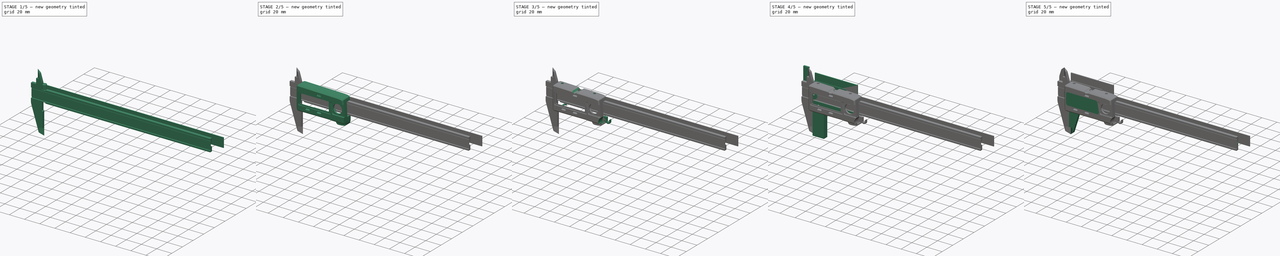
[diagram: build sequence overview — one tinted view per stage of 5, left to right]
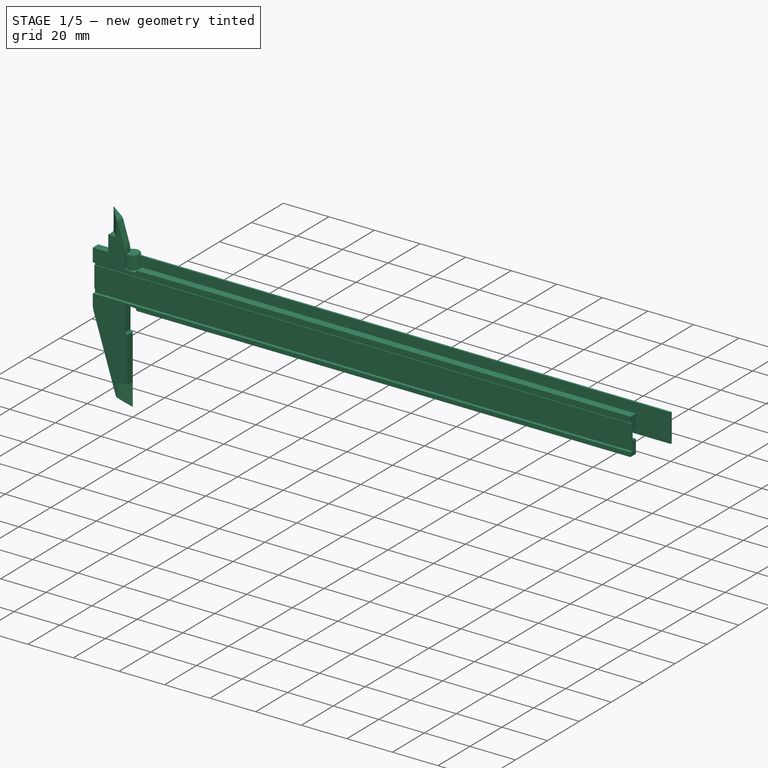
[diagram: stage 1 of 5 — iso view after this stage's code; geometry added in this stage tinted green]
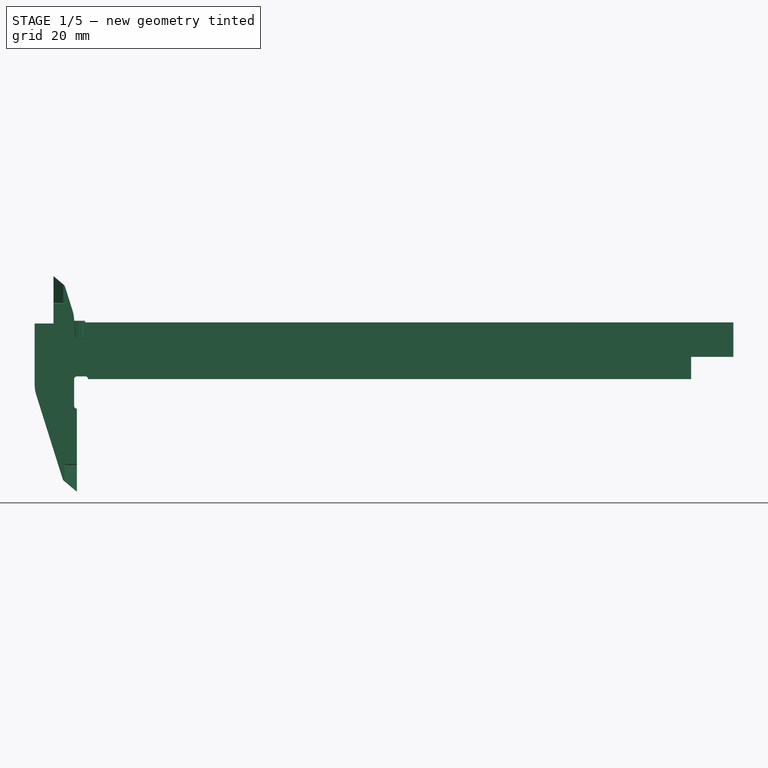
[diagram: stage 1 of 5 — front view after this stage's code; geometry added in this stage tinted green]
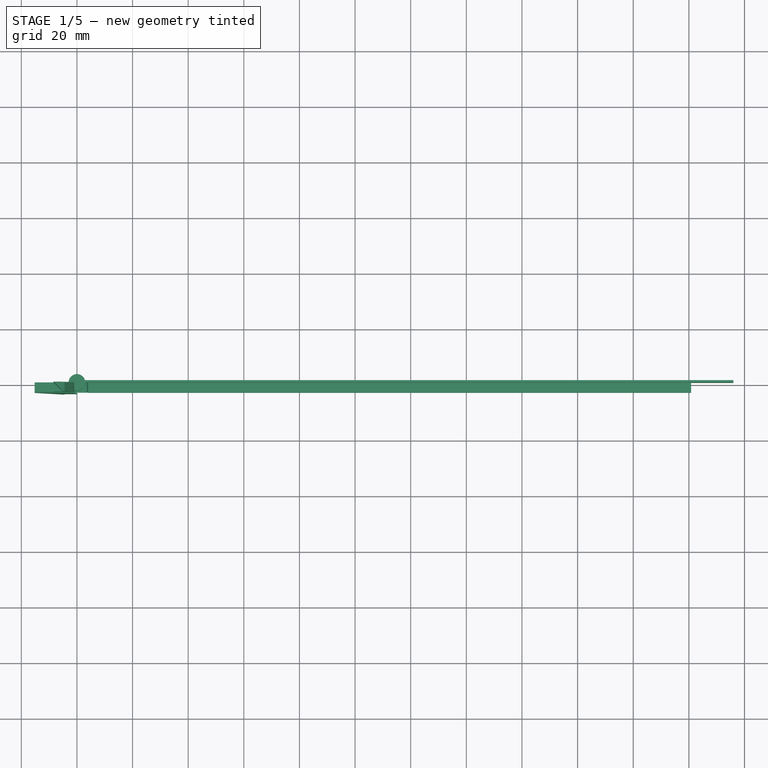
[diagram: stage 1 of 5 — top view after this stage's code; geometry added in this stage tinted green]
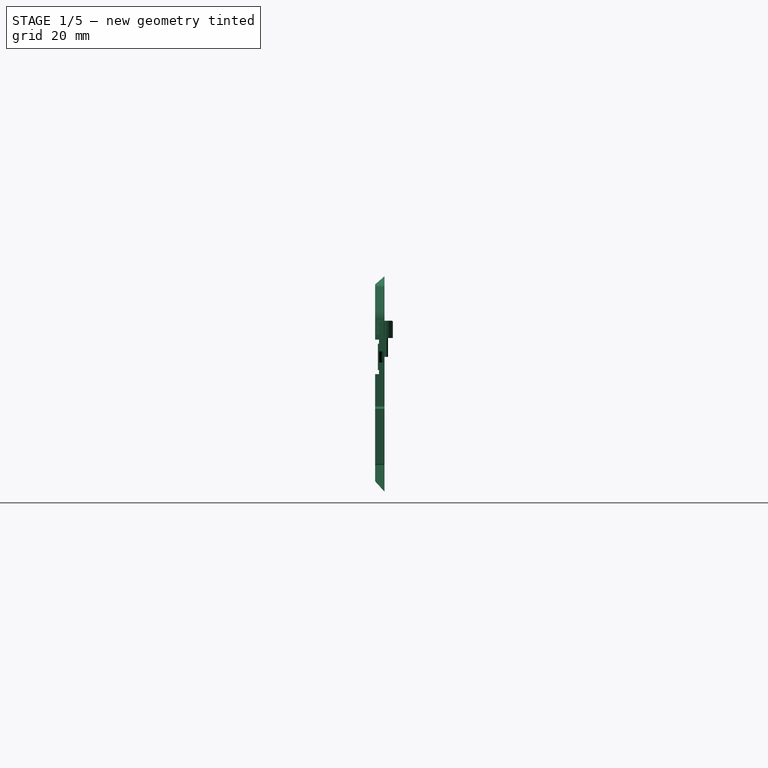
[diagram: stage 1 of 5 — right view after this stage's code; geometry added in this stage tinted green]
FCSTD DOCUMENT  (FreeCAD 0.21R33694 (Git))
Label: Digital_caliper
Comment: Stainless Steel Digital Caliper\n\nSome dimensions in the plastic case are approximated.\n\nDon't forget to share your mods to the FreeCAD library.\n\n\nScrews:\nI did not find  the ones used but here... (+282 chars)
License: Creative Commons Attribution-NonCommercial-ShareAlike 4.0
LicenseURL: https://creativecommons.org/licenses/by-nc-sa/4.0/
objects: Sketcher::SketchObject×59, PartDesign::Pocket×37, PartDesign::Pad×18, PartDesign::Body×17, PartDesign::Fillet×16, App::LinkElement×8, PartDesign::AdditiveBox×5, App::DocumentObjectGroup×5, PartDesign::Plane×4, App::Link×4, Part::FeaturePython×4, Image::ImagePlane×3, PartDesign::ShapeBinder×3, App::Part×3, PartDesign::Hole×2, PartDesign::Chamfer×2, PartDesign::Revolution×2, PartDesign::PolarPattern×2, Spreadsheet::Sheet×1, PartDesign::LinearPattern×1, +4 more types
note: 261 computed .brp shape members not serialized (recipe doc carries the construction recipe); baked Part::Feature solids carry a one-line shape summary decoded from their .brp

FEATURE [Spreadsheet::Sheet] Spreadsheet
  cells = A1='Stainless Steel Digital Caliper; A2='Most measurements are precise, only a few in the plastic case are forced.; A6='Dimensions on main parts; A7='Body 1; B7='Width; C7(main1_w)==16 mm; F7='Body 2 rectangle; G7='Width; H7(main2_w)==25 mm; B8='Thickness; C8(main1_t)==3.4 mm; G8='Thickness; H8(main2_t)==6.4 mm; I8(main2_t_bottom)==3.4 mm; J8(main2_t_top)==2.2 mm; B9='Lenght; C9(main1_l)==23.6 cm; G9='Lenght; H9(main2_l)==5.6 cm; B10='Head length; C10(main1_head_l)==15.2 mm; G10='T-slot w1; H10(main2_Tslot_w1)==12.6 mm; B11='Head width; C11(main1_head_w)==78 mm; G11='T-slot w2; H11(main2_Tslot_w2)==17 mm; B12='Cut width; C12(main1_cut_w)==17 mm; D12='Width; E12='Z axis; G12='T-slot t; H12(main2_Tslot_t)==0.6 mm; B13='Cut length; C13(main1_cut_l)==main2_top_l; D13='Length; E13='X axis; G13='T-slot t_2; H13(main2_Tslot_t2)==2.2 mm; B14='Bottom slot width; C14(main1_slot_w)==4 mm; F14='Body 2 top; G14='Extra width; H14(main2_extra_w)==main1_head_l; I14='Width; J14='Z axis; B15='Bottom slot depth; C15(main1_slot_d)==2 mm; G15='Extra length; H15(main2_extra_l)==15 mm; I15='Length; J15='X axis; A16='Both bodies; B16='Gap; C16(gap)==1 mm; G16='Tip width; H16(main2_top_w)==16.5 mm; G17='Tip length; H17(main2_top_l)==6.8 mm; F18='Body 2 bottom; G18='Tip width; H18(main2_bottom_w)==36 mm; G19='Tip length; H19(main2_bottom_l)==15 mm; I19='1mm offset left; F20='Body 2 holes; G20='Hole; H20==2.2 mm; G21='Counterbore; H21==2.8 mm; F22='Screw; G22='Diameter; H22='M2.5; G23='Length; H23==7 mm; F24='Angles; G24='alpha; H24(alpha)==140 °; I24='Got from scanned picture; G25='beta; H25(beta)==180 ° - 72.546 °; I25='Got from sketch on body2; G26='gamma; H26(gamma)==50 °; I26='Invented; A31='Capacitors; A32='The capacitors array is aproximated; A33='Length; B33(cap_l)==21 cm; A34='Ocurrences; B34(cap_reps)=42; A41='Case; A42='SInce the plastic case have funny curves measures are only on sketches; A43='Width; B43(case_w)==31 mm; F43='Internal width; G43(case_w_int)==25 mm; A44='Length; B44(case_l)==63 mm; A45='Height; B45(case_h)==13 mm
FEATURE [Sketcher::SketchObject] Sketch
  FullyConstrained = true
  MapMode = 5
  Placement = pos=(0,0,0) rot=(1,0,0;1.5708rad)
  Support = -> [XZ_Plane001]
  expr: Constraints[15] = -Spreadsheet.gap
  expr: Constraints[24] = Spreadsheet.main1_head_l
  expr: Constraints[6] = Spreadsheet.main1_w
  expr: Constraints[7] = Spreadsheet.main1_l
  sketch-geometry (8):
    g0: LineSegment StartX=220.8 StartY=-8 StartZ=0 EndX=220.8 EndY=8 EndZ=0
    g1: LineSegment StartX=220.8 StartY=8 StartZ=0 EndX=-1 EndY=8 EndZ=0
    g2: LineSegment StartX=-15.2 StartY=29 StartZ=0 EndX=-15.2 EndY=-48.5 EndZ=0
    g3: LineSegment StartX=-15.2 StartY=-48.5 StartZ=0 EndX=0 EndY=-48.5 EndZ=0
    g4: LineSegment StartX=0 StartY=-8 StartZ=0 EndX=220.8 EndY=-8 EndZ=0
    g5: LineSegment StartX=0 StartY=-48.5 StartZ=0 EndX=0 EndY=-8 EndZ=0
    g6: LineSegment StartX=-1 StartY=8 StartZ=0 EndX=-1 EndY=29 EndZ=0
    g7: LineSegment StartX=-1 StartY=29 StartZ=0 EndX=-15.2 EndY=29 EndZ=0
  constraints (27):
    c: PointOnObject(g3,g-2)
    c: Coincident(g0,g1)
    c: Horizontal(g1)
    c: Vertical(g2)
    c: Coincident(g2,g3)
    c: Horizontal(g3)
    c: DistanceY(g0,g0) = 16
    c: DistanceX(g2,g0) = 236
    c: DistanceY(g2,g2) = 77.5
    c: Coincident(g4,g0)
    c: Horizontal(g4)
    c: Symmetric(g0,g0,g-1)
    c: PointOnObject(g4,g-2)
    c: Coincident(g5,g3)
    c: Coincident(g5,g4)
    c: DistanceX(g1) = -1
    c: Coincident(g6,g1)
    c: Coincident(g7,g6)
    c: Coincident(g7,g2)
    c: Horizontal(g7)
    c: Vertical(g6)
    c: DistanceX(g7,g7) = 14.2
    c: DistanceY(g5,g5) = 40.5
    c: DistanceY(g3) = -48.5
    c: DistanceX(g3,g3) = 15.2
    c: DistanceY(g2) = 29
    c: DistanceY(g2) = -48.5
FEATURE [PartDesign::Pad] Pad
  Direction = (0,-1,-2e-16)
  Length = 3.4
  Length2 = 10
  Placement = pos=(0,0,0) rot=(1,0,0;1.5708rad)
  Profile = -> Sketch
  ReferenceAxis = -> Sketch [N_Axis]
  Type = 0
  expr: Length = Spreadsheet.main1_t
FEATURE [Sketcher::SketchObject] Sketch007
  ExternalGeometry = -> [Pad]
  FullyConstrained = true
  MapMode = 5
  Placement = pos=(0,0,0) rot=(1,0,0;1.5708rad)
  Support = -> [XZ_Plane001]
  expr: Constraints[10] = Spreadsheet.main1_cut_w
  expr: Constraints[20] = Spreadsheet.gap
  expr: Constraints[9] = Spreadsheet.main1_cut_l
  sketch-geometry (14):
    g0: LineSegment StartX=-15.2 StartY=29 StartZ=0 EndX=-8.4 EndY=29 EndZ=0
    g1: LineSegment StartX=-8.4 StartY=29 StartZ=0 EndX=-8.4 EndY=12 EndZ=0
    g2: LineSegment StartX=-8.4 StartY=12 StartZ=0 EndX=-15.2 EndY=12 EndZ=0
    g3: LineSegment StartX=-15.2 StartY=12 StartZ=0 EndX=-15.2 EndY=29 EndZ=0
    g4: LineSegment StartX=-1 StartY=8 StartZ=0 EndX=4 EndY=8 EndZ=0
    g5: LineSegment StartX=4 StartY=8 StartZ=0 EndX=4 EndY=7 EndZ=0
    g6: LineSegment StartX=4 StartY=7 StartZ=0 EndX=-1 EndY=7 EndZ=0
    g7: LineSegment StartX=-1 StartY=7 StartZ=0 EndX=-1 EndY=8 EndZ=0
    g8: LineSegment StartX=0 StartY=-8 StartZ=0 EndX=4 EndY=-8 EndZ=0
    g9: LineSegment StartX=4 StartY=-8 StartZ=0 EndX=4 EndY=-7 EndZ=0
    g10: LineSegment StartX=4 StartY=-7 StartZ=0 EndX=-1 EndY=-7 EndZ=0
    g11: LineSegment StartX=-1 StartY=-7 StartZ=0 EndX=-1 EndY=-18.6 EndZ=0
    g12: LineSegment StartX=-1 StartY=-18.6 StartZ=0 EndX=0 EndY=-18.6 EndZ=0
    g13: LineSegment StartX=0 StartY=-18.6 StartZ=0 EndX=0 EndY=-8 EndZ=0
  constraints (40):
    c: Coincident(g0,g1)
    c: Coincident(g1,g2)
    c: Coincident(g2,g3)
    c: Coincident(g3,g0)
    c: Horizontal(g0)
    c: Horizontal(g2)
    c: Vertical(g1)
    c: Vertical(g3)
    c: Coincident(g0,g-3)
    c: DistanceX(g0,g0) = 6.8
    c: DistanceY(g3,g3) = 17
    c: Coincident(g4,g5)
    c: Coincident(g5,g6)
    c: Coincident(g6,g7)
    c: Coincident(g7,g4)
    c: Horizontal(g4)
    c: Horizontal(g6)
    c: Vertical(g5)
    c: Vertical(g7)
    c: Coincident(g4,g-4)
    c: DistanceY(g5,g5) = 1
    c: DistanceX(g4,g4) = 5
    c: Coincident(g-5,g8)
    c: PointOnObject(g8,g-5)
    c: Coincident(g8,g9)
    c: Vertical(g9)
    c: Coincident(g9,g10)
    c: Horizontal(g10)
    c: Coincident(g10,g11)
    c: Vertical(g11)
    c: Coincident(g11,g12)
    c: Horizontal(g12)
    c: Coincident(g12,g13)
    c: Coincident(g13,g8)
    c: Vertical(g13)
    c: DistanceY(g13,g13) = 10.6
    c: Equal(g9,g12)
    c: Equal(g12,g5)
    c: Vertical(g9,g5)
    c: DistanceY(g2) = 12
FEATURE [PartDesign::Pocket] Pocket005
  BaseFeature = -> Pad
  Direction = (0,1,2e-16)
  Length = 5
  Length2 = 5
  Placement = pos=(0,0,0) rot=(1,0,0;1.5708rad)
  Profile = -> Sketch007
  ReferenceAxis = -> Sketch007 [N_Axis]
  Reversed = true
  Type = 0
FEATURE [PartDesign::Fillet] Fillet003
  Base = -> Pocket005 [Edge39,Edge51,Edge50,Edge41,Edge40]
  BaseFeature = -> Pocket005
  Placement = pos=(0,0,0) rot=(1,0,0;1.5708rad)
  Radius = 0.99
  SupportTransform = false
  UseAllEdges = false
FEATURE [Sketcher::SketchObject] Sketch008
  ExternalGeometry = -> [Fillet003]
  FullyConstrained = true
  MapMode = 5
  Placement = pos=(0,0,0) rot=(0.57735,0.57735,0.57735;2.0944rad)
  Support = -> [YZ_Plane001]
  sketch-geometry (8):
    g0: LineSegment StartX=-3.4 StartY=6.2 StartZ=0 EndX=-3.4 EndY=-6.2 EndZ=0
    g1: LineSegment StartX=-3.4 StartY=-6.2 StartZ=0 EndX=-2 EndY=-6.2 EndZ=0
    g2: LineSegment StartX=-2 StartY=-6.2 StartZ=0 EndX=-2 EndY=-4.7 EndZ=0
    g3: LineSegment StartX=-2 StartY=-4.7 StartZ=0 EndX=-2.4 EndY=-4.7 EndZ=0
    g4: LineSegment StartX=-2.4 StartY=-4.7 StartZ=0 EndX=-2.4 EndY=4.7 EndZ=0
    g5: LineSegment StartX=-2.4 StartY=4.7 StartZ=0 EndX=-2 EndY=4.7 EndZ=0
    g6: LineSegment StartX=-2 StartY=4.7 StartZ=0 EndX=-2 EndY=6.2 EndZ=0
    g7: LineSegment StartX=-2 StartY=6.2 StartZ=0 EndX=-3.4 EndY=6.2 EndZ=0
  constraints (23):
    c: Symmetric(g0,g0,g-1)
    c: PointOnObject(g0,g-4)
    c: Coincident(g0,g1)
    c: Horizontal(g1)
    c: Coincident(g1,g2)
    c: Vertical(g2)
    c: Coincident(g2,g3)
    c: Coincident(g3,g4)
    c: Vertical(g4)
    c: Coincident(g4,g5)
    c: Coincident(g5,g6)
    c: Vertical(g6)
    c: Coincident(g6,g7)
    c: Coincident(g7,g0)
    c: Horizontal(g7)
    c: Horizontal(g3)
    c: Horizontal(g5)
    c: Vertical(g5,g2)
    c: Equal(g2,g6)
    c: DistanceY(g0,g0) = 12.4
    c: DistanceY(g6,g6) = 1.5
    c: DistanceX(g6,g-3) = 2
    c: DistanceX(g4,g-3) = 2.4
FEATURE [PartDesign::Pocket] Pocket006
  BaseFeature = -> Fillet003
  Direction = (-1,2e-16,-3e-16)
  Length = 16.2
  Length2 = 236
  Placement = pos=(0,0,0) rot=(1,0,0;1.5708rad)
  Profile = -> Sketch008
  ReferenceAxis = -> Sketch008 [N_Axis]
  Type = 4
  expr: Length = Spreadsheet.main1_head_l + Spreadsheet.gap
  expr: Length2 = Spreadsheet.main1_l
FEATURE [Sketcher::SketchObject] Sketch009
  ExternalGeometry = -> [Pocket006]
  FullyConstrained = true
  MapMode = 5
  Support = -> [XY_Plane001]
  expr: Constraints[10] = Spreadsheet.main1_slot_d
  sketch-geometry (4):
    g0: LineSegment StartX=220.8 StartY=-1.6e-15 StartZ=0 EndX=10.8 EndY=-1.6e-15 EndZ=0
    g1: LineSegment StartX=12.8 StartY=-2 StartZ=0 EndX=220.8 EndY=-2 EndZ=0
    g2: LineSegment StartX=220.8 StartY=-2 StartZ=0 EndX=220.8 EndY=-1.6e-15 EndZ=0
    g3: ArcOfCircle CenterX=12.8 CenterY=-1.8e-15 CenterZ=0 NormalX=0 NormalY=0 NormalZ=1 AngleXU=0 Radius=2 StartAngle=3.14159 EndAngle=4.71239
  constraints (11):
    c: Coincident(g1,g2)
    c: Coincident(g2,g0)
    c: Horizontal(g0)
    c: Horizontal(g1)
    c: Vertical(g2)
    c: Coincident(g0,g-3)
    c: PointOnObject(g3,g0)
    c: Coincident(g3,g0)
    c: Tangent(g3,g1) = -1.5708
    c: DistanceX(g0,g0) = 210
    c: DistanceY(g1,g3) = 2
FEATURE [PartDesign::Pocket] Pocket007
  BaseFeature = -> Pocket006
  Direction = (0,0,-1)
  Length = 4
  Length2 = 5
  Midplane = true
  Placement = pos=(0,0,0) rot=(1,0,0;1.5708rad)
  Profile = -> Sketch009
  ReferenceAxis = -> Sketch009 [N_Axis]
  Type = 0
  expr: Length = Spreadsheet.main1_slot_w
FEATURE [Sketcher::SketchObject] Sketch014
  ExternalGeometry = -> [Pocket007]
  FullyConstrained = true
  MapMode = 5
  Placement = pos=(0,0,0) rot=(1,0,0;1.5708rad)
  Support = -> [XZ_Plane001]
  expr: Constraints[7] = Spreadsheet.beta
  expr: Constraints[8] = Spreadsheet.alpha
  sketch-geometry (8):
    g0: LineSegment StartX=0 StartY=-48.5 StartZ=0 EndX=-5 EndY=-44.3045 EndZ=0
    g1: LineSegment StartX=-5 StartY=-44.3045 StartZ=0 EndX=-15.2 EndY=-11.8634 EndZ=0
    g2: LineSegment StartX=-15.2 StartY=-11.8634 StartZ=0 EndX=-15.2 EndY=-48.5 EndZ=0
    g3: LineSegment StartX=-15.2 StartY=-48.5 StartZ=0 EndX=0 EndY=-48.5 EndZ=0
    g4: LineSegment StartX=-8.4 StartY=29 StartZ=0 EndX=-4.4 EndY=25.6436 EndZ=0
    g5: LineSegment StartX=-4.4 StartY=25.6436 StartZ=0 EndX=-1 EndY=14.8299 EndZ=0
    g6: LineSegment StartX=-1 StartY=14.8299 StartZ=0 EndX=-1 EndY=29 EndZ=0
    g7: LineSegment StartX=-1 StartY=29 StartZ=0 EndX=-8.4 EndY=29 EndZ=0
  constraints (20):
    c: Coincident(g-3,g0)
    c: Coincident(g0,g1)
    c: PointOnObject(g1,g-4)
    c: Coincident(g1,g2)
    c: Coincident(g2,g-4)
    c: Coincident(g3,g2)
    c: Coincident(g3,g0)
    c: Angle(g1) = 1.87543
    c: Angle(g0) = 2.44346
    c: DistanceX(g0,g0) = 5
    c: Coincident(g-5,g4)
    c: Coincident(g4,g5)
    c: PointOnObject(g5,g-6)
    c: Coincident(g5,g6)
    c: Coincident(g6,g-6)
    c: Coincident(g6,g7)
    c: Coincident(g7,g4)
    c: Parallel(g5,g1)
    c: Parallel(g4,g0)
    c: DistanceX(g4,g4) = 4
FEATURE [PartDesign::Pocket] Pocket010
  BaseFeature = -> Pocket007
  Direction = (0,1,2e-16)
  Length = 5
  Length2 = 5
  Placement = pos=(0,0,0) rot=(1,0,0;1.5708rad)
  Profile = -> Sketch014
  ReferenceAxis = -> Sketch014 [N_Axis]
  Reversed = true
  Type = 2
FEATURE [Sketcher::SketchObject] Sketch018
  AttachmentOffset = pos=(0,0,-38.5) rot=(0,0,1;0rad)
  ExternalGeometry = -> [Pocket010]
  FullyConstrained = true
  MapMode = 5
  Placement = pos=(0,0,-38.5) rot=(0,0,1;0rad)
  Support = -> [XY_Plane001]
  expr: .AttachmentOffset.Base.z = <<Sketch_body2>>.Constraints.b2_w_bottom + 10 mm
  sketch-geometry (3):
    g0: LineSegment StartX=-4.5 StartY=-3.4 StartZ=0 EndX=-1.8e-15 EndY=4e-16 EndZ=0
    g1: LineSegment StartX=-1.8e-15 StartY=-3.4 StartZ=0 EndX=-4.5 EndY=-3.4 EndZ=0
    g2: LineSegment StartX=-1.8e-15 StartY=4e-16 StartZ=0 EndX=-1.8e-15 EndY=-3.4 EndZ=0
  constraints (7):
    c: Coincident(g-4,g1)
    c: PointOnObject(g1,g-4)
    c: Coincident(g0,g1)
    c: Coincident(g2,g0)
    c: Coincident(g2,g1)
    c: DistanceX(g1,g1) = 4.5
    c: Coincident(g0,g-1)
FEATURE [PartDesign::Pocket] Pocket014
  BaseFeature = -> Pocket010
  Direction = (0,0,-1)
  Length = 5
  Length2 = 5
  Placement = pos=(0,0,0) rot=(1,0,0;1.5708rad)
  Profile = -> Sketch018
  ReferenceAxis = -> Sketch018 [N_Axis]
  Type = 2
FEATURE [Sketcher::SketchObject] Sketch019
  AttachmentOffset = pos=(0,0,19) rot=(0,0,1;0rad)
  ExternalGeometry = -> [Pocket014]
  FullyConstrained = true
  MapMode = 5
  Placement = pos=(0,0,19) rot=(0,0,1;0rad)
  Support = -> [XY_Plane001]
  expr: .AttachmentOffset.Base.z = <<Sketch_body2>>.Constraints.b2_w_top - 10 mm
  sketch-geometry (3):
    g0: LineSegment StartX=-8.4 StartY=-3.4 StartZ=0 EndX=-4.9 EndY=-3.4 EndZ=0
    g1: LineSegment StartX=-4.9 StartY=-3.4 StartZ=0 EndX=-8.4 EndY=4e-16 EndZ=0
    g2: LineSegment StartX=-8.4 StartY=4e-16 StartZ=0 EndX=-8.4 EndY=-3.4 EndZ=0
  constraints (7):
    c: Horizontal(g0)
    c: Coincident(g-4,g0)
    c: Coincident(g0,g1)
    c: Coincident(g1,g-4)
    c: Coincident(g1,g2)
    c: Coincident(g2,g0)
    c: DistanceX(g0,g0) = 3.5
FEATURE [PartDesign::Pocket] Pocket015
  BaseFeature = -> Pocket014
  Direction = (0,0,-1)
  Length = 5
  Length2 = 5
  Placement = pos=(0,0,0) rot=(1,0,0;1.5708rad)
  Profile = -> Sketch019
  ReferenceAxis = -> Sketch019 [N_Axis]
  Reversed = true
  Type = 2
FEATURE [Image::ImagePlane] Scale  label="Scale picture"
  Placement = pos=(102.9,-3.4,-2.28e-14) rot=(0.57735,-0.57735,0.57735;2.0944rad)
  XSize = 12.4802
  YSize = 236.164
FEATURE [PartDesign::AdditiveBox] Box
  AttacherType = Attacher::AttachEngine3D
  Height = 12.4
  Length = 236
  Width = 0.8
  expr: Length = Spreadsheet.main1_l
FEATURE [PartDesign::Fillet] Fillet004
  Base = -> Pocket015 [Edge101,Edge68]
  BaseFeature = -> Pocket015
  Placement = pos=(0,0,0) rot=(1,0,0;1.5708rad)
  Radius = 0.5
  SupportTransform = false
  UseAllEdges = false
FEATURE [PartDesign::Fillet] Fillet005
  Base = -> Fillet004 [Edge61,Edge40]
  BaseFeature = -> Fillet004
  Placement = pos=(0,0,0) rot=(1,0,0;1.5708rad)
  Radius = 2
  SupportTransform = false
  UseAllEdges = false
FEATURE [PartDesign::Fillet] Fillet006
  Base = -> Fillet005 [Edge42,Edge56]
  BaseFeature = -> Fillet005
  Placement = pos=(0,0,0) rot=(1,0,0;1.5708rad)
  Radius = 12
  SupportTransform = false
  UseAllEdges = false
FEATURE [PartDesign::AdditiveBox] Box001
  AttacherType = Attacher::AttachEngine3D
  Height = 12.4
  Length = 236
  Width = 0.2
  expr: Length = Spreadsheet.main1_l
FEATURE [PartDesign::Body] Body004  label="Scale"
  Group = -> [Box001]
  Origin = -> Origin005
  Placement = pos=(-15.2,-3.4,-6.2) rot=(0,0,1;0rad)
  Tip = -> Box001
FEATURE [Sketcher::SketchObject] Sketch020
  ExternalGeometry = -> [Box]
  FullyConstrained = true
  MapMode = 5
  Placement = pos=(0,0,0) rot=(1,0,0;1.5708rad)
  Support = -> [XZ_Plane004]
  sketch-geometry (25):
    g0: LineSegment StartX=11 StartY=12.4 StartZ=0 EndX=11 EndY=8.4 EndZ=0
    g1: LineSegment StartX=12.265 StartY=8.4 StartZ=0 EndX=12.265 EndY=1 EndZ=0
    g2: LineSegment StartX=12.265 StartY=1 StartZ=0 EndX=15.065 EndY=1 EndZ=0
    g3: LineSegment StartX=15.065 StartY=1 StartZ=0 EndX=15.065 EndY=8.4 EndZ=0
    g4: LineSegment StartX=15.065 StartY=8.4 StartZ=0 EndX=16.33 EndY=8.4 EndZ=0
    g5: LineSegment StartX=16.33 StartY=8.4 StartZ=0 EndX=16.33 EndY=12.4 EndZ=0
    g6: LineSegment StartX=16.33 StartY=12.4 StartZ=0 EndX=16.13 EndY=12.4 EndZ=0
    g7: LineSegment StartX=16.13 StartY=12.4 StartZ=0 EndX=16.13 EndY=8.6 EndZ=0
    g8: LineSegment StartX=16.13 StartY=8.6 StartZ=0 EndX=14.865 EndY=8.6 EndZ=0
    g9: LineSegment StartX=14.865 StartY=8.6 StartZ=0 EndX=14.865 EndY=1.2 EndZ=0
    g10: LineSegment StartX=14.865 StartY=1.2 StartZ=0 EndX=12.465 EndY=1.2 EndZ=0
    g11: LineSegment StartX=12.465 StartY=1.2 StartZ=0 EndX=12.465 EndY=8.6 EndZ=0
    g12: LineSegment StartX=12.465 StartY=8.6 StartZ=0 EndX=11.2 EndY=8.6 EndZ=0
    g13: LineSegment StartX=11.2 StartY=8.6 StartZ=0 EndX=11.2 EndY=12.4 EndZ=0
    g14: LineSegment StartX=11.2 StartY=12.4 StartZ=0 EndX=11 EndY=12.4 EndZ=0
    g15: LineSegment StartX=13.665 StartY=0 StartZ=0 EndX=13.665 EndY=12.4 EndZ=0
    g16: LineSegment StartX=11 StartY=8.4 StartZ=0 EndX=12.265 EndY=8.4 EndZ=0
    g17: LineSegment StartX=14.865 StartY=1.2 StartZ=0 EndX=15.065 EndY=1.2 EndZ=0
    g18: LineSegment StartX=15.065 StartY=1.2 StartZ=0 EndX=15.065 EndY=1 EndZ=0
    g19: LineSegment StartX=15.065 StartY=1 StartZ=0 EndX=14.865 EndY=1 EndZ=0
    g20: LineSegment StartX=14.865 StartY=1 StartZ=0 EndX=14.865 EndY=1.2 EndZ=0
    g21: LineSegment StartX=12.265 StartY=8.4 StartZ=0 EndX=12.465 EndY=8.4 EndZ=0
    g22: LineSegment StartX=12.465 StartY=8.4 StartZ=0 EndX=12.465 EndY=8.6 EndZ=0
    g23: LineSegment StartX=12.465 StartY=8.6 StartZ=0 EndX=12.265 EndY=8.6 EndZ=0
    g24: LineSegment StartX=12.265 StartY=8.6 StartZ=0 EndX=12.265 EndY=8.4 EndZ=0
  constraints (70):
    c: Vertical(g0)
    c: Vertical(g1)
    c: Coincident(g1,g2)
    c: Horizontal(g2)
    c: Coincident(g2,g3)
    c: Vertical(g3)
    c: Coincident(g3,g4)
    c: Horizontal(g4)
    c: Coincident(g4,g5)
    c: Coincident(g5,g6)
    c: Coincident(g6,g7)
    c: Vertical(g7)
    c: Coincident(g7,g8)
    c: Coincident(g8,g9)
    c: Vertical(g9)
    c: Coincident(g9,g10)
    c: Horizontal(g10)
    c: Coincident(g10,g11)
    c: Vertical(g11)
    c: Coincident(g11,g12)
    c: Horizontal(g12)
    c: Coincident(g12,g13)
    c: Vertical(g13)
    c: Coincident(g13,g14)
    c: Coincident(g14,g0)
    c: Horizontal(g14)
    c: Horizontal(g6)
    c: Horizontal(g8)
    c: Vertical(g5)
    c: Equal(g14,g6)
    c: Horizontal(g13,g6)
    c: Symmetric(g8,g11,g15)
    c: Symmetric(g6,g13,g15)
    c: DistanceX(g6,g6) = 0.2
    c: DistanceX(g2,g2) = 2.8
    c: Coincident(g16,g1)
    c: Horizontal(g16)
    c: Coincident(g17,g18)
    c: Coincident(g18,g19)
    c: Coincident(g19,g20)
    c: Coincident(g20,g17)
    c: Horizontal(g17)
    c: Horizontal(g19)
    c: Vertical(g18)
    c: Vertical(g20)
    c: Coincident(g17,g9)
    c: Coincident(g18,g2)
    c: Equal(g17,g20)
    c: Coincident(g16,g0)
    c: PointOnObject(g13,g-3)
    c: DistanceX(g0,g5) = 5.33
    c: DistanceY(g-4,g1) = 1
    c: Equal(g17,g6)
    c: Horizontal(g1,g3)
    c: Coincident(g21,g22)
    c: Coincident(g22,g23)
    c: Coincident(g23,g24)
    c: Coincident(g24,g21)
    c: Horizontal(g21)
    c: Horizontal(g23)
    c: Vertical(g22)
    c: Vertical(g24)
    c: Coincident(g21,g1)
    c: Coincident(g22,g11)
    c: Equal(g24,g21)
    c: Equal(g21,g6)
    c: DistanceX(g-3,g0) = 11
    c: PointOnObject(g15,g-3)
    c: PointOnObject(g15,g-4)
    c: DistanceY(g0,g0) = 4
FEATURE [PartDesign::Pocket] Pocket016
  BaseFeature = -> Box
  Direction = (0,1,2e-16)
  Length = 0.01
  Length2 = 5
  Profile = -> Sketch020
  ReferenceAxis = -> Sketch020 [N_Axis]
  Type = 0
FEATURE [PartDesign::LinearPattern] LinearPattern
  BaseFeature = -> Pocket016
  Direction = -> Sketch020 [H_Axis]
  Length = 210
  Occurrences = 42
  Originals = -> [Pocket016]
  expr: Length = Spreadsheet.cap_l
  expr: Occurrences = Spreadsheet.cap_reps
FEATURE [PartDesign::Body] Body015  label="Spring"
  Group = -> [Sketch049,Pad015]
  Origin = -> Origin018
  Placement = pos=(4.4,-0.35,7.7) rot=(0,0,1;0rad)
  Tip = -> Pad015
FEATURE [Sketcher::SketchObject] Sketch051
  ExternalGeometry = -> [Fillet006]
  FullyConstrained = true
  MapMode = 5
  Placement = pos=(0,0,0) rot=(1,0,0;1.5708rad)
  Support = -> [XZ_Plane001]
  sketch-geometry (1):
    g0: Circle CenterX=213.8 CenterY=-4.5 CenterZ=0 NormalX=0 NormalY=0 NormalZ=1 AngleXU=0 Radius=0.5
  constraints (3):
    c: DistanceX(g0,g-3) = 7
    c: Diameter(g0) = 1
    c: DistanceY(g0,g-3) = 2.5
FEATURE [PartDesign::Hole] Hole001
  BaseFeature = -> Fillet006
  CustomThreadClearance = 0
  Depth = 1.5
  DepthType = 0
  Diameter = 1.6
  DrillForDepth = false
  DrillPoint = 1
  DrillPointAngle = 118
  HoleCutCountersinkAngle = 90
  HoleCutCustomValues = false
  HoleCutDepth = 0
  HoleCutDiameter = 6.1
  HoleCutType = 0
  ModelThread = false
  Placement = pos=(0,0,0) rot=(1,0,0;1.5708rad)
  Profile = -> Sketch051
  Reversed = true
  Tapered = false
  TaperedAngle = 90
  ThreadClass = 0
  ThreadDepth = 1.5
  ThreadDepthType = 0
  ThreadDirection = 0
  ThreadFit = 0
  ThreadSize = 6
  ThreadType = 1
  Threaded = true
  UseCustomThreadClearance = false
FEATURE [PartDesign::Body] Body005  label="Plastic case"
  Group = -> [Box002,Thickness,Sketch021,Pocket017,DatumPlane002,Sketch022,Pocket018,Sketch023,Pocket019,Sketch024,Pocket020,Sketch025,Sketch026,Pad002,Pocket021,Sketch027,Pad003,Sketch028,Pad004,Sketch029,Pocket022,Sketch030,Sketch031,Pad005,Pocket023,Chamfer,Fillet014,DatumPlane003,Sketch041,Sketch042,Pocket026,Pad012,Sketch043,Sketch044,Pad013,Pocket027,Sketch045,Pocket028,Sketch046,Pad014,Fillet015,+9 more]
  Origin = -> Origin006
  Placement = pos=(1,2,0) rot=(0,0,1;0rad)
  Tip = -> Pad017
FEATURE [App::DocumentObjectGroup] Group001  label="Case"
  Group = -> [Body005,Body007,Body008,Group002,Part001,Group003,Body014,Body015,Body016]
FEATURE [Sketcher::SketchObject] Sketch059
  FullyConstrained = true
  MapMode = 5
  Placement = pos=(0,0,0) rot=(1,0,0;1.5708rad)
  Support = -> [XZ_Plane020]
  sketch-geometry (8):
    g0: LineSegment StartX=0 StartY=0 StartZ=0 EndX=1.25 EndY=0 EndZ=0
    g1: LineSegment StartX=1.25 StartY=0 StartZ=0 EndX=1.25 EndY=6.8 EndZ=0
    g2: LineSegment StartX=1.25 StartY=6.8 StartZ=0 EndX=3 EndY=6.8 EndZ=0
    g3: LineSegment StartX=3 StartY=6.8 StartZ=0 EndX=3 EndY=12.8 EndZ=0
    g4: LineSegment StartX=2.8 StartY=13 StartZ=0 EndX=0 EndY=13 EndZ=0
    g5: LineSegment StartX=0 StartY=13 StartZ=0 EndX=0 EndY=0 EndZ=0
    g6: LineSegment StartX=3 StartY=12.8 StartZ=0 EndX=2.8 EndY=12.8 EndZ=0
    g7: LineSegment StartX=2.8 StartY=13 StartZ=0 EndX=2.8 EndY=12.8 EndZ=0
  constraints (23):
    c: Coincident(g-1,g0)
    c: PointOnObject(g0,g-1)
    c: Coincident(g0,g1)
    c: Vertical(g1)
    c: Coincident(g1,g2)
    c: Horizontal(g2)
    c: Coincident(g2,g3)
    c: Vertical(g3)
    c: Horizontal(g4)
    c: Coincident(g4,g5)
    c: Coincident(g5,g0)
    c: Vertical(g5)
    c: DistanceY(g5,g5) = 13
    c: DistanceX(g0,g0) = 1.25
    c: DistanceX(g4,g3) = 3
    c: DistanceY(g2,g4) = 6.2
    c: Coincident(g6,g3)
    c: Horizontal(g6)
    c: Coincident(g7,g4)
    c: Coincident(g7,g6)
    c: Vertical(g7)
    c: DistanceY(g7,g7) = 0.2
    c: Equal(g7,g6)
FEATURE [PartDesign::Revolution] Revolution001
  Angle = 360
  Axis = (0,2e-16,1)
  Base = (0,0,0)
  Placement = pos=(0,0,0) rot=(1,0,0;1.5708rad)
  Profile = -> Sketch059
  ReferenceAxis = -> Sketch059 [V_Axis]
  Reversed = true
FEATURE [Sketcher::SketchObject] Sketch060
  ExternalGeometry = -> [Revolution001]
  FullyConstrained = true
  MapMode = 5
  Support = -> [XY_Plane020]
  sketch-geometry (1):
    g0: Circle CenterX=3 CenterY=0 CenterZ=0 NormalX=0 NormalY=0 NormalZ=1 AngleXU=0 Radius=0.1
  constraints (3):
    c: PointOnObject(g0,g-1)
    c: PointOnObject(g0,g-3)
    c: Diameter(g0) = 0.2
FEATURE [PartDesign::Pocket] Pocket036
  BaseFeature = -> Revolution001
  Direction = (0,0,-1)
  Length = 5
  Length2 = 5
  Placement = pos=(0,0,0) rot=(1,0,0;1.5708rad)
  Profile = -> Sketch060
  ReferenceAxis = -> Sketch060 [N_Axis]
  Reversed = true
  Type = 1
FEATURE [PartDesign::PolarPattern] PolarPattern001
  Angle = 360
  Axis = -> Sketch060 [N_Axis]
  BaseFeature = -> Pocket036
  Occurrences = 40
  Originals = -> [Pocket036]
  Placement = pos=(0,0,0) rot=(1,0,0;1.5708rad)
FEATURE [PartDesign::Body] Body017  label="Knurled-Head Thumb Screw"
  Group = -> [Sketch059,Revolution001,Sketch060,Pocket036,PolarPattern001]
  Origin = -> Origin020
  Placement = pos=(30.3,-1.7,9.5) rot=(0,0,1;0rad)
  Tip = -> PolarPattern001
FEATURE [App::DocumentObjectGroup] Group004  label="Fasteners"
  Group = -> [Screw,Link001,Screw002,Link002,Insert,Screw003,Link003,Body017]
FEATURE [App::Part] Part002  label="Rule"
  Group = -> [Body,Body003,Body004,Scale]
  Origin = -> Origin021
  Placement = pos=(-69,0,0) rot=(0,0,1;0rad)
FEATURE [App::DocumentObjectGroup] Group  label="Main metal bodies"
  Group = -> [Body001,Part002]
FEATURE [App::Part] Part  label="Stainless steel caliper"
  Group = -> [Group,Body001,Group001,Body005,Body007,Body008,Body009,Link,Body006,Group002,Part001,Group003,PCB_front,PCB_back,Body014,Body015,Group004,Screw,Link001,Screw002,Link002,Insert,Screw003,Link003,Body016,Body017,Part002]
  Origin = -> Origin
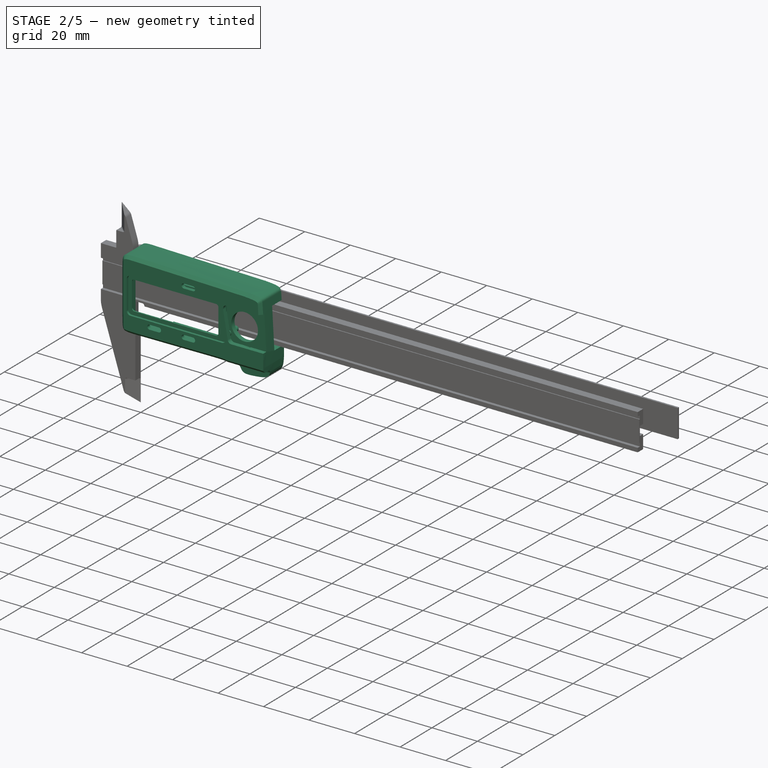
[diagram: stage 2 of 5 — iso view after this stage's code; geometry added in this stage tinted green]
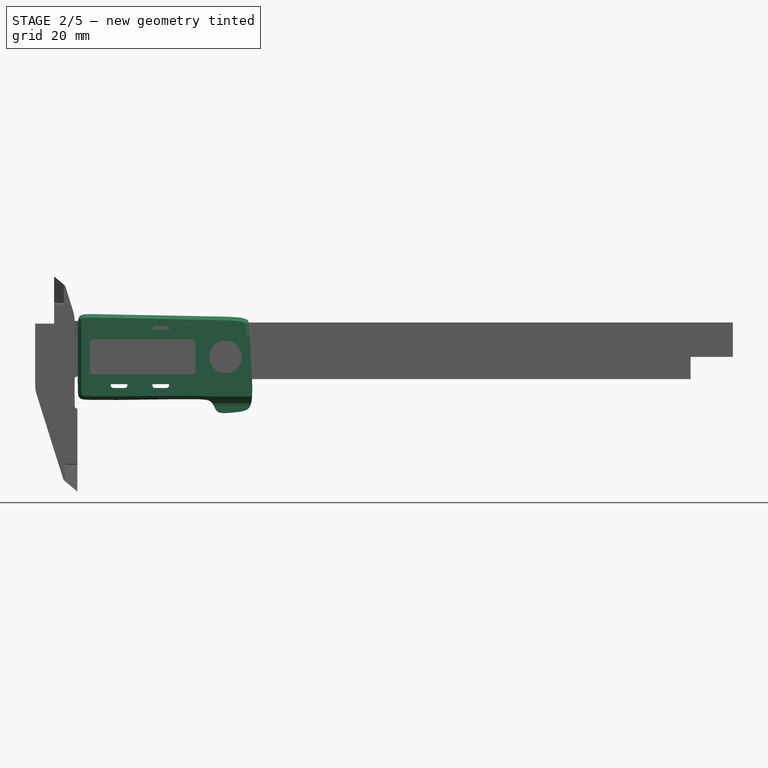
[diagram: stage 2 of 5 — front view after this stage's code; geometry added in this stage tinted green]
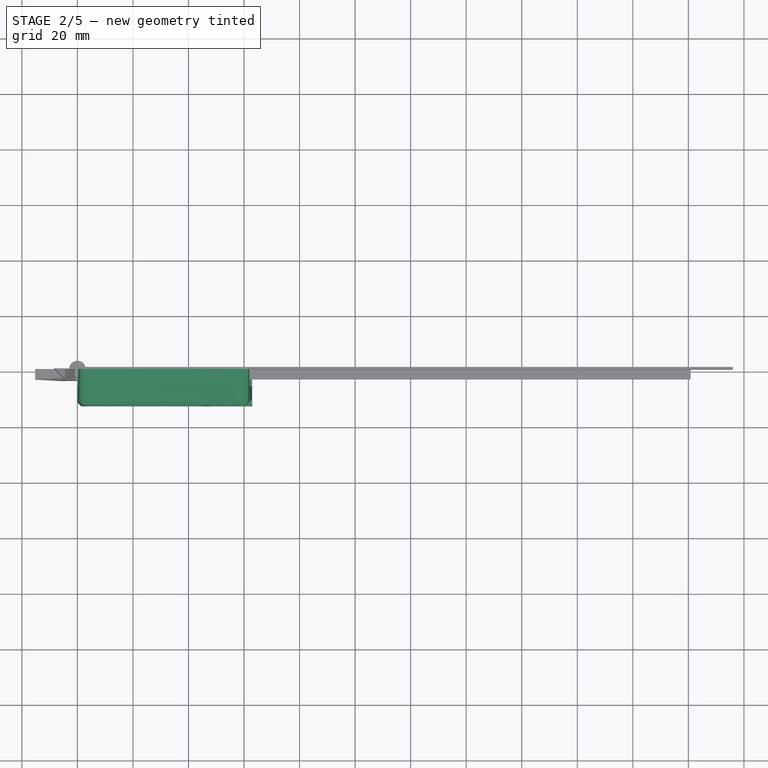
[diagram: stage 2 of 5 — top view after this stage's code; geometry added in this stage tinted green]
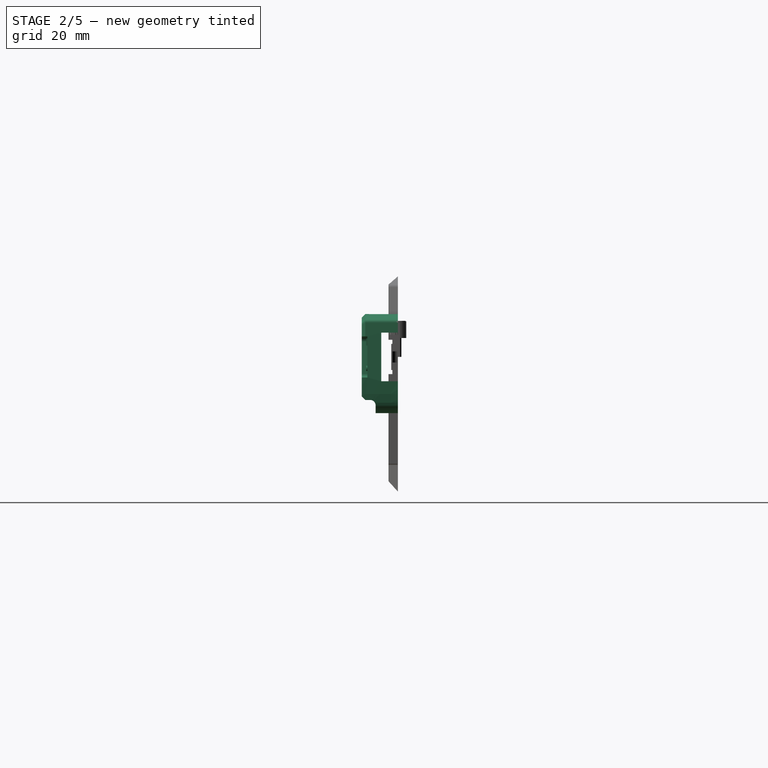
[diagram: stage 2 of 5 — right view after this stage's code; geometry added in this stage tinted green]
FEATURE [PartDesign::Body] Body003  label="Capacitors"
  Group = -> [Box,Sketch020,Pocket016,LinearPattern]
  Origin = -> Origin004
  Placement = pos=(-15.2,-3.2,-6.2) rot=(0,0,1;0rad)
  Tip = -> LinearPattern
FEATURE [PartDesign::AdditiveBox] Box002
  AttacherType = Attacher::AttachEngine3D
  AttachmentOffset = pos=(0,-15.5,0) rot=(0,0,1;0rad)
  Height = 13
  Length = 63
  MapMode = 5
  Placement = pos=(0,3.4e-15,-15.5) rot=(1,0,0;1.5708rad)
  Support = -> [XZ_Plane006]
  Width = 31
  expr: .AttachmentOffset.Base.y = -Spreadsheet.case_w / 2
  expr: Height = Spreadsheet.case_h
  expr: Length = Spreadsheet.case_l
  expr: Width = Spreadsheet.case_w
FEATURE [PartDesign::Thickness] Thickness
  Base = -> Box002 [Face5]
  BaseFeature = -> Box002
  Intersection = false
  Join = 0
  Mode = 2
  Reversed = true
  SupportTransform = false
  Value = 3
FEATURE [Sketcher::SketchObject] Sketch021
  ExternalGeometry = -> [Thickness]
  FullyConstrained = true
  MapMode = 5
  Placement = pos=(0,0,0) rot=(1,0,0;1.5708rad)
  Support = -> [XZ_Plane006]
  sketch-geometry (4):
    g0: LineSegment StartX=0 StartY=-15.5 StartZ=0 EndX=14.5 EndY=-15.5 EndZ=0
    g1: LineSegment StartX=14.5 StartY=-15.5 StartZ=0 EndX=14.5 EndY=12.5 EndZ=0
    g2: LineSegment StartX=14.5 StartY=12.5 StartZ=0 EndX=0 EndY=12.5 EndZ=0
    g3: LineSegment StartX=0 StartY=12.5 StartZ=0 EndX=0 EndY=-15.5 EndZ=0
  constraints (11):
    c: Coincident(g0,g1)
    c: Coincident(g1,g2)
    c: Coincident(g2,g3)
    c: Coincident(g3,g0)
    c: Horizontal(g0)
    c: Horizontal(g2)
    c: Vertical(g1)
    c: Vertical(g3)
    c: Coincident(g0,g-3)
    c: PointOnObject(g1,g-4)
    c: DistanceX(g0,g0) = 14.5
FEATURE [PartDesign::Pocket] Pocket017
  BaseFeature = -> Thickness
  Direction = (0,1,2e-16)
  Length = 6.2
  Length2 = 5
  Profile = -> Sketch021
  ReferenceAxis = -> Sketch021 [N_Axis]
  Reversed = true
  Type = 0
FEATURE [PartDesign::Plane] DatumPlane002  label="DatumPlane002 top"
  AttachmentOffset = pos=(0,0,13) rot=(0,0,1;0rad)
  Length = 109.764
  MapMode = 5
  Placement = pos=(0,-13,-2.9e-15) rot=(1,0,0;1.5708rad)
  ResizeMode = 0
  Support = -> [XZ_Plane006]
  Width = 63.8502
  expr: .AttachmentOffset.Base.z = Spreadsheet.case_h
FEATURE [Sketcher::SketchObject] Sketch022
  FullyConstrained = true
  MapMode = 5
  Placement = pos=(0,-13,-2.9e-15) rot=(1,0,0;1.5708rad)
  Support = -> [DatumPlane002]
  sketch-geometry (23):
    g0: Circle CenterX=53.35 CenterY=0 CenterZ=0 NormalX=0 NormalY=0 NormalZ=1 AngleXU=0 Radius=5.85
    g1: ArcOfCircle CenterX=28 CenterY=10.2 CenterZ=0 NormalX=0 NormalY=0 NormalZ=1 AngleXU=0 Radius=1 StartAngle=1.5708 EndAngle=4.71239
    g2: ArcOfCircle CenterX=32 CenterY=10.2 CenterZ=0 NormalX=0 NormalY=0 NormalZ=1 AngleXU=0 Radius=1 StartAngle=4.71239 EndAngle=7.85398
    g3: LineSegment StartX=28 StartY=9.2 StartZ=0 EndX=32 EndY=9.2 EndZ=0
    g4: LineSegment StartX=32 StartY=11.2 StartZ=0 EndX=28 EndY=11.2 EndZ=0
    g5: ArcOfCircle CenterX=13 CenterY=-10.2 CenterZ=0 NormalX=0 NormalY=0 NormalZ=1 AngleXU=0 Radius=1 StartAngle=1.5708 EndAngle=4.71239
    g6: ArcOfCircle CenterX=17 CenterY=-10.2 CenterZ=0 NormalX=0 NormalY=0 NormalZ=1 AngleXU=0 Radius=1 StartAngle=4.71239 EndAngle=7.85398
    g7: LineSegment StartX=13 StartY=-11.2 StartZ=0 EndX=17 EndY=-11.2 EndZ=0
    g8: LineSegment StartX=17 StartY=-9.2 StartZ=0 EndX=13 EndY=-9.2 EndZ=0
    g9: ArcOfCircle CenterX=28 CenterY=-10.2 CenterZ=0 NormalX=0 NormalY=0 NormalZ=1 AngleXU=0 Radius=1 StartAngle=1.5708 EndAngle=4.71239
    g10: ArcOfCircle CenterX=32 CenterY=-10.2 CenterZ=0 NormalX=0 NormalY=0 NormalZ=1 AngleXU=0 Radius=1 StartAngle=4.71239 EndAngle=7.85398
    g11: LineSegment StartX=28 StartY=-11.2 StartZ=0 EndX=32 EndY=-11.2 EndZ=0
    g12: LineSegment StartX=32 StartY=-9.2 StartZ=0 EndX=28 EndY=-9.2 EndZ=0
    g13: ArcOfCircle CenterX=5.5 CenterY=5.3 CenterZ=0 NormalX=0 NormalY=0 NormalZ=1 AngleXU=0 Radius=1 StartAngle=1.5708 EndAngle=3.14159
    g14: LineSegment StartX=5.5 StartY=6.3 StartZ=0 EndX=41.5 EndY=6.3 EndZ=0
    g15: ArcOfCircle CenterX=41.5 CenterY=5.3 CenterZ=0 NormalX=0 NormalY=0 NormalZ=1 AngleXU=0 Radius=1 StartAngle=4e-16 EndAngle=1.5708
    g16: LineSegment StartX=42.5 StartY=5.3 StartZ=0 EndX=42.5 EndY=-5.3 EndZ=0
    g17: ArcOfCircle CenterX=41.5 CenterY=-5.3 CenterZ=0 NormalX=0 NormalY=0 NormalZ=1 AngleXU=0 Radius=1 StartAngle=4.71239 EndAngle=6.28319
    g18: LineSegment StartX=41.5 StartY=-6.3 StartZ=0 EndX=5.5 EndY=-6.3 EndZ=0
    g19: ArcOfCircle CenterX=5.5 CenterY=-5.3 CenterZ=0 NormalX=0 NormalY=0 NormalZ=1 AngleXU=0 Radius=1 StartAngle=3.14159 EndAngle=4.71239
    g20: LineSegment StartX=4.5 StartY=-5.3 StartZ=0 EndX=4.5 EndY=5.3 EndZ=0
    g21: GeomPoint X=4.5 Y=6.3 Z=0
    g22: GeomPoint X=42.5 Y=-6.3 Z=0
  constraints (55):
    c: PointOnObject(g0,g-1)
    c: Diameter(g0) = 11.7
    c: Tangent(g1,g3) = -1.5708
    c: Tangent(g3,g2) = -1.5708
    c: Tangent(g2,g4) = -1.5708
    c: Tangent(g4,g1) = -1.5708
    c: Equal(g1,g2)
    c: Horizontal(g3)
    c: Tangent(g5,g7) = -1.5708
    c: Tangent(g7,g6) = -1.5708
    c: Tangent(g6,g8) = -1.5708
    c: Tangent(g8,g5) = -1.5708
    c: Equal(g5,g6)
    c: Horizontal(g7)
    c: Tangent(g9,g11) = -1.5708
    c: Tangent(g11,g10) = -1.5708
    c: Tangent(g10,g12) = -1.5708
    c: Tangent(g12,g9) = -1.5708
    c: Equal(g9,g10)
    c: Horizontal(g12)
    c: Equal(g9,g5)
    c: Equal(g5,g1)
    c: Radius(g2) = 1
    c: Equal(g4,g12)
    c: Equal(g12,g8)
    c: DistanceX(g4,g4) = 4
    c: Horizontal(g6,g9)
    c: DistanceY(g9,g1) = 18.4
    c: DistanceX(g6,g9) = 11
    c: Symmetric(g9,g1,g-1)
    c: DistanceX(g5) = 13
    c: Tangent(g13,g14) = 1.5708
    c: Tangent(g14,g15) = 1.5708
    c: Tangent(g15,g16) = 1.5708
    c: Tangent(g16,g17) = 1.5708
    c: Tangent(g17,g18) = 1.5708
    c: Tangent(g18,g19) = 1.5708
    c: Tangent(g19,g20) = 1.5708
    c: Tangent(g20,g13) = 1.5708
    c: Horizontal(g14)
    c: Horizontal(g18)
    c: Vertical(g16)
    c: Vertical(g20)
    c: Equal(g13,g15)
    c: Equal(g15,g17)
    c: PointOnObject(g21,g14)
    c: PointOnObject(g21,g20)
    c: PointOnObject(g22,g16)
    c: PointOnObject(g22,g18)
    c: Symmetric(g19,g13,g-1)
    c: DistanceX(g13,g15) = 38
    c: Radius(g13) = 1
    c: DistanceY(g18,g13) = 12.6
    c: DistanceX(g13) = 4.5
    c: DistanceX(g15,g0) = 10.85
FEATURE [PartDesign::Pocket] Pocket018
  BaseFeature = -> Pocket017
  Direction = (0,1,2e-16)
  Length = 5
  Length2 = 5
  Profile = -> Sketch022
  ReferenceAxis = -> Sketch022 [N_Axis]
  Type = 1
FEATURE [Sketcher::SketchObject] Sketch023
  ExternalGeometry = -> [Pocket018]
  FullyConstrained = true
  MapMode = 5
  Placement = pos=(0,0,0) rot=(1,0,0;1.5708rad)
  Support = -> [XZ_Plane006]
  sketch-geometry (5):
    g0: LineSegment StartX=3 StartY=-12.5 StartZ=0 EndX=3 EndY=12.5 EndZ=0
    g1: LineSegment StartX=3 StartY=12.5 StartZ=0 EndX=60 EndY=12.5 EndZ=0
    g2: LineSegment StartX=60 StartY=12.5 StartZ=0 EndX=60 EndY=-12.5 EndZ=0
    g3: LineSegment StartX=60 StartY=-12.5 StartZ=0 EndX=3 EndY=-12.5 EndZ=0
    g4: GeomPoint X=31.5 Y=0 Z=0
  constraints (13):
    c: Coincident(g0,g1)
    c: Coincident(g1,g2)
    c: Coincident(g2,g3)
    c: Coincident(g3,g0)
    c: Horizontal(g1)
    c: Horizontal(g3)
    c: Vertical(g0)
    c: Vertical(g2)
    c: Symmetric(g1,g0,g4)
    c: PointOnObject(g4,g-1)
    c: Coincident(g1,g-3)
    c: DistanceX(g1,g1) = 57  'case_l_int'
    c: DistanceX(g0) = 3
FEATURE [PartDesign::Pocket] Pocket019
  BaseFeature = -> Pocket018
  Direction = (0,1,2e-16)
  Length = 11.4
  Length2 = 5
  Profile = -> Sketch023
  ReferenceAxis = -> Sketch023 [N_Axis]
  Reversed = true
  Type = 0
FEATURE [Sketcher::SketchObject] Sketch024
  ExternalGeometry = -> [Pocket019]
  FullyConstrained = true
  MapMode = 5
  Placement = pos=(0,-13,-2.9e-15) rot=(1,0,0;1.5708rad)
  Support = -> [DatumPlane002]
  sketch-geometry (11):
    g0: LineSegment StartX=5.5 StartY=6.3 StartZ=0 EndX=41.5 EndY=-6.3 EndZ=0
    g1: GeomPoint X=23.5 Y=0 Z=0
    g2: ArcOfCircle CenterX=4.5 CenterY=6.3 CenterZ=0 NormalX=0 NormalY=0 NormalZ=1 AngleXU=0 Radius=1.6 StartAngle=1.5708 EndAngle=3.14159
    g3: LineSegment StartX=4.5 StartY=7.9 StartZ=0 EndX=42.5 EndY=7.9 EndZ=0
    g4: LineSegment StartX=44.7217 StartY=-7.9 StartZ=0 EndX=4.5 EndY=-7.9 EndZ=0
    g5: ArcOfCircle CenterX=4.5 CenterY=-6.3 CenterZ=0 NormalX=0 NormalY=0 NormalZ=1 AngleXU=0 Radius=1.6 StartAngle=3.14159 EndAngle=4.71239
    g6: LineSegment StartX=2.9 StartY=-6.3 StartZ=0 EndX=2.9 EndY=6.3 EndZ=0
    g7: GeomPoint X=2.9 Y=7.9 Z=0
    g8: LineSegment StartX=46.2974 StartY=-6.02216 StartZ=0 EndX=44.0757 EndY=6.57784 EndZ=0
    g9: ArcOfCircle CenterX=42.5 CenterY=6.3 CenterZ=0 NormalX=0 NormalY=0 NormalZ=1 AngleXU=0 Radius=1.6 StartAngle=0.174533 EndAngle=1.5708
    g10: ArcOfCircle CenterX=44.7217 CenterY=-6.3 CenterZ=0 NormalX=0 NormalY=0 NormalZ=1 AngleXU=0 Radius=1.6 StartAngle=4.71239 EndAngle=6.45772
  constraints (27):
    c: Coincident(g0,g-3)
    c: Coincident(g0,g-4)
    c: PointOnObject(g1,g-1)
    c: PointOnObject(g1,g0)
    c: Tangent(g2,g3) = 1.5708
    c: Tangent(g4,g5) = 1.5708
    c: Tangent(g5,g6) = 1.5708
    c: Tangent(g6,g2) = 1.5708
    c: Horizontal(g3)
    c: Horizontal(g4)
    c: Vertical(g6)
    c: PointOnObject(g7,g3)
    c: PointOnObject(g7,g6)
    c: Vertical(g-5,g2)
    c: Horizontal(g2,g0)
    c: Vertical(g5,g-5)
    c: Horizontal(g-4,g5)
    c: DistanceX(g2,g2) = 1.6
    c: Tangent(g3,g9) = 1.5708
    c: Tangent(g8,g9) = -1.5708
    c: Tangent(g4,g10) = 1.5708
    c: Tangent(g8,g10) = -1.5708
    c: Horizontal(g-3,g9)
    c: Vertical(g9,g-6)
    c: Horizontal(g10,g0)
    c: DistanceX(g-6,g10) = 2.22172
    c: Angle(g8) = 1.74533
FEATURE [PartDesign::Pocket] Pocket020
  BaseFeature = -> Pocket019
  Direction = (0,1,2e-16)
  Length = 1
  Length2 = 5
  Profile = -> Sketch024
  ReferenceAxis = -> Sketch024 [N_Axis]
  Type = 0
FEATURE [Sketcher::SketchObject] Sketch025
  ExternalGeometry = -> [Pocket020]
  FullyConstrained = true
  MapMode = 5
  Placement = pos=(0,-13,-2.9e-15) rot=(1,0,0;1.5708rad)
  Support = -> [DatumPlane002]
  sketch-geometry (6):
    g0: LineSegment StartX=63 StartY=-7.4 StartZ=0 EndX=63 EndY=7.4 EndZ=0
    g1: LineSegment StartX=63 StartY=7.4 StartZ=0 EndX=46.8277 EndY=7.4 EndZ=0
    g2: LineSegment StartX=45.252 StartY=5.52216 StartZ=0 EndX=47.2974 EndY=-6.07784 EndZ=0
    g3: LineSegment StartX=48.8731 StartY=-7.4 StartZ=0 EndX=63 EndY=-7.4 EndZ=0
    g4: ArcOfCircle CenterX=46.8277 CenterY=5.8 CenterZ=0 NormalX=0 NormalY=0 NormalZ=1 AngleXU=0 Radius=1.6 StartAngle=1.5708 EndAngle=3.31613
    g5: ArcOfCircle CenterX=48.8731 CenterY=-5.8 CenterZ=0 NormalX=0 NormalY=0 NormalZ=1 AngleXU=0 Radius=1.6 StartAngle=3.31613 EndAngle=4.71239
  constraints (15):
    c: Coincident(g0,g1)
    c: Horizontal(g1)
    c: Coincident(g3,g0)
    c: Horizontal(g3)
    c: Symmetric(g0,g0,g-1)
    c: Parallel(g2,g-3)
    c: DistanceY(g0,g0) = 14.8
    c: Tangent(g1,g4) = -1.5708
    c: Tangent(g2,g4) = -1.5708
    c: Tangent(g2,g5) = -1.5708
    c: Tangent(g3,g5) = -1.5708
    c: Equal(g5,g4)
    c: Equal(g4,g-4)
    c: DistanceX(g-3,g2) = 1
    c: PointOnObject(g0,g-5)
FEATURE [Sketcher::SketchObject] Sketch026
  ExternalGeometry = -> [Pocket020]
  FullyConstrained = true
  MapMode = 5
  Placement = pos=(0,-13,-2.9e-15) rot=(1,0,0;1.5708rad)
  Support = -> [DatumPlane002]
  sketch-geometry (2):
    g0: Circle CenterX=53.35 CenterY=0 CenterZ=0 NormalX=0 NormalY=0 NormalZ=1 AngleXU=0 Radius=5.85
    g1: Circle CenterX=53.35 CenterY=0 CenterZ=0 NormalX=0 NormalY=0 NormalZ=1 AngleXU=0 Radius=6.85
  constraints (4):
    c: Coincident(g0,g-3)
    c: Coincident(g1,g0)
    c: Equal(g0,g-3)
    c: Diameter(g1) = 13.7
FEATURE [PartDesign::Pad] Pad002
  BaseFeature = -> Pocket020
  Direction = (0,-1,-2e-16)
  Length = 4
  Length2 = 10
  Profile = -> Sketch026
  ReferenceAxis = -> Sketch026 [N_Axis]
  Reversed = true
  Type = 0
FEATURE [PartDesign::Pocket] Pocket021
  BaseFeature = -> Pad002
  Direction = (0,1,2e-16)
  Length = 2
  Length2 = 5
  Profile = -> Sketch025
  ReferenceAxis = -> Sketch025 [N_Axis]
  Type = 0
FEATURE [Sketcher::SketchObject] Sketch027
  AttachmentOffset = pos=(0,0,-2) rot=(0,0,1;0rad)
  ExternalGeometry = -> [Pocket021]
  FullyConstrained = true
  MapMode = 5
  Placement = pos=(0,-11,-2.4e-15) rot=(1,0,0;1.5708rad)
  Support = -> [DatumPlane002]
  sketch-geometry (7):
    g0: LineSegment StartX=63 StartY=-7.4 StartZ=0 EndX=63 EndY=7.4 EndZ=0
    g1: LineSegment StartX=63 StartY=7.4 StartZ=0 EndX=46.8277 EndY=7.4 EndZ=0
    g2: LineSegment StartX=45.252 StartY=5.52216 StartZ=0 EndX=47.2974 EndY=-6.07784 EndZ=0
    g3: LineSegment StartX=48.8731 StartY=-7.4 StartZ=0 EndX=63 EndY=-7.4 EndZ=0
    g4: ArcOfCircle CenterX=46.8277 CenterY=5.8 CenterZ=0 NormalX=0 NormalY=0 NormalZ=1 AngleXU=0 Radius=1.6 StartAngle=1.5708 EndAngle=3.31613
    g5: ArcOfCircle CenterX=48.8731 CenterY=-5.8 CenterZ=0 NormalX=0 NormalY=0 NormalZ=1 AngleXU=0 Radius=1.6 StartAngle=3.31613 EndAngle=4.71239
    g6: Circle CenterX=53.35 CenterY=0 CenterZ=0 NormalX=0 NormalY=0 NormalZ=1 AngleXU=0 Radius=5.85
  constraints (16):
    c: Coincident(g-5,g0)
    c: Coincident(g0,g-4)
    c: Coincident(g0,g1)
    c: Horizontal(g1)
    c: PointOnObject(g-6,g2)
    c: PointOnObject(g-6,g2)
    c: Coincident(g3,g0)
    c: Horizontal(g3)
    c: Tangent(g1,g4) = -1.5708
    c: Tangent(g2,g4) = -1.5708
    c: Tangent(g2,g5) = -1.5708
    c: Tangent(g3,g5) = -1.5708
    c: Equal(g5,g4)
    c: Equal(g4,g-3)
    c: Coincident(g6,g-7)
    c: Equal(g6,g-7)
FEATURE [PartDesign::Pad] Pad003
  BaseFeature = -> Pocket021
  Direction = (0,-1,-2e-16)
  Length = 1
  Length2 = 10
  Profile = -> Sketch027
  ReferenceAxis = -> Sketch027 [N_Axis]
  Reversed = true
  Type = 0
FEATURE [Sketcher::SketchObject] Sketch028
  AttachmentOffset = pos=(0,0,-1.4) rot=(0,0,1;0rad)
  ExternalGeometry = -> [Pad003]
  FullyConstrained = true
  MapMode = 5
  Placement = pos=(0,-11.6,-2.6e-15) rot=(1,0,0;1.5708rad)
  Support = -> [DatumPlane002]
  sketch-geometry (6):
    g0: ArcOfCircle CenterX=46.8277 CenterY=5.8 CenterZ=0 NormalX=0 NormalY=0 NormalZ=1 AngleXU=0 Radius=1.6 StartAngle=1.5708 EndAngle=3.31613
    g1: ArcOfCircle CenterX=48.8731 CenterY=-5.8 CenterZ=0 NormalX=0 NormalY=0 NormalZ=1 AngleXU=0 Radius=1.6 StartAngle=3.31613 EndAngle=4.71239
    g2: LineSegment StartX=46.8277 StartY=7.4 StartZ=0 EndX=44.8277 EndY=7.4 EndZ=0
    g3: LineSegment StartX=44.8277 StartY=7.4 StartZ=0 EndX=47.4374 EndY=-7.4 EndZ=0
    g4: LineSegment StartX=47.4374 StartY=-7.4 StartZ=0 EndX=48.8731 EndY=-7.4 EndZ=0
    g5: LineSegment StartX=47.2974 StartY=-6.07784 StartZ=0 EndX=45.252 EndY=5.52216 EndZ=0
  constraints (16):
    c: Vertical(g1,g1)
    c: Vertical(g0,g0)
    c: Coincident(g0,g2)
    c: Coincident(g2,g3)
    c: Coincident(g3,g4)
    c: Coincident(g4,g1)
    c: Horizontal(g2)
    c: Horizontal(g4)
    c: Parallel(g3,g-3)
    c: Equal(g1,g0)
    c: Tangent(g0,g-3) = -1.5708
    c: Tangent(g1,g-3) = -1.5708
    c: Equal(g-4,g0)
    c: DistanceX(g2,g2) = 2
    c: Coincident(g5,g1)
    c: Coincident(g5,g0)
FEATURE [PartDesign::Pad] Pad004
  BaseFeature = -> Pad003
  Direction = (0,-1,-2e-16)
  Length = 1.4
  Length2 = 10
  Profile = -> Sketch028
  ReferenceAxis = -> Sketch028 [N_Axis]
  Reversed = true
  Type = 0
FEATURE [Sketcher::SketchObject] Sketch029
  FullyConstrained = true
  MapMode = 5
  Placement = pos=(0,0,0) rot=(1,0,0;1.5708rad)
  Support = -> [XZ_Plane006]
  sketch-geometry (5):
    g0: LineSegment StartX=58.7512 StartY=-8.75 StartZ=0 EndX=58.7512 EndY=8.75 EndZ=0
    g1: LineSegment StartX=58.7512 StartY=8.75 StartZ=0 EndX=63.7512 EndY=8.75 EndZ=0
    g2: LineSegment StartX=63.7512 StartY=8.75 StartZ=0 EndX=63.7512 EndY=-8.75 EndZ=0
    g3: LineSegment StartX=63.7512 StartY=-8.75 StartZ=0 EndX=58.7512 EndY=-8.75 EndZ=0
    g4: GeomPoint X=61.2512 Y=0 Z=0
  constraints (13):
    c: Coincident(g0,g1)
    c: Coincident(g1,g2)
    c: Coincident(g2,g3)
    c: Coincident(g3,g0)
    c: Horizontal(g1)
    c: Horizontal(g3)
    c: Vertical(g0)
    c: Vertical(g2)
    c: Symmetric(g1,g0,g4)
    c: PointOnObject(g4,g-1)
    c: DistanceY(g2,g2) = 17.5
    c: DistanceX(g1,g1) = 5
    c: Block(g1)
FEATURE [PartDesign::Pocket] Pocket022
  BaseFeature = -> Pad004
  Direction = (0,1,2e-16)
  Length = 6
  Length2 = 5
  Profile = -> Sketch029
  ReferenceAxis = -> Sketch029 [N_Axis]
  Reversed = true
  Type = 0
FEATURE [Sketcher::SketchObject] Sketch031
  ExternalGeometry = -> [Pocket022]
  FullyConstrained = true
  MapMode = 5
  Placement = pos=(0,0,0) rot=(1,0,0;1.5708rad)
  Support = -> [XZ_Plane006]
  sketch-geometry (4):
    g0: LineSegment StartX=63 StartY=-15.5 StartZ=0 EndX=41 EndY=-15.5 EndZ=0
    g1: LineSegment StartX=41 StartY=-15.5 StartZ=0 EndX=41 EndY=-20.5 EndZ=0
    g2: LineSegment StartX=41 StartY=-20.5 StartZ=0 EndX=63 EndY=-20.5 EndZ=0
    g3: LineSegment StartX=63 StartY=-20.5 StartZ=0 EndX=63 EndY=-15.5 EndZ=0
  constraints (11):
    c: Coincident(g0,g1)
    c: Coincident(g1,g2)
    c: Coincident(g2,g3)
    c: Coincident(g3,g0)
    c: Horizontal(g0)
    c: Horizontal(g2)
    c: Vertical(g1)
    c: Vertical(g3)
    c: Coincident(g0,g-3)
    c: DistanceX(g0,g0) = 22
    c: DistanceY(g1,g1) = 5
FEATURE [PartDesign::Pad] Pad005
  BaseFeature = -> Pocket022
  Direction = (0,-1,-2e-16)
  Length = 8
  Length2 = 10
  Profile = -> Sketch031
  ReferenceAxis = -> Sketch031 [N_Axis]
  Type = 0
FEATURE [Sketcher::SketchObject] Sketch030  label="Funny Bezier curve"
  ExternalGeometry = -> [Pad005]
  FullyConstrained = false
  MapMode = 5
  Placement = pos=(0,-13,-2.9e-15) rot=(1,0,0;1.5708rad)
  Support = -> [DatumPlane002]
  sketch-geometry (40):
    g0: LineSegment StartX=-4.7326 StartY=-22.9352 StartZ=0 EndX=-4.7326 EndY=22.9352 EndZ=0
    g1: LineSegment StartX=-4.7326 StartY=22.9352 StartZ=0 EndX=70.0544 EndY=22.9352 EndZ=0
    g2: LineSegment StartX=70.0544 StartY=22.9352 StartZ=0 EndX=70.0544 EndY=-22.9352 EndZ=0
    g3: LineSegment StartX=70.0544 StartY=-22.9352 StartZ=0 EndX=-4.7326 EndY=-22.9352 EndZ=0
    g4: GeomPoint X=32.6609 Y=0 Z=0
    g5-g17: Circle x13 (B-spline internal-alignment scaffolding for g18; pole/knot coordinates omitted)
    g18: BSplineCurve PolesCount=23 KnotsCount=11 Degree=4 IsPeriodic=0
    g19-g29: GeomPoint x11 (B-spline internal-alignment scaffolding for g18; pole/knot coordinates omitted)
    g30-g39: Circle x10 (B-spline internal-alignment scaffolding for g18; pole/knot coordinates omitted)
  constraints (35):
    c: Coincident(g0,g1)
    c: Coincident(g1,g2)
    c: Coincident(g2,g3)
    c: Coincident(g3,g0)
    c: Horizontal(g1)
    c: Horizontal(g3)
    c: Vertical(g0)
    c: Vertical(g2)
    c: Symmetric(g1,g0,g4)
    c: PointOnObject(g4,g-1)
    c: Block(g1)
    c: Weight(g5) = 1
    c: Equal(g5, g6-g17) x12
    c: Coincident(g18,g5)
    c: InternalAlignment(g5-g17 -> g18) x13
    c: InternalAlignment(g19-g30 -> g18) x12
    c: Equal(g30,g5)
    c: InternalAlignment(g31,g18)
    c: Equal(g31,g5)
    c: InternalAlignment(g32,g18)
    c: Equal(g32,g5)
    c: InternalAlignment(g33,g18)
    c: Equal(g33,g5)
    c: InternalAlignment(g34,g18)
    c: Equal(g34,g5)
    c: InternalAlignment(g35,g18)
    c: Equal(g35,g5)
    c: InternalAlignment(g36,g18)
    c: Equal(g36,g5)
    c: InternalAlignment(g37,g18)
    c: Equal(g37,g5)
    c: InternalAlignment(g38,g18)
    c: Equal(g38,g5)
    c: InternalAlignment(g39,g18)
    c: Equal(g39,g5)
FEATURE [PartDesign::Pocket] Pocket023
  BaseFeature = -> Pad005
  Direction = (0,1,2e-16)
  Length = 5
  Length2 = 5
  Profile = -> Sketch030
  ReferenceAxis = -> Sketch030 [N_Axis]
  Type = 1
FEATURE [PartDesign::Body] Body001  label="Body 2"
  Group = -> [Sketch001,Sketch002,Pad001,Pocket,DatumPlane,Sketch003,Pocket001,Fillet,Sketch004,Pocket002,Sketch005,Pocket003,Fillet001,Fillet002,Sketch006,Pocket004,DatumPlane001,Sketch010,Pocket008,Sketch011,Pocket009,Sketch012,Hole,Sketch015,Pocket011,Sketch016,Pocket012,Sketch017,Pocket013,Fillet007,Fillet008,Fillet009,Sketch034,Pocket024,Sketch035,Sketch036,AdditivePipe,Sketch037,Pocket025]
  Origin = -> Origin002
  Tip = -> Pocket025
FEATURE [PartDesign::Chamfer] Chamfer
  Angle = 45
  Base = -> Pocket023 [Edge7,Edge8]
  BaseFeature = -> Pocket023
  ChamferType = 0
  FlipDirection = false
  Size = 1.25
  Size2 = 1
  SupportTransform = false
  UseAllEdges = false
FEATURE [PartDesign::Fillet] Fillet014
  Base = -> Chamfer [Edge137]
  BaseFeature = -> Chamfer
  Radius = 2
  SupportTransform = false
  UseAllEdges = false
FEATURE [PartDesign::Body] Body013  label="Cuerpo003"
  Group = -> [Box003]
  Origin = -> Origin016
  Placement = pos=(20.1,0,0) rot=(0,0,1;0rad)
  Tip = -> Box003
FEATURE [App::Part] Part001  label="Display"
  Group = -> [Body010,Body011,Body012,Body013]
  Origin = -> Origin012
  Placement = pos=(45.3,-7.6,7.3) rot=(0,1,0;3.14159rad)
FEATURE [PartDesign::Plane] DatumPlane003
  AttachmentOffset = pos=(0,0,11.4) rot=(0,0,1;0rad)
  Length = 109.764
  MapMode = 5
  Placement = pos=(0,-11.4,-2.5e-15) rot=(1,0,0;1.5708rad)
  ResizeMode = 0
  Support = -> [XZ_Plane006]
  Width = 63.8502
FEATURE [Sketcher::SketchObject] Sketch041
  ExternalGeometry = -> [Fillet014]
  FullyConstrained = false
  MapMode = 5
  Placement = pos=(0,-11.4,-2.5e-15) rot=(1,0,0;1.5708rad)
  Support = -> [DatumPlane003]
  sketch-geometry (16):
    g0: LineSegment StartX=4.5 StartY=-6.3 StartZ=0 EndX=4.5 EndY=6.3 EndZ=0
    g1: LineSegment StartX=4.5 StartY=6.3 StartZ=0 EndX=42.5 EndY=6.3 EndZ=0
    g2: LineSegment StartX=42.5 StartY=6.3 StartZ=0 EndX=42.5 EndY=-6.29998 EndZ=0
    g3: LineSegment StartX=42.5 StartY=-6.3 StartZ=0 EndX=4.5 EndY=-6.3 EndZ=0
    g4: GeomPoint X=23.5 Y=0 Z=0
    g5: LineSegment StartX=44.5 StartY=-8.8 StartZ=0 EndX=44.5 EndY=8.8 EndZ=0
    g6: LineSegment StartX=44.5 StartY=8.8 StartZ=0 EndX=2.5 EndY=8.8 EndZ=0
    g7: LineSegment StartX=2.5 StartY=8.8 StartZ=0 EndX=2.5 EndY=-8.8 EndZ=0
    g8: LineSegment StartX=2.5 StartY=-8.8 StartZ=0 EndX=44.5 EndY=-8.8 EndZ=0
    g9: GeomPoint X=23.5 Y=0 Z=0
    g10: LineSegment StartX=1.5 StartY=-9.8 StartZ=0 EndX=1.5 EndY=9.8 EndZ=0
    g11: LineSegment StartX=1.5 StartY=9.8 StartZ=0 EndX=45.5 EndY=9.8 EndZ=0
    g12: LineSegment StartX=45.5 StartY=-9.8 StartZ=0 EndX=1.5 EndY=-9.8 EndZ=0
    g13: GeomPoint X=23.5 Y=0 Z=0
    g14: LineSegment StartX=44.5 StartY=7.8 StartZ=0 EndX=44.5 EndY=8.8 EndZ=0
    g15: LineSegment StartX=45.5 StartY=-9.8 StartZ=0 EndX=45.5 EndY=9.8 EndZ=0
  constraints (39):
    c: Coincident(g0,g1)
    c: Coincident(g1,g2)
    c: Coincident(g3,g0)
    c: Horizontal(g1)
    c: Horizontal(g3)
    c: Vertical(g0)
    c: Vertical(g2)
    c: Symmetric(g1,g0,g4)
    c: PointOnObject(g4,g-1)
    c: Vertical(g-5,g0)
    c: Horizontal(g-6,g0)
    c: Vertical(g2,g-3)
    c: DistanceX(g1,g1) = 38
    c: DistanceY(g2,g2) = 12.6
    c: Coincident(g5,g6)
    c: Coincident(g6,g7)
    c: Coincident(g7,g8)
    c: Coincident(g8,g5)
    c: Horizontal(g6)
    c: Horizontal(g8)
    c: Vertical(g5)
    c: Vertical(g7)
    c: Symmetric(g6,g5,g9)
    c: Coincident(g9,g4)
    c: DistanceX(g6,g6) = 42
    c: DistanceY(g5,g5) = 17.6
    c: Coincident(g10,g11)
    c: Coincident(g12,g10)
    c: Horizontal(g11)
    c: Horizontal(g12)
    c: Vertical(g10)
    c: Symmetric(g11,g10,g13)
    c: Coincident(g13,g4)
    c: Vertical(g14)
    c: Coincident(g15,g12)
    c: Coincident(g15,g11)
    c: Vertical(g15)
    c: DistanceY(g5,g11) = 1
    c: DistanceX(g5,g11) = 1
FEATURE [Sketcher::SketchObject] Sketch042
  ExternalGeometry = -> [Fillet014]
  FullyConstrained = true
  MapMode = 5
  Placement = pos=(0,-11.4,-2.5e-15) rot=(1,0,0;1.5708rad)
  Support = -> [DatumPlane003]
  sketch-geometry (4):
    g0: LineSegment StartX=3 StartY=12.5 StartZ=0 EndX=2 EndY=12.5 EndZ=0
    g1: LineSegment StartX=2 StartY=12.5 StartZ=0 EndX=2 EndY=-12.5 EndZ=0
    g2: LineSegment StartX=2 StartY=-12.5 StartZ=0 EndX=3 EndY=-12.5 EndZ=0
    g3: LineSegment StartX=3 StartY=-12.5 StartZ=0 EndX=3 EndY=12.5 EndZ=0
  constraints (10):
    c: Coincident(g0,g1)
    c: Coincident(g1,g2)
    c: Coincident(g2,g3)
    c: Coincident(g3,g0)
    c: Horizontal(g0)
    c: Horizontal(g2)
    c: Vertical(g1)
    c: Coincident(g0,g-3)
    c: Coincident(g2,g-3)
    c: DistanceX(g2,g2) = 1
FEATURE [PartDesign::Pocket] Pocket026
  BaseFeature = -> Fillet014
  Direction = (0,1,2e-16)
  Length = 5
  Length2 = 5
  Profile = -> Sketch042
  ReferenceAxis = -> Sketch042 [N_Axis]
  Type = 2
FEATURE [PartDesign::Pad] Pad012
  BaseFeature = -> Pocket026
  Direction = (0,-1,-2e-16)
  Length = 3.4
  Length2 = 10
  Profile = -> Sketch041
  ReferenceAxis = -> Sketch041 [N_Axis]
  Reversed = true
  Type = 0
FEATURE [PartDesign::Body] Body006
  Group = -> [Box004]
  Origin = -> Origin007
  Placement = pos=(3,-5.5,-12.4) rot=(0,0,1;0rad)
  Tip = -> Box004
FEATURE [Image::ImagePlane] PCB_front
  Placement = pos=(31,-5.5,1.2e-15) rot=(1,0,0;1.5708rad)
  XSize = 56.3089
  YSize = 24.9342
FEATURE [Image::ImagePlane] PCB_back
  Placement = pos=(31,-4.3,4.8e-15) rot=(1,0,0;4.71239rad)
  XSize = 56.1864
  YSize = 24.7034
FEATURE [App::DocumentObjectGroup] Group002  label="PCB"
  Group = -> [Body006,PCB_front,PCB_back]
FEATURE [App::DocumentObjectGroup] Group003  label="Buttons"
  Group = -> [Body009,Link]
FEATURE [Sketcher::SketchObject] Sketch043  label="Screwholes"
  FullyConstrained = false
  MapMode = 5
  Placement = pos=(0,-11.4,-2.5e-15) rot=(1,0,0;1.5708rad)
  Support = -> [DatumPlane003]
  sketch-geometry (19):
    g0: Circle CenterX=3.22006 CenterY=-10.4479 CenterZ=0 NormalX=0 NormalY=0 NormalZ=1 AngleXU=0 Radius=0.590694
    g1: Circle CenterX=50.7392 CenterY=-10.3565 CenterZ=0 NormalX=0 NormalY=0 NormalZ=1 AngleXU=0 Radius=1.98071
    g2: Circle CenterX=36.6327 CenterY=-10.5927 CenterZ=0 NormalX=0 NormalY=0 NormalZ=1 AngleXU=0 Radius=1.04931
    g3: Circle CenterX=21.6794 CenterY=-10.9962 CenterZ=0 NormalX=0 NormalY=0 NormalZ=1 AngleXU=0 Radius=1.00554
    g4: Circle CenterX=6.92447 CenterY=-10.6019 CenterZ=0 NormalX=0 NormalY=0 NormalZ=1 AngleXU=0 Radius=1.11221
    g5: Circle CenterX=37.1688 CenterY=11.3012 CenterZ=0 NormalX=0 NormalY=0 NormalZ=1 AngleXU=0 Radius=1.02706
    g6: Circle CenterX=40.8711 CenterY=10.6884 CenterZ=0 NormalX=0 NormalY=0 NormalZ=1 AngleXU=0 Radius=1.14826
    g7: Circle CenterX=9.29702 CenterY=11.1184 CenterZ=0 NormalX=0 NormalY=0 NormalZ=1 AngleXU=0 Radius=1.07101
    g8: Circle CenterX=4.32052 CenterY=10.6347 CenterZ=0 NormalX=0 NormalY=0 NormalZ=1 AngleXU=0 Radius=1.10327
    g9: Circle CenterX=50.7392 CenterY=-10.3565 CenterZ=0 NormalX=0 NormalY=0 NormalZ=1 AngleXU=0 Radius=1.50522
    g10: Circle CenterX=36.6327 CenterY=-10.5927 CenterZ=0 NormalX=0 NormalY=0 NormalZ=1 AngleXU=0 Radius=0.520044
    g11: Circle CenterX=21.6794 CenterY=-10.9962 CenterZ=0 NormalX=0 NormalY=0 NormalZ=1 AngleXU=0 Radius=0.498021
    g12: Circle CenterX=6.92447 CenterY=-10.6019 CenterZ=0 NormalX=0 NormalY=0 NormalZ=1 AngleXU=0 Radius=0.873495
    g13: Circle CenterX=37.1688 CenterY=11.3012 CenterZ=0 NormalX=0 NormalY=0 NormalZ=1 AngleXU=0 Radius=0.392015
    g14: Circle CenterX=40.8711 CenterY=10.6884 CenterZ=0 NormalX=0 NormalY=0 NormalZ=1 AngleXU=0 Radius=0.51082
    g15: Circle CenterX=9.29702 CenterY=11.1184 CenterZ=0 NormalX=0 NormalY=0 NormalZ=1 AngleXU=0 Radius=0.514544
    g16: Circle CenterX=4.32052 CenterY=10.6347 CenterZ=0 NormalX=0 NormalY=0 NormalZ=1 AngleXU=0 Radius=0.575884
    g17: Circle CenterX=46.3964 CenterY=-4.21981 CenterZ=0 NormalX=0 NormalY=0 NormalZ=1 AngleXU=0 Radius=0.780835
    g18: Circle CenterX=46.3964 CenterY=-4.21981 CenterZ=0 NormalX=0 NormalY=0 NormalZ=1 AngleXU=0 Radius=1.108
  constraints (9):
    c: Coincident(g9,g1)
    c: Coincident(g10,g2)
    c: Coincident(g11,g3)
    c: Coincident(g12,g4)
    c: Coincident(g13,g5)
    c: Coincident(g14,g6)
    c: Coincident(g15,g7)
    c: Coincident(g16,g8)
    c: Coincident(g18,g17)
FEATURE [Sketcher::SketchObject] Sketch044
  FullyConstrained = false
  MapMode = 5
  Placement = pos=(0,-13,-2.9e-15) rot=(1,0,0;1.5708rad)
  Support = -> [DatumPlane002]
  sketch-geometry (12):
    g0: ArcOfCircle CenterX=13 CenterY=-10.2 CenterZ=0 NormalX=0 NormalY=0 NormalZ=1 AngleXU=0 Radius=1 StartAngle=1.5708 EndAngle=4.71239
    g1: ArcOfCircle CenterX=17 CenterY=-10.2 CenterZ=0 NormalX=0 NormalY=0 NormalZ=1 AngleXU=0 Radius=1 StartAngle=4.71239 EndAngle=7.85398
    g2: LineSegment StartX=13 StartY=-11.2 StartZ=0 EndX=17 EndY=-11.2 EndZ=0
    g3: LineSegment StartX=17 StartY=-9.2 StartZ=0 EndX=13 EndY=-9.2 EndZ=0
    g4: ArcOfCircle CenterX=28 CenterY=-10.2 CenterZ=0 NormalX=0 NormalY=0 NormalZ=1 AngleXU=0 Radius=1 StartAngle=1.5708 EndAngle=4.71239
    g5: ArcOfCircle CenterX=32 CenterY=-10.2 CenterZ=0 NormalX=0 NormalY=0 NormalZ=1 AngleXU=0 Radius=1 StartAngle=4.71239 EndAngle=7.85398
    g6: LineSegment StartX=28 StartY=-11.2 StartZ=0 EndX=32 EndY=-11.2 EndZ=0
    g7: LineSegment StartX=32 StartY=-9.2 StartZ=0 EndX=28 EndY=-9.2 EndZ=0
    g8: ArcOfCircle CenterX=28 CenterY=10.2 CenterZ=0 NormalX=0 NormalY=0 NormalZ=1 AngleXU=0 Radius=1 StartAngle=1.5708 EndAngle=4.71239
    g9: ArcOfCircle CenterX=32 CenterY=10.2 CenterZ=0 NormalX=0 NormalY=0 NormalZ=1 AngleXU=0 Radius=1 StartAngle=4.71239 EndAngle=7.85398
    g10: LineSegment StartX=28 StartY=9.2 StartZ=0 EndX=32 EndY=9.2 EndZ=0
    g11: LineSegment StartX=32 StartY=11.2 StartZ=0 EndX=28 EndY=11.2 EndZ=0
  constraints (16):
    c: Tangent(g0,g2) = -1.5708
    c: Tangent(g2,g1) = -1.5708
    c: Tangent(g1,g3) = -1.5708
    c: Tangent(g3,g0) = -1.5708
    c: Equal(g0,g1)
    c: Tangent(g4,g6) = -1.5708
    c: Tangent(g6,g5) = -1.5708
    c: Tangent(g5,g7) = -1.5708
    c: Tangent(g7,g4) = -1.5708
    c: Equal(g4,g5)
    c: Tangent(g8,g10) = -1.5708
    c: Tangent(g10,g9) = -1.5708
    c: Tangent(g9,g11) = -1.5708
    c: Tangent(g11,g8) = -1.5708
    c: Equal(g8,g9)
    c: Equal(g5,g1)
FEATURE [PartDesign::Pad] Pad013
  BaseFeature = -> Pad012
  Direction = (0,-1,-2e-16)
  Length = 5
  Length2 = 10
  Profile = -> Sketch043
  ReferenceAxis = -> Sketch043 [N_Axis]
  Reversed = true
  Type = 0
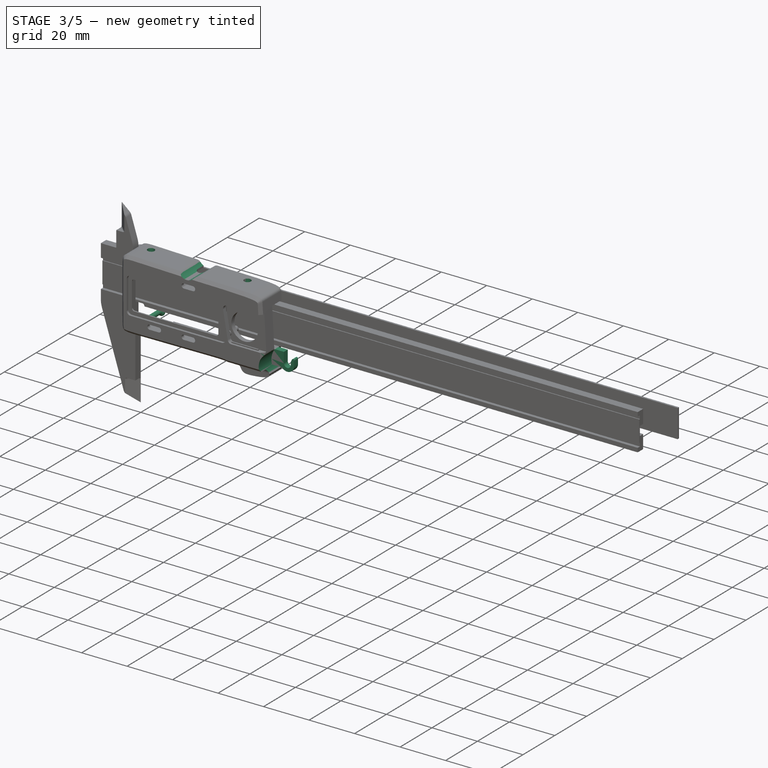
[diagram: stage 3 of 5 — iso view after this stage's code; geometry added in this stage tinted green]
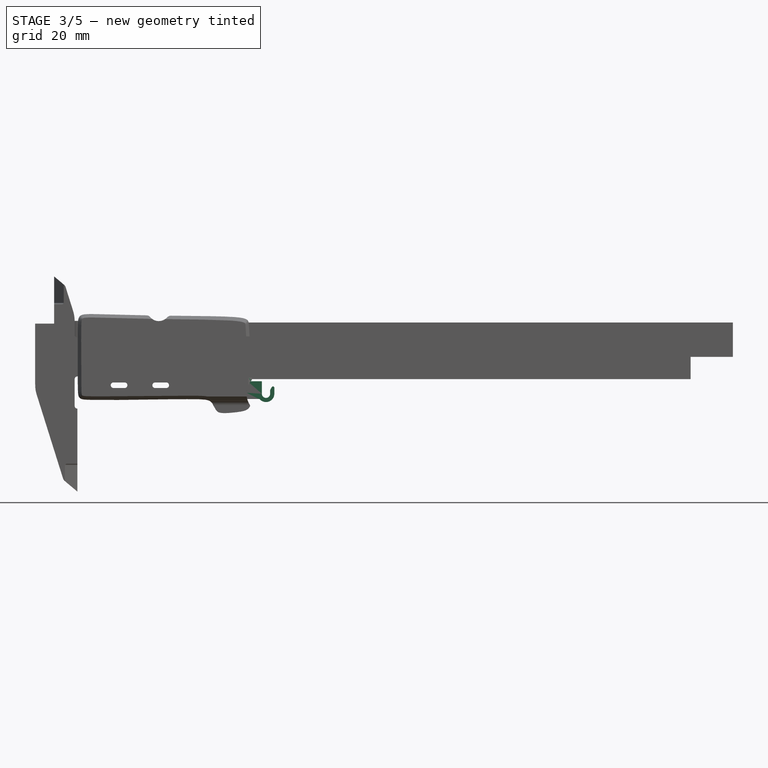
[diagram: stage 3 of 5 — front view after this stage's code; geometry added in this stage tinted green]
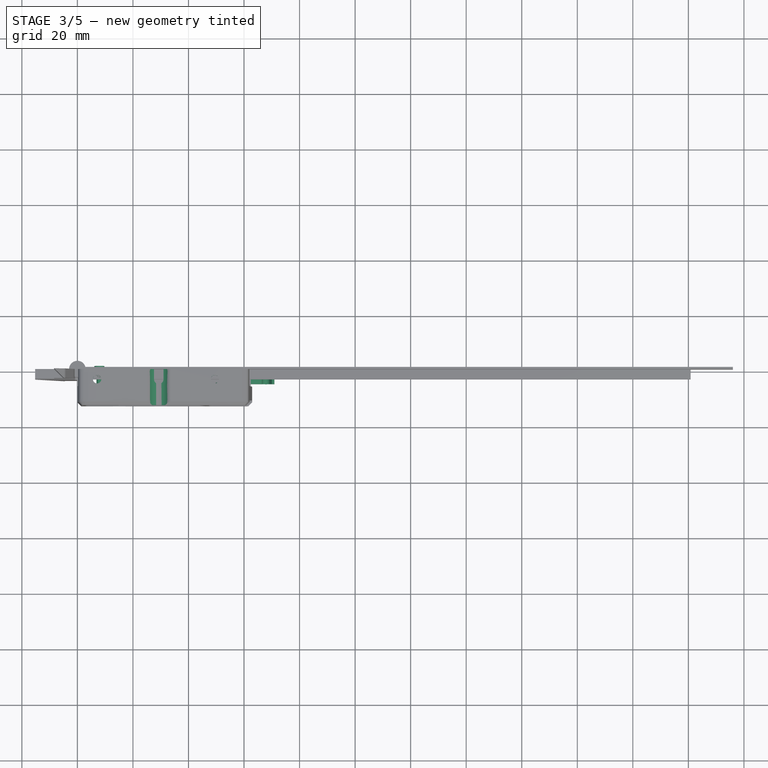
[diagram: stage 3 of 5 — top view after this stage's code; geometry added in this stage tinted green]
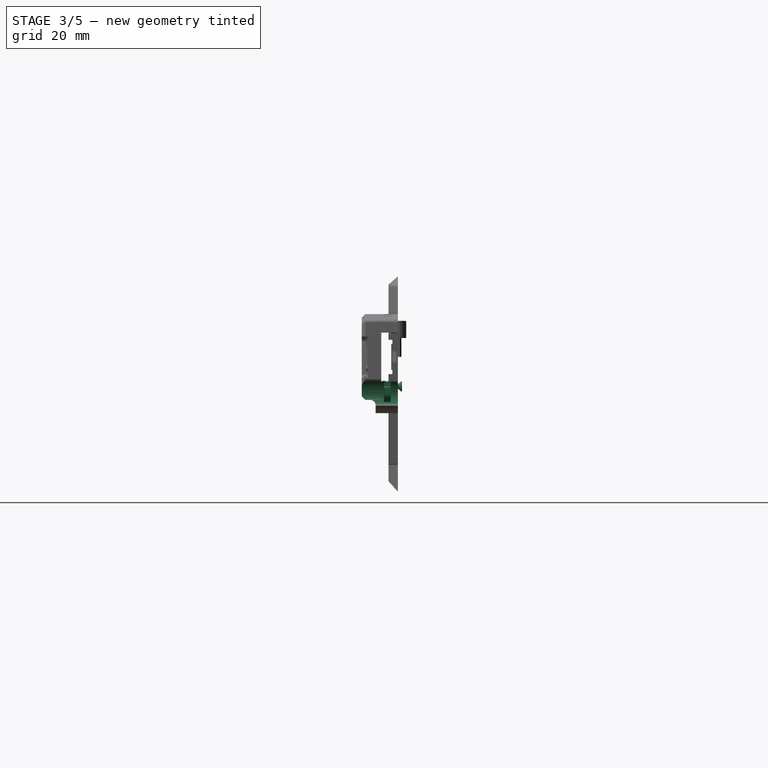
[diagram: stage 3 of 5 — right view after this stage's code; geometry added in this stage tinted green]
FEATURE [PartDesign::Pocket] Pocket027
  BaseFeature = -> Pad013
  Direction = (0,1,2e-16)
  Length = 5
  Length2 = 5
  Profile = -> Sketch044
  ReferenceAxis = -> Sketch044 [N_Axis]
  Type = 1
FEATURE [Sketcher::SketchObject] Sketch045
  FullyConstrained = true
  MapMode = 5
  Placement = pos=(0,0,0) rot=(1,0,0;1.5708rad)
  Support = -> [XZ_Plane006]
  sketch-geometry (1):
    g0: Circle CenterX=68.414 CenterY=-13.25 CenterZ=0 NormalX=0 NormalY=0 NormalZ=1 AngleXU=0 Radius=7.5
  constraints (3):
    c: Diameter(g0) = 15
    c: DistanceY(g0) = -13.25
    c: DistanceX(g0) = 68.414
FEATURE [PartDesign::Pocket] Pocket028
  BaseFeature = -> Pocket027
  Direction = (0,1,2e-16)
  Length = 5
  Length2 = 5
  Profile = -> Sketch045
  ReferenceAxis = -> Sketch045 [N_Axis]
  Reversed = true
  Type = 1
FEATURE [Sketcher::SketchObject] Sketch046  label="hook"
  AttachmentOffset = pos=(0,0,2.6) rot=(0,0,1;0rad)
  ExternalGeometry = -> [Pocket028]
  FullyConstrained = true
  MapMode = 5
  Placement = pos=(0,-2.6,-6e-16) rot=(1,0,0;1.5708rad)
  Support = -> [XZ_Plane006]
  sketch-geometry (9):
    g0: LineSegment StartX=66.414 StartY=-8.75 StartZ=0 EndX=60.414 EndY=-8.75 EndZ=0
    g1: LineSegment StartX=60.414 StartY=-8.75 StartZ=0 EndX=60.414 EndY=-15.15 EndZ=0
    g2: ArcOfCircle CenterX=67.914 CenterY=-13.25 CenterZ=0 NormalX=0 NormalY=0 NormalZ=1 AngleXU=0 Radius=1.5 StartAngle=3.14159 EndAngle=6.28319
    g3: LineSegment StartX=66.414 StartY=-13.25 StartZ=0 EndX=66.414 EndY=-8.75 EndZ=0
    g4: ArcOfCircle CenterX=67.914 CenterY=-13.25 CenterZ=0 NormalX=0 NormalY=0 NormalZ=1 AngleXU=0 Radius=3 StartAngle=3.82745 EndAngle=6.28319
    g5: LineSegment StartX=69.414 StartY=-13.25 StartZ=0 EndX=69.414 EndY=-11.8481 EndZ=0
    g6: LineSegment StartX=69.414 StartY=-11.8481 StartZ=0 EndX=70.914 EndY=-9.25 EndZ=0
    g7: LineSegment StartX=70.914 StartY=-9.25 StartZ=0 EndX=70.914 EndY=-13.25 EndZ=0
    g8: LineSegment StartX=60.414 StartY=-15.15 StartZ=0 EndX=65.5924 EndY=-15.15 EndZ=0
  constraints (29):
    c: Coincident(g0,g1)
    c: Horizontal(g0)
    c: Vertical(g1)
    c: DistanceX(g0,g0) = 6
    c: Horizontal(g2,g2)
    c: Horizontal(g2,g2)
    c: Coincident(g3,g2)
    c: Coincident(g3,g0)
    c: Vertical(g3)
    c: Radius(g2) = 1.5
    c: DistanceY(g1,g1) = 6.4
    c: Coincident(g4,g2)
    c: Radius(g4) = 3
    c: Horizontal(g2,g4)
    c: Tangent(g2,g5) = -1.5708
    c: Coincident(g5,g6)
    c: Coincident(g6,g7)
    c: Coincident(g7,g4)
    c: Vertical(g7)
    c: Angle(g6) = 1.0472
    c: DistanceY(g2,g0) = 4.5
    c: DistanceY(g2) = -13.25  'dy'
    c: DistanceX(g2) = 67.914  'dx'
    c: DistanceX(g-3,g0) = 4
    c: PointOnObject(g0,g-3)
    c: Coincident(g8,g1)
    c: Coincident(g8,g4)
    c: Horizontal(g8)
    c: DistanceY(g7,g7) = 4
FEATURE [PartDesign::Pad] Pad014
  BaseFeature = -> Pocket028
  Direction = (0,-1,-2e-16)
  Length = 2.4
  Length2 = 10
  Profile = -> Sketch046
  ReferenceAxis = -> Sketch046 [N_Axis]
  Type = 0
FEATURE [PartDesign::Fillet] Fillet015
  Base = -> Pad014 [Edge102,Edge207,Edge208]
  BaseFeature = -> Pad014
  Radius = 0.5
  SupportTransform = false
  UseAllEdges = false
FEATURE [PartDesign::Body] Body  label="Body1"
  Group = -> [Sketch,Pad,Sketch007,Pocket005,Fillet003,Sketch008,Pocket006,Sketch009,Pocket007,Sketch014,Pocket010,Sketch018,Pocket014,Sketch019,Pocket015,Fillet004,Fillet005,Fillet006,Sketch051,Hole001]
  Origin = -> Origin001
  Tip = -> Hole001
FEATURE [Sketcher::SketchObject] Sketch052
  AttachmentOffset = pos=(0,0,15.5) rot=(0,0,1;0rad)
  FullyConstrained = true
  MapMode = 5
  Placement = pos=(0,0,15.5) rot=(0,0,1;0rad)
  Support = -> [XY_Plane006]
  expr: .AttachmentOffset.Base.z = Spreadsheet.case_w / 2
  sketch-geometry (6):
    g0: Circle CenterX=7.1 CenterY=-3.7 CenterZ=0 NormalX=0 NormalY=0 NormalZ=1 AngleXU=0 Radius=1.5
    g1: Circle CenterX=49.5 CenterY=-3.7 CenterZ=0 NormalX=0 NormalY=0 NormalZ=1 AngleXU=0 Radius=1.5
    g2: ArcOfCircle CenterX=29.3 CenterY=-3.7 CenterZ=0 NormalX=0 NormalY=0 NormalZ=1 AngleXU=0 Radius=1.7 StartAngle=3.14159 EndAngle=6.28319
    g3: LineSegment StartX=31 StartY=-3.7 StartZ=0 EndX=31 EndY=0 EndZ=0
    g4: LineSegment StartX=27.6 StartY=0 StartZ=0 EndX=27.6 EndY=-3.7 EndZ=0
    g5: LineSegment StartX=27.6 StartY=0 StartZ=0 EndX=31 EndY=0 EndZ=0
  constraints (17):
    c: Tangent(g2,g3) = -1.5708
    c: Tangent(g4,g2) = -1.5708
    c: Vertical(g3)
    c: Equal(g0,g1)
    c: DistanceY(g0,g-1) = 3.7
    c: Diameter(g0) = 3
    c: DistanceX(g0) = 7.1
    c: DistanceX(g0,g1) = 42.4
    c: Horizontal(g0,g2)
    c: Horizontal(g2,g1)
    c: DistanceX(g2,g1) = 20.2
    c: Radius(g2) = 1.7
    c: Coincident(g5,g4)
    c: Coincident(g5,g3)
    c: Horizontal(g5)
    c: PointOnObject(g3,g-1)
    c: Vertical(g4)
FEATURE [PartDesign::Pocket] Pocket030
  BaseFeature = -> Fillet015
  Direction = (0,0,-1)
  Length = 3
  Length2 = 5
  Profile = -> Sketch052
  ReferenceAxis = -> Sketch052 [N_Axis]
  Type = 0
FEATURE [Part::FeaturePython] Screw  label="M2.5x4-Tornillo"  # Fasteners workbench fastener (typed FeaturePython)
  Placement = pos=(8.1,-1.7,12.5) rot=(0,0,1;0rad)
  diameter = 5
  invert = false
  leftHanded = false
  length = 2
  lengthCustom = 4
  matchOuter = false
  offset = 0
  thread = false
  type = 44
FEATURE [Part::FeaturePython] Screw002  label="M2x10-Tornillo"  # Fasteners workbench fastener (typed FeaturePython)
  Placement = pos=(7.9,1.5,-10.6) rot=(-1,0,0;1.5708rad)
  diameter = 2
  invert = false
  leftHanded = false
  length = 5
  lengthCustom = 10
  matchOuter = false
  offset = 0
  thread = false
  type = 50
FEATURE [App::Link] Link001  label="M2.5x4-Tornillo001"
  LinkPlacement = pos=(42.4,-4.93526e-06,-1.8e-15) rot=(0,0,1;0rad)
  LinkTransform = true
  LinkedObject = -> Screw
  Placement = pos=(42.4,-4.93526e-06,-1.8e-15) rot=(0,0,1;0rad)
FEATURE [App::LinkElement] Link002_i0
  LinkPlacement = pos=(29.7,2.02545e-06,8.25086e-07) rot=(-1,0,0;0rad)
  LinkTransform = true
  LinkedObject = -> Screw002
  Placement = pos=(29.7,2.02545e-06,8.25086e-07) rot=(-1,0,0;0rad)
  _LinkOwner = 547
FEATURE [App::LinkElement] Link002_i1
  LinkPlacement = pos=(-2.6,4.052e-06,21.3) rot=(-1,0,0;0rad)
  LinkTransform = true
  LinkedObject = -> Screw002
  Placement = pos=(-2.6,4.052e-06,21.3) rot=(-1,0,0;0rad)
  _LinkOwner = 547
FEATURE [App::LinkElement] Link002_i2
  LinkPlacement = pos=(34,1.66782e-06,21.3) rot=(-1,0,0;0rad)
  LinkTransform = true
  LinkedObject = -> Screw002
  Placement = pos=(34,1.66782e-06,21.3) rot=(-1,0,0;0rad)
  _LinkOwner = 547
FEATURE [App::Link] Link002  label="M2x10-Tornillo001"
  ElementCount = 3
  ElementList = -> [Link002_i0,Link002_i1,Link002_i2]
  LinkTransform = true
  LinkedObject = -> Screw002
FEATURE [Part::FeaturePython] Insert  label="M2-Inserto"  # Fasteners workbench fastener (typed FeaturePython)
  Placement = pos=(51.7,-4.5,-10.4) rot=(-1,0,0;1.5708rad)
  diameter = 1
  invert = false
  leftHanded = false
  matchOuter = false
  offset = 0
  thread = false
  type = 30
FEATURE [Part::FeaturePython] Screw003  label="M1.6x4-Tornillo"  # Fasteners workbench fastener (typed FeaturePython)
  Placement = pos=(10.3,-4.2,10.7) rot=(-1,0,0;1.5708rad)
  diameter = 1
  invert = false
  leftHanded = false
  length = 2
  lengthCustom = 4
  matchOuter = false
  offset = 0
  thread = false
  type = 50
FEATURE [App::LinkElement] Link003_i0
  LinkPlacement = pos=(27.9,-1.89925e-06,2.26568e-06) rot=(-1,0,0;0rad)
  LinkTransform = true
  LinkedObject = -> Screw003
  Placement = pos=(27.9,-1.89925e-06,2.26568e-06) rot=(-1,0,0;0rad)
  _LinkOwner = 554
FEATURE [App::LinkElement] Link003_i1
  LinkPlacement = pos=(12.5,-4.28344e-06,-21.4) rot=(-1,0,0;0rad)
  LinkTransform = true
  LinkedObject = -> Screw003
  Placement = pos=(12.5,-4.28344e-06,-21.4) rot=(-1,0,0;0rad)
  _LinkOwner = 554
FEATURE [App::LinkElement] Link003_i2
  LinkPlacement = pos=(37.1,-3.32976e-06,-14.9) rot=(-1,0,0;0rad)
  LinkTransform = true
  LinkedObject = -> Screw003
  Placement = pos=(37.1,-3.32976e-06,-14.9) rot=(-1,0,0;0rad)
  _LinkOwner = 554
FEATURE [App::Link] Link003  label="M1.6x4-Tornillo001"
  ElementCount = 3
  ElementList = -> [Link003_i0,Link003_i1,Link003_i2]
  LinkTransform = true
  LinkedObject = -> Screw003
FEATURE [Sketcher::SketchObject] Sketch053
  ExternalGeometry = -> [Pocket030]
  FullyConstrained = true
  MapMode = 5
  Placement = pos=(0,0,0) rot=(1,0,0;1.5708rad)
  Support = -> [XZ_Plane006]
  sketch-geometry (2):
    g0: Circle CenterX=29.3 CenterY=16.908 CenterZ=0 NormalX=0 NormalY=0 NormalZ=1 AngleXU=0 Radius=4
    g1: LineSegment StartX=29.3 StartY=16.908 StartZ=0 EndX=29.3 EndY=14.908 EndZ=0
  constraints (5):
    c: Diameter(g0) = 8
    c: Coincident(g1,g0)
    c: Vertical(g1)
    c: Symmetric(g-4,g-3,g1)
    c: DistanceY(g1,g1) = 2
FEATURE [PartDesign::Pocket] Pocket031
  BaseFeature = -> Pocket030
  Direction = (0,1,2e-16)
  Length = 5
  Length2 = 5
  Profile = -> Sketch053
  ReferenceAxis = -> Sketch053 [N_Axis]
  Reversed = true
  Type = 1
FEATURE [PartDesign::Fillet] Fillet016
  Base = -> Pocket031 [Edge62,Edge147]
  BaseFeature = -> Pocket031
  Radius = 2
  SupportTransform = false
  UseAllEdges = false
FEATURE [PartDesign::ShapeBinder] ShapeBinder001
  Support = -> [Fillet016]
  TraceSupport = false
FEATURE [Sketcher::SketchObject] Sketch054
  ExternalGeometry = -> [ShapeBinder001]
  FullyConstrained = false
  MapMode = 5
  Placement = pos=(0,0,0) rot=(1,0,0;1.5708rad)
  Support = -> [XZ_Plane019]
  sketch-geometry (6):
    g0: LineSegment StartX=48.8731 StartY=-7.4 StartZ=0 EndX=63.3277 EndY=-7.4 EndZ=0
    g1: LineSegment StartX=63.3277 StartY=-7.4 StartZ=0 EndX=63.3277 EndY=7.4 EndZ=0
    g2: LineSegment StartX=63.3277 StartY=7.4 StartZ=0 EndX=46.8277 EndY=7.4 EndZ=0
    g3: LineSegment StartX=45.252 StartY=5.52216 StartZ=0 EndX=47.2974 EndY=-6.07784 EndZ=0
    g4: ArcOfCircle CenterX=46.8277 CenterY=5.8 CenterZ=0 NormalX=0 NormalY=0 NormalZ=1 AngleXU=0 Radius=1.6 StartAngle=1.5708 EndAngle=3.31613
    g5: ArcOfCircle CenterX=48.8731 CenterY=-5.8 CenterZ=0 NormalX=0 NormalY=0 NormalZ=1 AngleXU=0 Radius=1.6 StartAngle=3.31613 EndAngle=4.71239
  constraints (10):
    c: Horizontal(g0)
    c: Coincident(g0,g1)
    c: Vertical(g1)
    c: Coincident(g1,g2)
    c: Horizontal(g2)
    c: Tangent(g2,g4) = -1.5708
    c: Tangent(g3,g4) = -1.5708
    c: Tangent(g0,g5) = -1.5708
    c: Tangent(g3,g5) = -1.5708
    c: DistanceX(g2,g2) = 16.5
FEATURE [PartDesign::Pad] Pad016
  Direction = (0,-1,-2e-16)
  Length = 2
  Length2 = 10
  Placement = pos=(0,0,0) rot=(1,0,0;1.5708rad)
  Profile = -> Sketch054
  ReferenceAxis = -> Sketch054 [N_Axis]
  Type = 0
FEATURE [PartDesign::ShapeBinder] ShapeBinder002
  Placement = pos=(0,-13,-3e-15) rot=(1,0,0;1.5708rad)
  Support = -> [Sketch030]
  TraceSupport = false
FEATURE [PartDesign::Pocket] Pocket032
  BaseFeature = -> Pad016
  Direction = (0,-1,-2e-16)
  Length = 5
  Length2 = 5
  Placement = pos=(0,0,0) rot=(1,0,0;1.5708rad)
  Profile = -> ShapeBinder002
  Reversed = true
  Type = 1
FEATURE [PartDesign::Chamfer] Chamfer001
  Angle = 45
  Base = -> Pocket032 [Edge10]
  BaseFeature = -> Pocket032
  ChamferType = 0
  FlipDirection = false
  Placement = pos=(0,0,0) rot=(1,0,0;1.5708rad)
  Size = 1.3
  Size2 = 1
  SupportTransform = false
  UseAllEdges = false
FEATURE [Sketcher::SketchObject] Sketch055  label="Artificial chamfer"
  ExternalGeometry = -> [Fillet016]
  FullyConstrained = true
  MapMode = 5
  Support = -> [XY_Plane006]
  sketch-geometry (3):
    g0: LineSegment StartX=63.3701 StartY=-11.2022 StartZ=0 EndX=63.3701 EndY=-13 EndZ=0
    g1: LineSegment StartX=63.3701 StartY=-13 StartZ=0 EndX=61.5723 EndY=-13 EndZ=0
    g2: LineSegment StartX=61.5723 StartY=-13 StartZ=0 EndX=63.3701 EndY=-11.2022 EndZ=0
  constraints (9):
    c: DistanceX(g-3,g0) = 0.5
    c: Vertical(g0)
    c: Coincident(g0,g1)
    c: PointOnObject(g1,g-3)
    c: Horizontal(g1)
    c: Coincident(g1,g2)
    c: Coincident(g2,g0)
    c: Angle(g2) = 0.785398
    c: Block(g2)
FEATURE [PartDesign::Pocket] Pocket033
  BaseFeature = -> Fillet016
  Direction = (0,0,-1)
  Length = 5
  Length2 = 5
  Profile = -> Sketch055
  ReferenceAxis = -> Sketch055 [N_Axis]
  Type = 1
FEATURE [Sketcher::SketchObject] Sketch056
  ExternalGeometry = -> [ShapeBinder001]
  FullyConstrained = false
  MapMode = 5
  Placement = pos=(0,0,0) rot=(1,0,0;1.5708rad)
  Support = -> [XZ_Plane019]
  sketch-geometry (8):
    g0: LineSegment StartX=49.8731 StartY=-7.4 StartZ=0 EndX=49.8731 EndY=-6.2 EndZ=0
    g1: LineSegment StartX=49.8731 StartY=-6.2 StartZ=0 EndX=61.8499 EndY=-6.2 EndZ=0
    g2: LineSegment StartX=61.2 StartY=6.2 StartZ=0 EndX=47.8277 EndY=6.2 EndZ=0
    g3: LineSegment StartX=47.8277 StartY=6.2 StartZ=0 EndX=47.8277 EndY=7.4 EndZ=0
    g4: LineSegment StartX=61.2 StartY=6.2 StartZ=0 EndX=61.8499 EndY=-6.2 EndZ=0
    g5: LineSegment StartX=49.8731 StartY=-7.4 StartZ=0 EndX=43.8277 EndY=-7.4 EndZ=0
    g6: LineSegment StartX=43.8277 StartY=-7.4 StartZ=0 EndX=43.8277 EndY=7.4 EndZ=0
    g7: LineSegment StartX=43.8277 StartY=7.4 StartZ=0 EndX=47.8277 EndY=7.4 EndZ=0
  constraints (17):
    c: Coincident(g0,g1)
    c: Horizontal(g1)
    c: Horizontal(g2)
    c: Coincident(g2,g3)
    c: Vertical(g3)
    c: Vertical(g0)
    c: Coincident(g4,g2)
    c: Coincident(g4,g1)
    c: Angle(g4) = -1.51844
    c: Coincident(g0,g5)
    c: Horizontal(g5)
    c: Coincident(g5,g6)
    c: Vertical(g6)
    c: Coincident(g6,g7)
    c: Coincident(g7,g3)
    c: Horizontal(g7)
    c: DistanceX(g7,g7) = 4
FEATURE [PartDesign::Pocket] Pocket034
  BaseFeature = -> Chamfer001
  Direction = (0,1,2e-16)
  Length = 1
  Length2 = 5
  Placement = pos=(0,0,0) rot=(1,0,0;1.5708rad)
  Profile = -> Sketch056
  ReferenceAxis = -> Sketch056 [N_Axis]
  Reversed = true
  Type = 0
FEATURE [Sketcher::SketchObject] Sketch057
  AttachmentOffset = pos=(0,0,47) rot=(0,0,1;0rad)
  ExternalGeometry = -> [Pocket034]
  FullyConstrained = true
  MapMode = 5
  Placement = pos=(47,-1.04e-14,1.04e-14) rot=(0.57735,0.57735,0.57735;2.0944rad)
  Support = -> [YZ_Plane019]
  sketch-geometry (5):
    g0: LineSegment StartX=-0.75 StartY=7.4 StartZ=0 EndX=-0.25 EndY=7.4 EndZ=0
    g1: LineSegment StartX=-0.25 StartY=7.4 StartZ=0 EndX=-0.25 EndY=6.9 EndZ=0
    g2: LineSegment StartX=-0.25 StartY=6.9 StartZ=0 EndX=-0.75 EndY=6.9 EndZ=0
    g3: LineSegment StartX=-0.75 StartY=6.9 StartZ=0 EndX=-0.75 EndY=7.4 EndZ=0
    g4: GeomPoint X=-1.5 Y=7.4 Z=0
  constraints (14):
    c: Coincident(g0,g1)
    c: Coincident(g1,g2)
    c: Coincident(g2,g3)
    c: Coincident(g3,g0)
    c: Horizontal(g2)
    c: Vertical(g1)
    c: Vertical(g3)
    c: Equal(g0,g1)
    c: DistanceX(g2,g2) = 0.5
    c: Symmetric(g-5,g-3,g4)
    c: PointOnObject(g0,g-3)
    c: DistanceX(g-3,g-6) = 2
    c: Horizontal(g0)
    c: DistanceX(g0,g-6) = 0.25
FEATURE [PartDesign::Pocket] Pocket035
  BaseFeature = -> Pocket034
  Direction = (-1,2e-16,-3e-16)
  Length = 14
  Length2 = 5
  Placement = pos=(0,0,0) rot=(1,0,0;1.5708rad)
  Profile = -> Sketch057
  ReferenceAxis = -> Sketch057 [N_Axis]
  Reversed = true
  Type = 0
FEATURE [PartDesign::Mirrored] Mirrored
  BaseFeature = -> Pocket035
  MirrorPlane = -> Sketch057 [H_Axis]
  Originals = -> [Pocket035]
  Placement = pos=(0,0,0) rot=(1,0,0;1.5708rad)
FEATURE [PartDesign::Body] Body016  label="Batt cover"
  Group = -> [ShapeBinder001,Sketch054,Pad016,ShapeBinder002,Pocket032,Chamfer001,Sketch056,Pocket034,Sketch057,Pocket035,Mirrored]
  Origin = -> Origin019
  Placement = pos=(1,-9,0) rot=(0,0,1;0rad)
  Tip = -> Mirrored
FEATURE [Sketcher::SketchObject] Sketch058
  AttachmentOffset = pos=(0,0,60) rot=(0,0,1;0rad)
  ExternalGeometry = -> [Pocket033]
  FullyConstrained = true
  MapMode = 5
  Placement = pos=(60,-1.33e-14,1.33e-14) rot=(0.57735,0.57735,0.57735;2.0944rad)
  Support = -> [YZ_Plane006]
  sketch-geometry (8):
    g0: LineSegment StartX=-11.5 StartY=-7.4 StartZ=0 EndX=-12 EndY=-7.4 EndZ=0
    g1: LineSegment StartX=-12 StartY=-7.4 StartZ=0 EndX=-12 EndY=-6.9 EndZ=0
    g2: LineSegment StartX=-12 StartY=-6.9 StartZ=0 EndX=-11.5 EndY=-6.9 EndZ=0
    g3: LineSegment StartX=-11.5 StartY=-6.9 StartZ=0 EndX=-11.5 EndY=-7.4 EndZ=0
    g4: LineSegment StartX=-11.5 StartY=7.4 StartZ=0 EndX=-12 EndY=7.4 EndZ=0
    g5: LineSegment StartX=-12 StartY=7.4 StartZ=0 EndX=-12 EndY=6.9 EndZ=0
    g6: LineSegment StartX=-12 StartY=6.9 StartZ=0 EndX=-11.5 EndY=6.9 EndZ=0
    g7: LineSegment StartX=-11.5 StartY=6.9 StartZ=0 EndX=-11.5 EndY=7.4 EndZ=0
  constraints (24):
    c: Coincident(g0,g1)
    c: Coincident(g1,g2)
    c: Coincident(g2,g3)
    c: Coincident(g3,g0)
    c: Horizontal(g0)
    c: Horizontal(g2)
    c: Vertical(g1)
    c: Vertical(g3)
    c: PointOnObject(g0,g-5)
    c: Coincident(g4,g5)
    c: Coincident(g5,g6)
    c: Coincident(g6,g7)
    c: Coincident(g7,g4)
    c: Horizontal(g4)
    c: Horizontal(g6)
    c: Vertical(g5)
    c: Vertical(g7)
    c: PointOnObject(g4,g-4)
    c: Vertical(g5,g1)
    c: Equal(g2,g1)
    c: Equal(g1,g6)
    c: Equal(g6,g7)
    c: DistanceX(g-3,g4) = 1
    c: DistanceX(g6,g6) = 0.5
FEATURE [PartDesign::Pad] Pad017
  BaseFeature = -> Pocket033
  Direction = (1,-2e-16,3e-16)
  Length = 12
  Length2 = 10
  Profile = -> Sketch058
  ReferenceAxis = -> Sketch058 [N_Axis]
  Reversed = true
  Type = 0
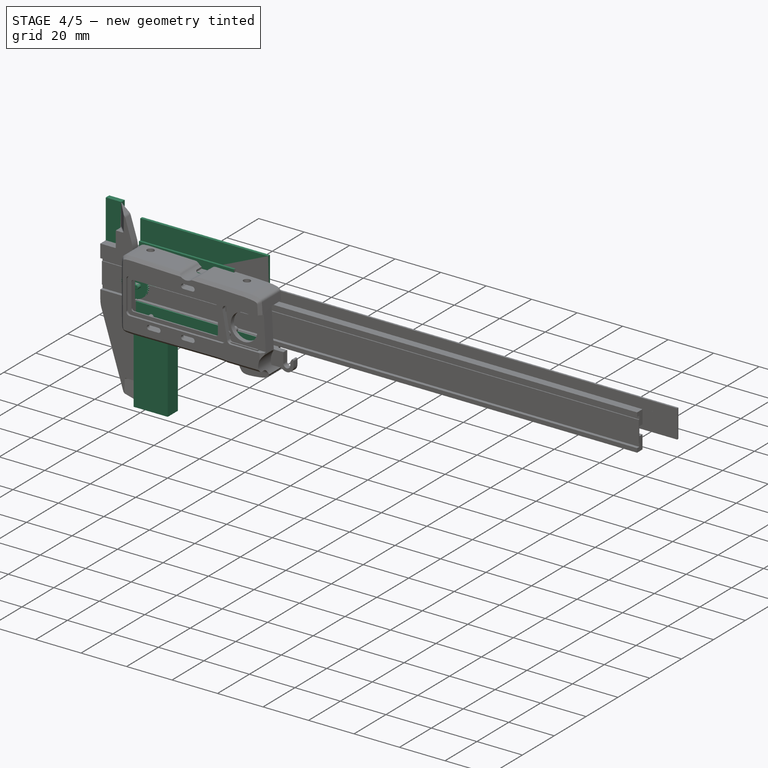
[diagram: stage 4 of 5 — iso view after this stage's code; geometry added in this stage tinted green]
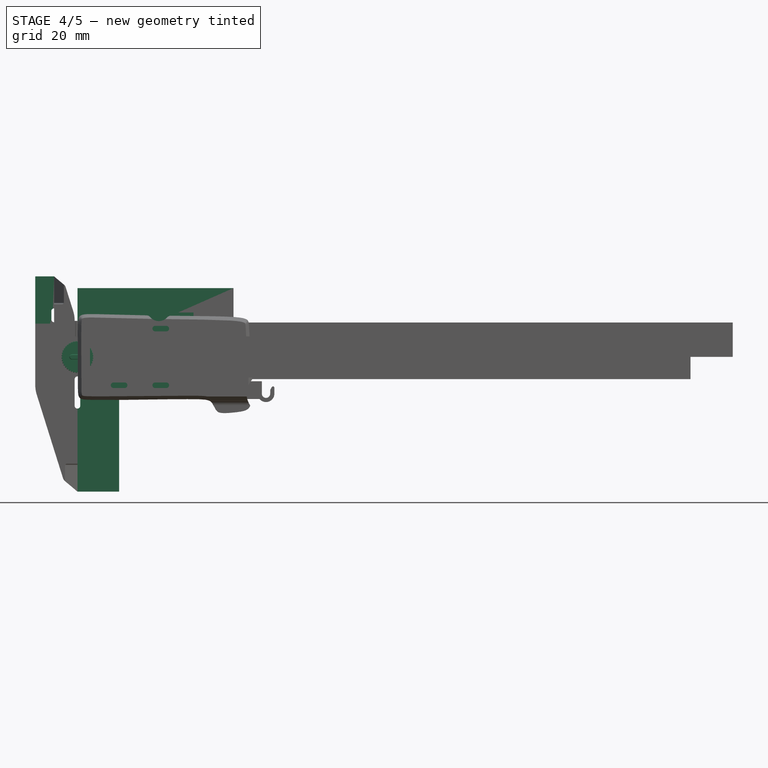
[diagram: stage 4 of 5 — front view after this stage's code; geometry added in this stage tinted green]
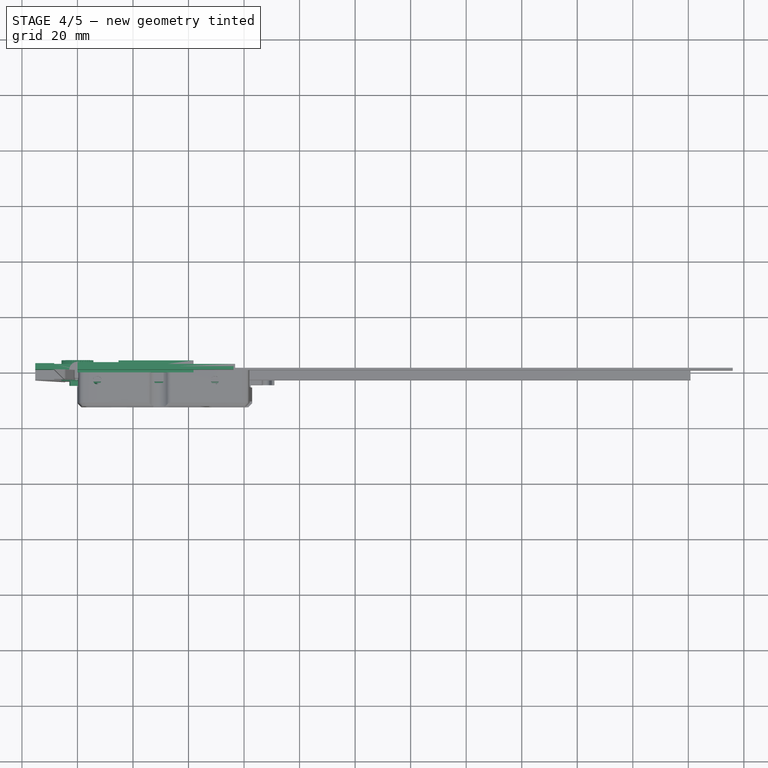
[diagram: stage 4 of 5 — top view after this stage's code; geometry added in this stage tinted green]
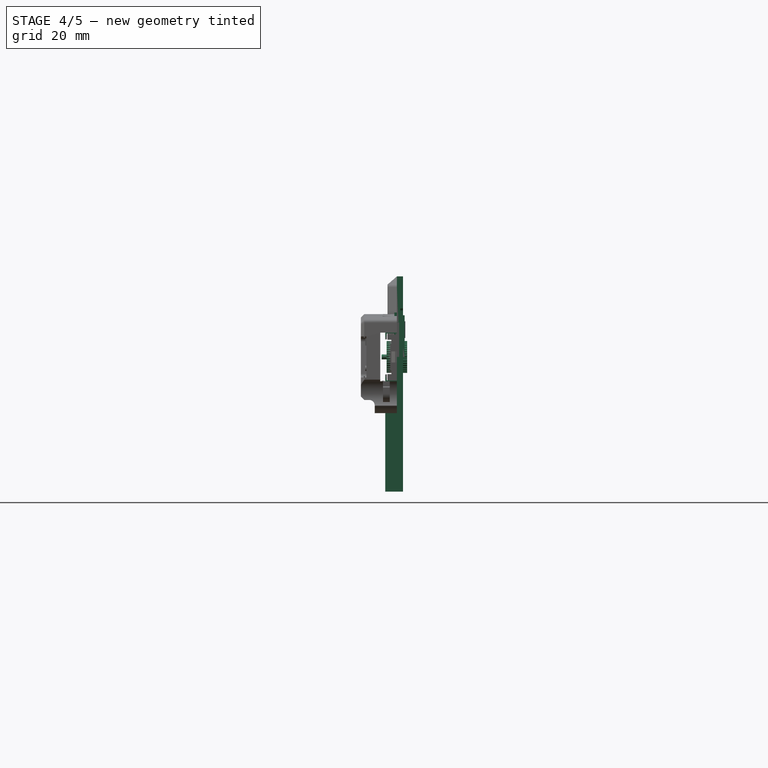
[diagram: stage 4 of 5 — right view after this stage's code; geometry added in this stage tinted green]
FEATURE [Sketcher::SketchObject] Sketch001  label="T-Slot"
  FullyConstrained = true
  MapMode = 5
  Placement = pos=(0,0,0) rot=(0.57735,0.57735,0.57735;2.0944rad)
  Support = -> [YZ_Plane002]
  expr: Constraints[26] = Spreadsheet.main2_Tslot_t
  expr: Constraints[27] = Spreadsheet.main2_Tslot_w1
  expr: Constraints[28] = Spreadsheet.main2_Tslot_w2
  expr: Constraints[31] = Spreadsheet.main2_Tslot_t2
  expr: Constraints[8] = Spreadsheet.main2_t
  expr: Constraints[9] = Spreadsheet.main2_w
  sketch-geometry (13):
    g0: LineSegment StartX=-4.2 StartY=6.3 StartZ=0 EndX=-4.2 EndY=12.5 EndZ=0
    g1: LineSegment StartX=-4.2 StartY=12.5 StartZ=0 EndX=2.2 EndY=12.5 EndZ=0
    g2: LineSegment StartX=2.2 StartY=12.5 StartZ=0 EndX=2.2 EndY=-12.5 EndZ=0
    g3: LineSegment StartX=2.2 StartY=-12.5 StartZ=0 EndX=-4.2 EndY=-12.5 EndZ=0
    g4: LineSegment StartX=-4.2 StartY=-12.5 StartZ=0 EndX=-4.2 EndY=-6.3 EndZ=0
    g5: LineSegment StartX=-4.2 StartY=-6.3 StartZ=0 EndX=-3.6 EndY=-6.3 EndZ=0
    g6: LineSegment StartX=-3.6 StartY=-6.3 StartZ=0 EndX=-3.6 EndY=-8.5 EndZ=0
    g7: LineSegment StartX=-3.6 StartY=-8.5 StartZ=0 EndX=0 EndY=-8.5 EndZ=0
    g8: LineSegment StartX=0 StartY=-8.5 StartZ=0 EndX=0 EndY=8.5 EndZ=0
    g9: LineSegment StartX=-3.6 StartY=8.5 StartZ=0 EndX=-3.6 EndY=6.3 EndZ=0
    g10: LineSegment StartX=-3.6 StartY=6.3 StartZ=0 EndX=-4.2 EndY=6.3 EndZ=0
    g11: LineSegment StartX=-3.6 StartY=8.5 StartZ=0 EndX=0 EndY=8.5 EndZ=0
    g12: LineSegment StartX=-4.2 StartY=-6.3 StartZ=0 EndX=-4.2 EndY=6.3 EndZ=0
  constraints (36):
    c: Vertical(g0)
    c: Coincident(g0,g1)
    c: Horizontal(g1)
    c: Coincident(g1,g2)
    c: Coincident(g2,g3)
    c: Horizontal(g3)
    c: Equal(g1,g3)
    c: Symmetric(g2,g1,g-1)
    c: DistanceX(g1,g1) = 6.4
    c: DistanceY(g2,g2) = 25
    c: Coincident(g3,g4)
    c: Vertical(g4)
    c: Coincident(g4,g5)
    c: Horizontal(g5)
    c: Coincident(g5,g6)
    c: Vertical(g6)
    c: Coincident(g6,g7)
    c: Horizontal(g7)
    c: Coincident(g7,g8)
    c: Vertical(g9)
    c: Coincident(g9,g10)
    c: Coincident(g10,g0)
    c: Horizontal(g10)
    c: Coincident(g11,g9)
    c: Coincident(g11,g8)
    c: Horizontal(g11)
    c: DistanceX(g5,g5) = 0.6
    c: DistanceY(g4,g0) = 12.6
    c: DistanceY(g8,g8) = 17
    c: Symmetric(g7,g8,g-1)
    c: Symmetric(g5,g9,g-1)
    c: DistanceX(g8,g1) = 2.2
    c: PointOnObject(g8,g-2)
    c: Coincident(g12,g5)
    c: Coincident(g12,g10)
    c: DistanceX(g7,g7) = 3.6
FEATURE [Sketcher::SketchObject] Sketch002  label="Sketch_body2"
  FullyConstrained = true
  MapMode = 5
  Placement = pos=(0,0,0) rot=(1,0,0;1.5708rad)
  Support = -> [XZ_Plane002]
  expr: Constraints[14] = Spreadsheet.main2_w
  expr: Constraints[16] = Spreadsheet.main2_bottom_l
  expr: Constraints[17] = Spreadsheet.main2_bottom_w
  expr: Constraints[18] = Spreadsheet.main2_top_l
  expr: Constraints[19] = Spreadsheet.main2_top_w
  expr: Constraints[20] = Spreadsheet.main2_top_w + Spreadsheet.main2_extra_w
  expr: Constraints[27] = Spreadsheet.main2_l + Spreadsheet.main2_extra_l + Spreadsheet.gap
  expr: Constraints[28] = -Spreadsheet.main2_extra_w
  sketch-geometry (10):
    g0: LineSegment StartX=0 StartY=-48.5 StartZ=0 EndX=15 EndY=-48.5 EndZ=0
    g1: LineSegment StartX=15 StartY=-48.5 StartZ=0 EndX=15 EndY=-12.5 EndZ=0
    g2: LineSegment StartX=15 StartY=-12.5 StartZ=0 EndX=56.8 EndY=-12.5 EndZ=0
    g3: LineSegment StartX=56.8 StartY=-12.5 StartZ=0 EndX=56.8 EndY=12.5 EndZ=0
    g4: LineSegment StartX=56.8 StartY=12.5 StartZ=0 EndX=-8.4 EndY=12.5 EndZ=0
    g5: LineSegment StartX=-8.4 StartY=12.5 StartZ=0 EndX=-8.4 EndY=29 EndZ=0
    g6: LineSegment StartX=-8.4 StartY=29 StartZ=0 EndX=-15.2 EndY=29 EndZ=0
    g7: LineSegment StartX=-15.2 StartY=29 StartZ=0 EndX=-15.2 EndY=-2.7 EndZ=0
    g8: LineSegment StartX=-15.2 StartY=-2.7 StartZ=0 EndX=0 EndY=-2.7 EndZ=0
    g9: LineSegment StartX=0 StartY=-2.7 StartZ=0 EndX=0 EndY=-48.5 EndZ=0
  constraints (31):
    c: Horizontal(g0)
    c: Coincident(g0,g1)
    c: Vertical(g1)
    c: Coincident(g1,g2)
    c: Horizontal(g2)
    c: Coincident(g2,g3)
    c: Coincident(g3,g4)
    c: Horizontal(g4)
    c: Coincident(g4,g5)
    c: Vertical(g5)
    c: Coincident(g5,g6)
    c: Horizontal(g6)
    c: Coincident(g6,g7)
    c: Vertical(g7)
    c: DistanceY(g3,g3) = 25
    c: Symmetric(g3,g2,g-1)
    c: DistanceX(g0,g0) = 15
    c: DistanceY(g1,g1) = 36
    c: DistanceX(g6,g6) = 6.8
    c: DistanceY(g5,g5) = 16.5
    c: DistanceY(g7,g7) = 31.7
    c: Coincident(g7,g8)
    c: PointOnObject(g8,g-2)
    c: Horizontal(g8)
    c: Coincident(g8,g9)
    c: Coincident(g9,g0)
    c: Vertical(g9)
    c: DistanceX(g6,g3) = 72
    c: DistanceX(g6) = -15.2
    c: DistanceY(g0) = -48.5  'b2_w_bottom'
    c: DistanceY(g6) = 29  'b2_w_top'
FEATURE [PartDesign::Pad] Pad001
  Direction = (0,-1,-2e-16)
  Length = 4.2
  Length2 = 2.2
  Placement = pos=(0,0,0) rot=(1,0,0;1.5708rad)
  Profile = -> Sketch002
  ReferenceAxis = -> Sketch002 [N_Axis]
  Type = 4
  expr: Length = Spreadsheet.main2_t - Spreadsheet.main2_t_top
  expr: Length2 = Spreadsheet.main2_t_top
FEATURE [PartDesign::Pocket] Pocket
  BaseFeature = -> Pad001
  Direction = (-1,2e-16,-3e-16)
  Length = 5
  Length2 = 5
  Placement = pos=(0,0,0) rot=(1,0,0;1.5708rad)
  Profile = -> Sketch001
  ReferenceAxis = -> Sketch001 [N_Axis]
  Reversed = true
  Type = 2
FEATURE [PartDesign::Plane] DatumPlane  label="DatumPlane TopFace"
  AttachmentOffset = pos=(0,0,4.2) rot=(0,0,1;0rad)
  Length = 273.404
  MapMode = 5
  Placement = pos=(0,-4.2,-9e-16) rot=(1,0,0;1.5708rad)
  ResizeMode = 0
  Support = -> [XZ_Plane002]
  Width = 105.104
  expr: .AttachmentOffset.Base.z = Spreadsheet.main2_t - Spreadsheet.main2_t_top
FEATURE [Sketcher::SketchObject] Sketch003
  ExternalGeometry = -> [Pocket]
  FullyConstrained = true
  MapMode = 5
  Placement = pos=(0,-4.2,-9e-16) rot=(1,0,0;1.5708rad)
  Support = -> [DatumPlane]
  expr: Constraints[10] = Spreadsheet.main2_Tslot_w1 / 2
  expr: Constraints[22] = Spreadsheet.gap
  expr: Constraints[9] = Spreadsheet.gap
  sketch-geometry (8):
    g0: LineSegment StartX=0 StartY=-6.3 StartZ=0 EndX=1 EndY=-6.3 EndZ=0
    g1: LineSegment StartX=1 StartY=-6.3 StartZ=0 EndX=1 EndY=-18.6 EndZ=0
    g2: LineSegment StartX=1 StartY=-18.6 StartZ=0 EndX=0 EndY=-18.6 EndZ=0
    g3: LineSegment StartX=0 StartY=-18.6 StartZ=0 EndX=0 EndY=-6.3 EndZ=0
    g4: LineSegment StartX=-8.4 StartY=12.5 StartZ=0 EndX=-9.4 EndY=12.5 EndZ=0
    g5: LineSegment StartX=-9.4 StartY=12.5 StartZ=0 EndX=-9.4 EndY=17.5 EndZ=0
    g6: LineSegment StartX=-9.4 StartY=17.5 StartZ=0 EndX=-8.4 EndY=17.5 EndZ=0
    g7: LineSegment StartX=-8.4 StartY=17.5 StartZ=0 EndX=-8.4 EndY=12.5 EndZ=0
  constraints (23):
    c: Coincident(g0,g1)
    c: Coincident(g1,g2)
    c: Coincident(g2,g3)
    c: Coincident(g3,g0)
    c: Horizontal(g0)
    c: Horizontal(g2)
    c: Vertical(g1)
    c: Vertical(g3)
    c: PointOnObject(g0,g-2)
    c: DistanceX(g2,g2) = 1
    c: DistanceY(g0,g-1) = 6.3
    c: DistanceY(g1,g1) = 12.3
    c: Coincident(g4,g5)
    c: Coincident(g5,g6)
    c: Coincident(g6,g7)
    c: Coincident(g7,g4)
    c: Horizontal(g4)
    c: Horizontal(g6)
    c: Vertical(g5)
    c: Vertical(g7)
    c: Coincident(g4,g-4)
    c: DistanceY(g5,g5) = 5
    c: DistanceX(g6,g6) = 1
FEATURE [PartDesign::Pocket] Pocket001
  BaseFeature = -> Pocket
  Direction = (0,1,2e-16)
  Length = 5
  Length2 = 5
  Placement = pos=(0,0,0) rot=(1,0,0;1.5708rad)
  Profile = -> Sketch003
  ReferenceAxis = -> Sketch003 [N_Axis]
  Type = 1
FEATURE [PartDesign::Fillet] Fillet
  Base = -> Pocket001 [Edge30,Edge44,Edge46]
  BaseFeature = -> Pocket001
  Placement = pos=(0,0,0) rot=(1,0,0;1.5708rad)
  Radius = 0.99
  SupportTransform = false
  UseAllEdges = false
FEATURE [Sketcher::SketchObject] Sketch004
  ExternalGeometry = -> [Fillet]
  FullyConstrained = true
  MapMode = 5
  Placement = pos=(0,-4.2,-9e-16) rot=(1,0,0;1.5708rad)
  Support = -> [DatumPlane]
  expr: Constraints[7] = Spreadsheet.gap
  sketch-geometry (9):
    g0: LineSegment StartX=-3.6e-15 StartY=6.3 StartZ=0 EndX=1 EndY=6.3 EndZ=0
    g1: LineSegment StartX=1 StartY=6.3 StartZ=0 EndX=1 EndY=12.5 EndZ=0
    g2: LineSegment StartX=1 StartY=12.5 StartZ=0 EndX=0 EndY=12.5 EndZ=0
    g3: LineSegment StartX=-3.6e-15 StartY=6.3 StartZ=0 EndX=0 EndY=-2.7 EndZ=0
    g4: LineSegment StartX=0 StartY=-2.7 StartZ=0 EndX=-15.2 EndY=-2.7 EndZ=0
    g5: LineSegment StartX=-15.2 StartY=-2.7 StartZ=0 EndX=-15.2 EndY=29 EndZ=0
    g6: LineSegment StartX=-15.2 StartY=29 StartZ=0 EndX=-8.4 EndY=29 EndZ=0
    g7: LineSegment StartX=-8.4 StartY=29 StartZ=0 EndX=-8.4 EndY=12.5 EndZ=0
    g8: LineSegment StartX=0 StartY=12.5 StartZ=0 EndX=-8.4 EndY=12.5 EndZ=0
  constraints (22):
    c: Coincident(g0,g1)
    c: Coincident(g1,g2)
    c: Horizontal(g0)
    c: Horizontal(g2)
    c: Vertical(g1)
    c: Coincident(g0,g-3)
    c: PointOnObject(g1,g-5)
    c: DistanceX(g2,g2) = 1
    c: Coincident(g0,g3)
    c: PointOnObject(g3,g-2)
    c: Coincident(g3,g4)
    c: Coincident(g4,g-7)
    c: Horizontal(g4)
    c: Coincident(g4,g5)
    c: Coincident(g5,g-6)
    c: Coincident(g5,g6)
    c: Coincident(g6,g-6)
    c: Coincident(g6,g7)
    c: Coincident(g7,g-5)
    c: Coincident(g8,g2)
    c: Coincident(g8,g7)
    c: PointOnObject(g2,g-2)
FEATURE [PartDesign::Pocket] Pocket002
  BaseFeature = -> Fillet
  Direction = (0,1,2e-16)
  Length = 4.2
  Length2 = 5
  Placement = pos=(0,0,0) rot=(1,0,0;1.5708rad)
  Profile = -> Sketch004
  ReferenceAxis = -> Sketch004 [N_Axis]
  Type = 0
  expr: Length = Spreadsheet.main2_t - Spreadsheet.main2_t_top
FEATURE [Sketcher::SketchObject] Sketch032
  FullyConstrained = true
  MapMode = 5
  Placement = pos=(0,0,0) rot=(1,0,0;1.5708rad)
  Support = -> [XZ_Plane010]
  sketch-geometry (4):
    g0: ArcOfCircle CenterX=-2 CenterY=0 CenterZ=0 NormalX=0 NormalY=0 NormalZ=1 AngleXU=0 Radius=0.9 StartAngle=1.5708 EndAngle=4.71239
    g1: ArcOfCircle CenterX=2 CenterY=0 CenterZ=0 NormalX=0 NormalY=0 NormalZ=1 AngleXU=0 Radius=0.9 StartAngle=4.71239 EndAngle=7.85398
    g2: LineSegment StartX=-2 StartY=-0.9 StartZ=0 EndX=2 EndY=-0.9 EndZ=0
    g3: LineSegment StartX=2 StartY=0.9 StartZ=0 EndX=-2 EndY=0.9 EndZ=0
  constraints (9):
    c: Tangent(g0,g2) = -1.5708
    c: Tangent(g2,g1) = -1.5708
    c: Tangent(g1,g3) = -1.5708
    c: Tangent(g3,g0) = -1.5708
    c: Equal(g0,g1)
    c: PointOnObject(g0,g-1)
    c: Symmetric(g0,g1,g-2)
    c: Radius(g1) = 0.9
    c: DistanceX(g3,g3) = 4
FEATURE [PartDesign::Pad] Pad007
  Direction = (0,-1,-2e-16)
  Length = 5.5
  Length2 = 10
  Placement = pos=(0,0,0) rot=(1,0,0;1.5708rad)
  Profile = -> Sketch032
  ReferenceAxis = -> Sketch032 [N_Axis]
  Type = 0
FEATURE [Sketcher::SketchObject] Sketch033
  FullyConstrained = false
  MapMode = 5
  Placement = pos=(0,0,0) rot=(1,0,0;1.5708rad)
  Support = -> [XZ_Plane010]
  sketch-geometry (4):
    g0: ArcOfCircle CenterX=-1.98943 CenterY=0 CenterZ=0 NormalX=0 NormalY=0 NormalZ=1 AngleXU=0 Radius=2.2 StartAngle=1.5708 EndAngle=4.71239
    g1: ArcOfCircle CenterX=2.01057 CenterY=0 CenterZ=0 NormalX=0 NormalY=0 NormalZ=1 AngleXU=0 Radius=2.2 StartAngle=4.71239 EndAngle=7.85398
    g2: LineSegment StartX=-1.98943 StartY=-2.2 StartZ=0 EndX=2.01057 EndY=-2.2 EndZ=0
    g3: LineSegment StartX=2.01057 StartY=2.2 StartZ=0 EndX=-1.98943 EndY=2.2 EndZ=0
  constraints (9):
    c: Tangent(g0,g2) = -1.5708
    c: Tangent(g2,g1) = -1.5708
    c: Tangent(g1,g3) = -1.5708
    c: Tangent(g3,g0) = -1.5708
    c: Equal(g0,g1)
    c: PointOnObject(g0,g-1)
    c: PointOnObject(g1,g-1)
    c: Radius(g1) = 2.2
    c: DistanceX(g3,g3) = 4
FEATURE [PartDesign::Pad] Pad008
  BaseFeature = -> Pad007
  Direction = (0,-1,-2e-16)
  Length = 1.2
  Length2 = 10
  Placement = pos=(0,0,0) rot=(1,0,0;1.5708rad)
  Profile = -> Sketch033
  ReferenceAxis = -> Sketch033 [N_Axis]
  Reversed = true
  Type = 0
FEATURE [PartDesign::Fillet] Fillet011
  Base = -> Pad008 [Edge14]
  BaseFeature = -> Pad008
  Placement = pos=(0,0,0) rot=(1,0,0;1.5708rad)
  Radius = 1
  SupportTransform = false
  UseAllEdges = false
FEATURE [PartDesign::Fillet] Fillet012
  Base = -> Fillet011 [Edge5,Edge29]
  BaseFeature = -> Fillet011
  Placement = pos=(0,0,0) rot=(1,0,0;1.5708rad)
  Radius = 0.2
  SupportTransform = false
  UseAllEdges = false
FEATURE [Sketcher::SketchObject] Sketch038
  FullyConstrained = true
  MapMode = 5
  Placement = pos=(0,0,0) rot=(1,0,0;1.5708rad)
  Support = -> [XZ_Plane013]
  sketch-geometry (4):
    g0: LineSegment StartX=0 StartY=0 StartZ=0 EndX=41.8 EndY=0 EndZ=0
    g1: LineSegment StartX=41.8 StartY=0 StartZ=0 EndX=41.8 EndY=16 EndZ=0
    g2: LineSegment StartX=41.8 StartY=16 StartZ=0 EndX=0 EndY=16 EndZ=0
    g3: LineSegment StartX=0 StartY=16 StartZ=0 EndX=0 EndY=0 EndZ=0
  constraints (11):
    c: Coincident(g0,g1)
    c: Coincident(g1,g2)
    c: Coincident(g2,g3)
    c: Coincident(g3,g0)
    c: Horizontal(g0)
    c: Horizontal(g2)
    c: Vertical(g1)
    c: Vertical(g3)
    c: Coincident(g0,g-1)
    c: DistanceX(g2,g2) = 41.8
    c: DistanceY(g3,g3) = 16
FEATURE [PartDesign::Pad] Pad009
  Direction = (0,-1,2e-16)
  Length = 0.9
  Length2 = 10
  Placement = pos=(0,0,0) rot=(1,0,0;1.5708rad)
  Profile = -> Sketch038
  ReferenceAxis = -> Sketch038 [N_Axis]
  Type = 0
FEATURE [PartDesign::Body] Body010  label="Cuerpo"
  Group = -> [Sketch038,Pad009]
  Origin = -> Origin013
  Tip = -> Pad009
FEATURE [Sketcher::SketchObject] Sketch039
  FullyConstrained = true
  MapMode = 5
  Placement = pos=(0,0,0) rot=(1,0,0;1.5708rad)
  Support = -> [XZ_Plane014]
  sketch-geometry (4):
    g0: LineSegment StartX=0 StartY=16 StartZ=0 EndX=41.8 EndY=16 EndZ=0
    g1: LineSegment StartX=41.8 StartY=16 StartZ=0 EndX=41.8 EndY=-1.4 EndZ=0
    g2: LineSegment StartX=41.8 StartY=-1.4 StartZ=0 EndX=0 EndY=-1.4 EndZ=0
    g3: LineSegment StartX=0 StartY=-1.4 StartZ=0 EndX=0 EndY=16 EndZ=0
  constraints (12):
    c: Coincident(g0,g1)
    c: Coincident(g1,g2)
    c: Coincident(g2,g3)
    c: Coincident(g3,g0)
    c: Horizontal(g0)
    c: Horizontal(g2)
    c: Vertical(g1)
    c: Vertical(g3)
    c: PointOnObject(g0,g-2)
    c: DistanceY(g3,g3) = 17.4
    c: DistanceY(g0) = 16
    c: DistanceX(g0,g0) = 41.8
FEATURE [PartDesign::Pad] Pad010
  Direction = (0,-1,2e-16)
  Length = 0.9
  Length2 = 10
  Placement = pos=(0,0,0) rot=(1,0,0;1.5708rad)
  Profile = -> Sketch039
  ReferenceAxis = -> Sketch039 [N_Axis]
  Type = 0
FEATURE [PartDesign::Body] Body011  label="Cuerpo001"
  Group = -> [Sketch039,Pad010]
  Origin = -> Origin014
  Placement = pos=(0,-0.9,0) rot=(0,0,1;0rad)
  Tip = -> Pad010
FEATURE [Sketcher::SketchObject] Sketch040
  FullyConstrained = true
  MapMode = 5
  Placement = pos=(0,0,0) rot=(1,0,0;1.5708rad)
  Support = -> [XZ_Plane015]
  sketch-geometry (4):
    g0: LineSegment StartX=41.8 StartY=0 StartZ=0 EndX=14.8 EndY=0 EndZ=0
    g1: LineSegment StartX=14.8 StartY=0 StartZ=0 EndX=14.8 EndY=-1 EndZ=0
    g2: LineSegment StartX=14.8 StartY=-1 StartZ=0 EndX=41.8 EndY=-1 EndZ=0
    g3: LineSegment StartX=41.8 StartY=-1 StartZ=0 EndX=41.8 EndY=0 EndZ=0
  constraints (12):
    c: Coincident(g0,g1)
    c: Coincident(g1,g2)
    c: Coincident(g2,g3)
    c: Coincident(g3,g0)
    c: Horizontal(g0)
    c: Horizontal(g2)
    c: Vertical(g1)
    c: Vertical(g3)
    c: PointOnObject(g0,g-1)
    c: DistanceX(g0) = 41.8
    c: DistanceX(g2,g2) = 27
    c: DistanceY(g3,g3) = 1
FEATURE [PartDesign::Pad] Pad011
  Direction = (0,-1,2e-16)
  Length = 3.7
  Length2 = 10
  Placement = pos=(0,0,0) rot=(1,0,0;1.5708rad)
  Profile = -> Sketch040
  ReferenceAxis = -> Sketch040 [N_Axis]
  Reversed = true
  Type = 0
FEATURE [PartDesign::Body] Body012  label="Cuerpo002"
  Group = -> [Sketch040,Pad011]
  Origin = -> Origin015
  Tip = -> Pad011
FEATURE [PartDesign::AdditiveBox] Box003
  AttacherType = Attacher::AttachEngine3D
  Height = 15
  Length = 17
  Width = 2.8
FEATURE [PartDesign::AdditiveBox] Box004
  AttacherType = Attacher::AttachEngine3D
  Height = 24.8
  Length = 56.2
  Width = 1.2
FEATURE [Sketcher::SketchObject] Sketch047
  FullyConstrained = true
  MapMode = 5
  Support = -> [XY_Plane017]
  sketch-geometry (10):
    g0: LineSegment StartX=0 StartY=3.7 StartZ=0 EndX=0 EndY=-3.7 EndZ=0
    g1: LineSegment StartX=0 StartY=-3.7 StartZ=0 EndX=5.65 EndY=-3.7 EndZ=0
    g2: LineSegment StartX=5.65 StartY=-3.7 StartZ=0 EndX=5.75 EndY=-3.6 EndZ=0
    g3: LineSegment StartX=5.75 StartY=-3.6 StartZ=0 EndX=5.75 EndY=-1.7 EndZ=0
    g4: LineSegment StartX=5.75 StartY=-1.7 StartZ=0 EndX=1.25 EndY=-1.7 EndZ=0
    g5: LineSegment StartX=1.25 StartY=-1.7 StartZ=0 EndX=1.25 EndY=1.7 EndZ=0
    g6: LineSegment StartX=1.25 StartY=1.7 StartZ=0 EndX=5.75 EndY=1.7 EndZ=0
    g7: LineSegment StartX=5.75 StartY=1.7 StartZ=0 EndX=5.75 EndY=3.6 EndZ=0
    g8: LineSegment StartX=5.75 StartY=3.6 StartZ=0 EndX=5.65 EndY=3.7 EndZ=0
    g9: LineSegment StartX=5.65 StartY=3.7 StartZ=0 EndX=0 EndY=3.7 EndZ=0
  constraints (29):
    c: PointOnObject(g0,g-2)
    c: Coincident(g0,g1)
    c: Horizontal(g1)
    c: Coincident(g1,g2)
    c: Coincident(g2,g3)
    c: Coincident(g3,g4)
    c: Horizontal(g4)
    c: Coincident(g4,g5)
    c: Vertical(g5)
    c: Coincident(g5,g6)
    c: Horizontal(g6)
    c: Coincident(g6,g7)
    c: Vertical(g7)
    c: Coincident(g7,g8)
    c: Coincident(g8,g9)
    c: Coincident(g9,g0)
    c: Horizontal(g9)
    c: Vertical(g3)
    c: Equal(g7,g3)
    c: Angle(g2) = 0.785398
    c: Perpendicular(g8,g2)
    c: DistanceY(g6,g8) = 2
    c: DistanceY(g0,g0) = 7.4
    c: Symmetric(g0,g0,g-1)
    c: Equal(g8,g2)
    c: DistanceY(g8,g8) = 0.1
    c: Vertical(g6,g3)
    c: DistanceX(g0,g7) = 5.75
    c: DistanceX(g5) = 1.25
FEATURE [PartDesign::Revolution] Revolution
  Angle = 360
  Axis = (0,1,0)
  Base = (0,0,0)
  Profile = -> Sketch047
  ReferenceAxis = -> Sketch047 [V_Axis]
  Reversed = true
FEATURE [Sketcher::SketchObject] Sketch048
  ExternalGeometry = -> [Revolution]
  FullyConstrained = true
  MapMode = 5
  Placement = pos=(0,0,0) rot=(1,0,0;1.5708rad)
  Support = -> [XZ_Plane017]
  sketch-geometry (1):
    g0: Circle CenterX=5.75 CenterY=0 CenterZ=0 NormalX=0 NormalY=0 NormalZ=1 AngleXU=0 Radius=0.25
  constraints (3):
    c: PointOnObject(g0,g-3)
    c: PointOnObject(g0,g-1)
    c: Diameter(g0) = 0.5
FEATURE [PartDesign::Pocket] Pocket029
  BaseFeature = -> Revolution
  Direction = (0,1,-2e-16)
  Length = 5
  Length2 = 5
  Midplane = true
  Profile = -> Sketch048
  ReferenceAxis = -> Sketch048 [N_Axis]
  Type = 1
FEATURE [PartDesign::PolarPattern] PolarPattern
  Angle = 360
  Axis = -> Sketch048 [N_Axis]
  BaseFeature = -> Pocket029
  Occurrences = 40
  Originals = -> [Pocket029]
FEATURE [PartDesign::Body] Body014  label="Rotating thing"
  Group = -> [Sketch047,Revolution,Sketch048,Pocket029,PolarPattern]
  Origin = -> Origin017
  Placement = pos=(68.9,-1.8,-13.25) rot=(0,0,1;0rad)
  Tip = -> PolarPattern
  expr: .Placement.Base.z = <<hook>>.Constraints.dy
FEATURE [Sketcher::SketchObject] Sketch049
  FullyConstrained = true
  MapMode = 5
  Support = -> [XY_Plane018]
  sketch-geometry (5):
    g0: LineSegment StartX=0 StartY=0 StartZ=0 EndX=52.3 EndY=0 EndZ=0
    g1: LineSegment StartX=52.3 StartY=0 StartZ=0 EndX=52.3 EndY=-2.7 EndZ=0
    g2: LineSegment StartX=52.3 StartY=-2.7 StartZ=0 EndX=0 EndY=-2.7 EndZ=0
    g3: LineSegment StartX=0 StartY=-2.7 StartZ=0 EndX=0 EndY=0 EndZ=0
    g4: Circle CenterX=46.1 CenterY=-1.35 CenterZ=0 NormalX=0 NormalY=0 NormalZ=1 AngleXU=0 Radius=0.7
  constraints (14):
    c: Coincident(g0,g1)
    c: Coincident(g1,g2)
    c: Coincident(g2,g3)
    c: Coincident(g3,g0)
    c: Horizontal(g0)
    c: Horizontal(g2)
    c: Vertical(g1)
    c: Vertical(g3)
    c: Coincident(g0,g-1)
    c: DistanceX(g0,g0) = 52.3
    c: DistanceY(g1,g1) = 2.7
    c: Diameter(g4) = 1.4
    c: DistanceY(g4) = -1.35
    c: DistanceX(g4,g0) = 6.2
FEATURE [PartDesign::Pad] Pad015
  Direction = (0,0,1)
  Length = 0.8
  Length2 = 10
  Profile = -> Sketch049
  ReferenceAxis = -> Sketch049 [N_Axis]
  Type = 0
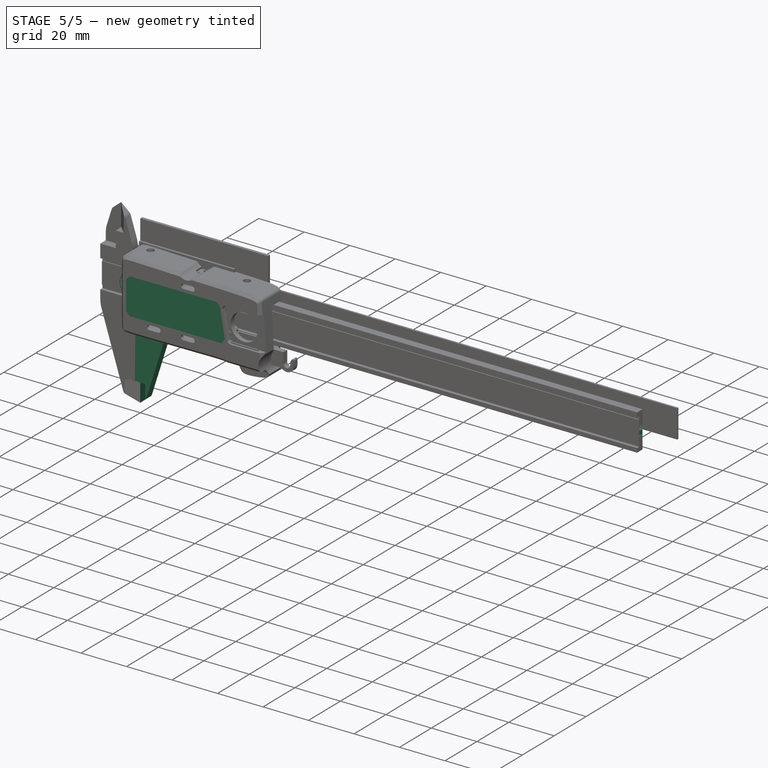
[diagram: stage 5 of 5 — iso view after this stage's code; geometry added in this stage tinted green]
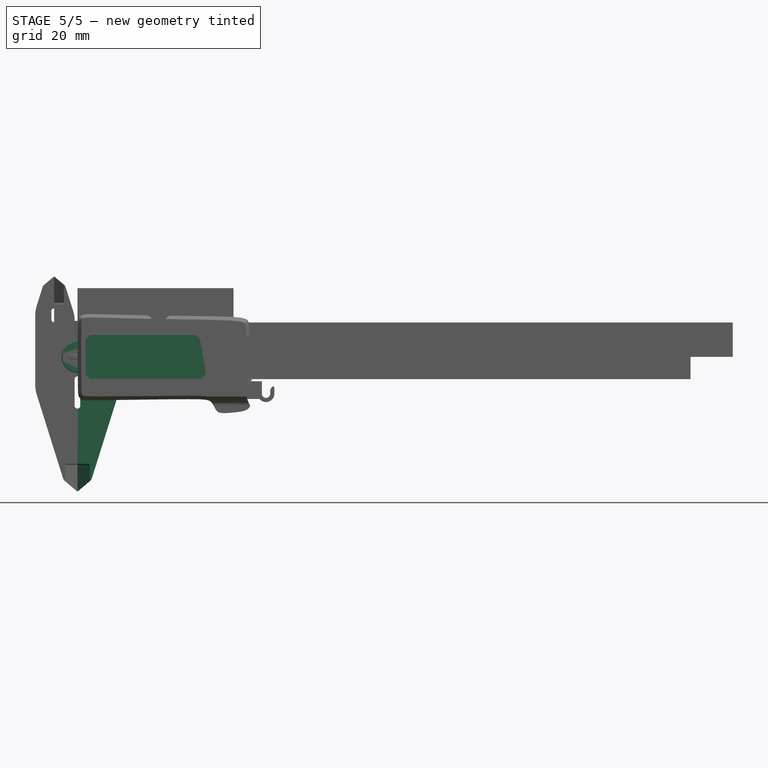
[diagram: stage 5 of 5 — front view after this stage's code; geometry added in this stage tinted green]
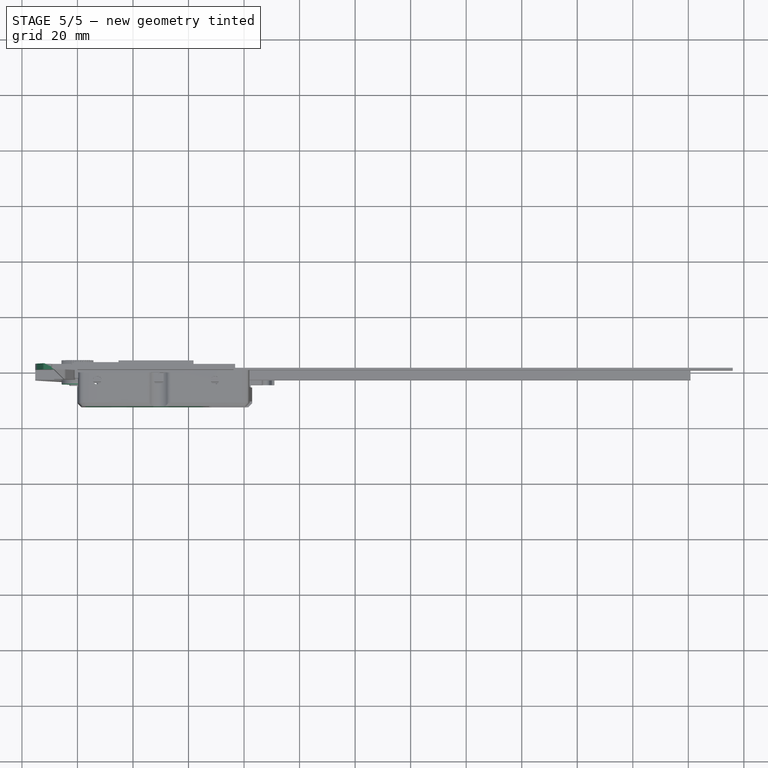
[diagram: stage 5 of 5 — top view after this stage's code; geometry added in this stage tinted green]
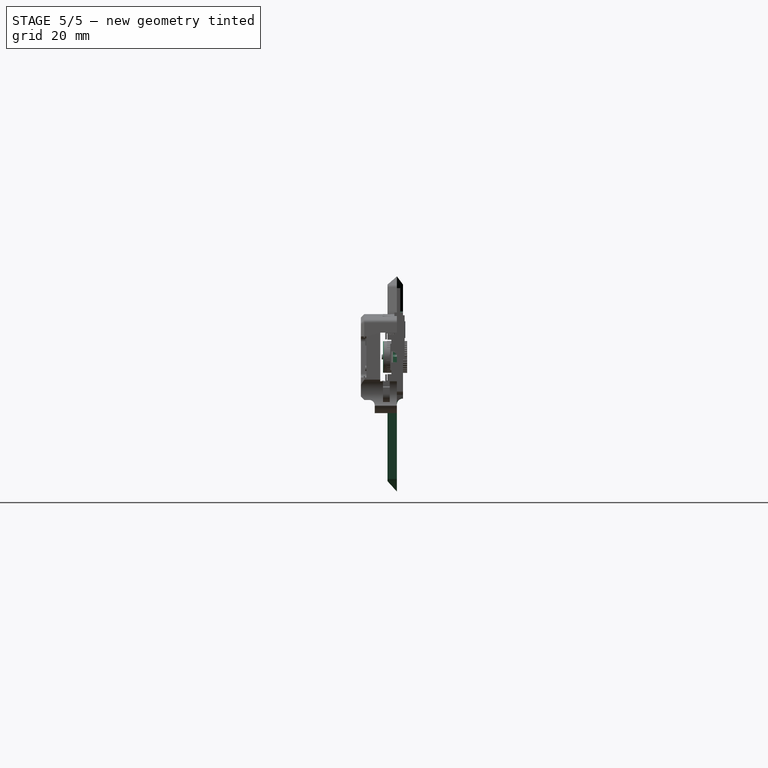
[diagram: stage 5 of 5 — right view after this stage's code; geometry added in this stage tinted green]
FEATURE [Sketcher::SketchObject] Sketch005
  ExternalGeometry = -> [Pocket002]
  FullyConstrained = true
  MapMode = 5
  Placement = pos=(0,0,0) rot=(0.57735,0.57735,0.57735;2.0944rad)
  Support = -> [YZ_Plane002]
  expr: Constraints[8] = Spreadsheet.main2_t_top
  sketch-geometry (8):
    g0: LineSegment StartX=2.44e-14 StartY=-48.5 StartZ=0 EndX=2.2 EndY=-48.5 EndZ=0
    g1: LineSegment StartX=2.2 StartY=-48.5 StartZ=0 EndX=2.2 EndY=-15 EndZ=0
    g2: LineSegment StartX=2.2 StartY=-15 StartZ=0 EndX=2.44e-14 EndY=-15 EndZ=0
    g3: LineSegment StartX=2.44e-14 StartY=-15 StartZ=0 EndX=2.44e-14 EndY=-48.5 EndZ=0
    g4: LineSegment StartX=-4.2 StartY=-48.5 StartZ=0 EndX=-3.4 EndY=-48.5 EndZ=0
    g5: LineSegment StartX=-3.4 StartY=-48.5 StartZ=0 EndX=-3.4 EndY=-15 EndZ=0
    g6: LineSegment StartX=-3.4 StartY=-15 StartZ=0 EndX=-4.2 EndY=-15 EndZ=0
    g7: LineSegment StartX=-4.2 StartY=-15 StartZ=0 EndX=-4.2 EndY=-48.5 EndZ=0
  constraints (22):
    c: Coincident(g0,g1)
    c: Coincident(g1,g2)
    c: Coincident(g2,g3)
    c: Coincident(g3,g0)
    c: Horizontal(g0)
    c: Horizontal(g2)
    c: Vertical(g1)
    c: Vertical(g3)
    c: DistanceX(g2,g2) = 2.2
    c: DistanceY(g2,g-6) = 27.5
    c: Coincident(g0,g-7)
    c: Coincident(g4,g5)
    c: Coincident(g5,g6)
    c: Coincident(g6,g7)
    c: Coincident(g7,g4)
    c: Horizontal(g4)
    c: Horizontal(g6)
    c: Vertical(g5)
    c: Vertical(g7)
    c: Coincident(g4,g-7)
    c: Horizontal(g2,g5)
    c: DistanceX(g6,g6) = 0.8
FEATURE [PartDesign::Pocket] Pocket003
  BaseFeature = -> Pocket002
  Direction = (-1,2e-16,-3e-16)
  Length = 5
  Length2 = 5
  Placement = pos=(0,0,0) rot=(1,0,0;1.5708rad)
  Profile = -> Sketch005
  ReferenceAxis = -> Sketch005 [N_Axis]
  Reversed = true
  Type = 2
FEATURE [PartDesign::Fillet] Fillet001
  Base = -> Pocket003 [Edge49]
  BaseFeature = -> Pocket003
  Placement = pos=(0,0,0) rot=(1,0,0;1.5708rad)
  Radius = 2.178
  SupportTransform = false
  UseAllEdges = false
  expr: Radius = 0.99 * Spreadsheet.main2_t_top
FEATURE [PartDesign::Fillet] Fillet002
  Base = -> Fillet001 [Edge28]
  BaseFeature = -> Fillet001
  Placement = pos=(0,0,0) rot=(1,0,0;1.5708rad)
  Radius = 0.79
  SupportTransform = false
  UseAllEdges = false
FEATURE [Sketcher::SketchObject] Sketch006
  ExternalGeometry = -> [Fillet002]
  FullyConstrained = true
  MapMode = 5
  Placement = pos=(0,-4.2,-9e-16) rot=(1,0,0;1.5708rad)
  Support = -> [DatumPlane]
  sketch-geometry (6):
    g0: LineSegment StartX=1 StartY=6.3 StartZ=0 EndX=1 EndY=6.5 EndZ=0
    g1: LineSegment StartX=1 StartY=6.5 StartZ=0 EndX=56.8 EndY=6.3 EndZ=0
    g2: LineSegment StartX=56.8 StartY=6.3 StartZ=0 EndX=1 EndY=6.3 EndZ=0
    g3: LineSegment StartX=1 StartY=-6.3 StartZ=0 EndX=1 EndY=-6.5 EndZ=0
    g4: LineSegment StartX=1 StartY=-6.5 StartZ=0 EndX=56.8 EndY=-6.3 EndZ=0
    g5: LineSegment StartX=56.8 StartY=-6.3 StartZ=0 EndX=1 EndY=-6.3 EndZ=0
  constraints (14):
    c: Coincident(g-3,g0)
    c: Coincident(g0,g1)
    c: Coincident(g1,g-3)
    c: Coincident(g1,g2)
    c: Coincident(g2,g0)
    c: Coincident(g-4,g3)
    c: Coincident(g3,g4)
    c: Coincident(g4,g-4)
    c: Coincident(g4,g5)
    c: Coincident(g5,g3)
    c: Vertical(g3)
    c: Vertical(g0)
    c: Equal(g0,g3)
    c: DistanceY(g3,g0) = 13
FEATURE [PartDesign::Pocket] Pocket004
  BaseFeature = -> Fillet002
  Direction = (0,1,2e-16)
  Length = 0.1
  Length2 = 5
  Placement = pos=(0,0,0) rot=(1,0,0;1.5708rad)
  Profile = -> Sketch006
  ReferenceAxis = -> Sketch006 [N_Axis]
  Type = 2
FEATURE [PartDesign::Plane] DatumPlane001  label="DatumPlane BottomFace"
  AttachmentOffset = pos=(0,0,-2.2) rot=(0,0,1;0rad)
  Length = 273.404
  MapMode = 5
  Placement = pos=(0,2.2,5e-16) rot=(1,0,0;1.5708rad)
  ResizeMode = 0
  Support = -> [XZ_Plane002]
  Width = 105.104
  expr: .AttachmentOffset.Base.z = -Spreadsheet.main2_t_top
FEATURE [Sketcher::SketchObject] Sketch010
  ExternalGeometry = -> [Pocket004]
  FullyConstrained = true
  MapMode = 5
  Placement = pos=(0,2.2,5e-16) rot=(1,0,0;1.5708rad)
  Support = -> [DatumPlane001]
  sketch-geometry (4):
    g0: Circle CenterX=7.9 CenterY=-10.6 CenterZ=0 NormalX=0 NormalY=0 NormalZ=1 AngleXU=0 Radius=1.1
    g1: Circle CenterX=37.6 CenterY=-10.6 CenterZ=0 NormalX=0 NormalY=0 NormalZ=1 AngleXU=0 Radius=1.1
    g2: Circle CenterX=41.9 CenterY=10.7 CenterZ=0 NormalX=0 NormalY=0 NormalZ=1 AngleXU=0 Radius=1.1
    g3: Circle CenterX=5.3 CenterY=10.7 CenterZ=0 NormalX=0 NormalY=0 NormalZ=1 AngleXU=0 Radius=1.1
  constraints (12):
    c: Equal(g3,g0)
    c: Equal(g0,g1)
    c: Equal(g1,g2)
    c: Diameter(g3) = 2.2
    c: Horizontal(g3,g2)
    c: Horizontal(g1,g0)
    c: DistanceX(g3,g2) = 36.6
    c: DistanceX(g0,g1) = 29.7
    c: DistanceY(g3,g-4) = 1.8
    c: DistanceY(g-6,g1) = 1.9
    c: DistanceX(g-4,g3) = 4.3
    c: DistanceX(g-5,g0) = 6.9
FEATURE [PartDesign::Pocket] Pocket008
  BaseFeature = -> Pocket004
  Direction = (0,1,2e-16)
  Length = 6.4
  Length2 = 5
  Placement = pos=(0,0,0) rot=(1,0,0;1.5708rad)
  Profile = -> Sketch010
  ReferenceAxis = -> Sketch010 [N_Axis]
  Reversed = true
  Type = 0
  expr: Length = Spreadsheet.main2_t
FEATURE [Sketcher::SketchObject] Sketch011
  ExternalGeometry = -> [Pocket008]
  FullyConstrained = true
  MapMode = 5
  Placement = pos=(0,2.2,5e-16) rot=(1,0,0;1.5708rad)
  Support = -> [DatumPlane001]
  sketch-geometry (4):
    g0: Circle CenterX=5.3 CenterY=10.7 CenterZ=0 NormalX=0 NormalY=0 NormalZ=1 AngleXU=0 Radius=1.4
    g1: Circle CenterX=41.9 CenterY=10.7 CenterZ=0 NormalX=0 NormalY=0 NormalZ=1 AngleXU=0 Radius=1.4
    g2: Circle CenterX=37.6 CenterY=-10.6 CenterZ=0 NormalX=0 NormalY=0 NormalZ=1 AngleXU=0 Radius=1.4
    g3: Circle CenterX=7.9 CenterY=-10.6 CenterZ=0 NormalX=0 NormalY=0 NormalZ=1 AngleXU=0 Radius=1.4
  constraints (8):
    c: Coincident(g0,g-4)
    c: Coincident(g1,g-5)
    c: Coincident(g2,g-6)
    c: Coincident(g3,g-3)
    c: Equal(g3,g0)
    c: Equal(g0,g2)
    c: Equal(g2,g1)
    c: Diameter(g1) = 2.8
FEATURE [PartDesign::Pocket] Pocket009
  BaseFeature = -> Pocket008
  Direction = (0,1,2e-16)
  Length = 2.7
  Length2 = 5
  Placement = pos=(0,0,0) rot=(1,0,0;1.5708rad)
  Profile = -> Sketch011
  ReferenceAxis = -> Sketch011 [N_Axis]
  Reversed = true
  Type = 0
FEATURE [Sketcher::SketchObject] Sketch012
  AttachmentOffset = pos=(0,0,12.5) rot=(0,0,1;0rad)
  ExternalGeometry = -> [Pocket009]
  FullyConstrained = true
  MapMode = 5
  Placement = pos=(0,0,12.5) rot=(0,0,1;0rad)
  Support = -> [XY_Plane002]
  expr: .AttachmentOffset.Base.z = Spreadsheet.main2_w / 2
  sketch-geometry (3):
    g0: Circle CenterX=8.1 CenterY=-1.7 CenterZ=0 NormalX=0 NormalY=0 NormalZ=1 AngleXU=0 Radius=1.1
    g1: Circle CenterX=30.3 CenterY=-1.7 CenterZ=0 NormalX=0 NormalY=0 NormalZ=1 AngleXU=0 Radius=1.1
    g2: Circle CenterX=50.5 CenterY=-1.7 CenterZ=0 NormalX=0 NormalY=0 NormalZ=1 AngleXU=0 Radius=1.1
  constraints (10):
    c: Equal(g0,g1)
    c: Equal(g1,g2)
    c: Horizontal(g2,g1)
    c: Horizontal(g1,g0)
    c: Diameter(g2) = 2.2
    c: DistanceX(g0,g1) = 22.2
    c: DistanceX(g1,g2) = 20.2
    c: DistanceX(g-3,g0) = 7.1
    c: DistanceY(g-3,g0) = 2.5
    c: DistanceY(g0) = -1.7
FEATURE [PartDesign::Hole] Hole
  BaseFeature = -> Pocket009
  CustomThreadClearance = 0
  Depth = 5
  DepthType = 0
  Diameter = 2.05
  DrillForDepth = false
  DrillPoint = 1
  DrillPointAngle = 118
  HoleCutCountersinkAngle = 90
  HoleCutCustomValues = false
  HoleCutDepth = 0
  HoleCutDiameter = 6.1
  HoleCutType = 0
  ModelThread = false
  Placement = pos=(0,0,0) rot=(1,0,0;1.5708rad)
  Profile = -> Sketch012
  Tapered = false
  TaperedAngle = 90
  ThreadClass = 0
  ThreadDepth = 5
  ThreadDepthType = 0
  ThreadDirection = 0
  ThreadFit = 0
  ThreadSize = 8
  ThreadType = 1
  Threaded = true
  UseCustomThreadClearance = false
FEATURE [Sketcher::SketchObject] Sketch015
  ExternalGeometry = -> [Hole]
  FullyConstrained = true
  MapMode = 5
  Placement = pos=(0,-4.2,-9e-16) rot=(1,0,0;1.5708rad)
  Support = -> [DatumPlane]
  expr: Constraints[15] = -Spreadsheet.alpha
  sketch-geometry (8):
    g0: LineSegment StartX=9.8e-15 StartY=-48.5 StartZ=0 EndX=15 EndY=-48.5 EndZ=0
    g1: LineSegment StartX=15 StartY=-48.5 StartZ=0 EndX=15 EndY=-12.5 EndZ=0
    g2: LineSegment StartX=15 StartY=-12.5 StartZ=0 EndX=5 EndY=-44.3045 EndZ=0
    g3: LineSegment StartX=5 StartY=-44.3045 StartZ=0 EndX=9.8e-15 EndY=-48.5 EndZ=0
    g4: LineSegment StartX=-8.4 StartY=29 StartZ=0 EndX=-15.2 EndY=29 EndZ=0
    g5: LineSegment StartX=-15.2 StartY=29 StartZ=0 EndX=-15.2 EndY=16.7383 EndZ=0
    g6: LineSegment StartX=-15.2 StartY=16.7383 StartZ=0 EndX=-12.4 EndY=25.6436 EndZ=0
    g7: LineSegment StartX=-12.4 StartY=25.6436 StartZ=0 EndX=-8.4 EndY=29 EndZ=0
  constraints (19):
    c: Coincident(g-3,g0)
    c: Coincident(g0,g-4)
    c: Coincident(g0,g1)
    c: Coincident(g1,g-5)
    c: Coincident(g1,g2)
    c: Coincident(g2,g3)
    c: Coincident(g3,g0)
    c: DistanceX(g0,g2) = 5
    c: Coincident(g4,g5)
    c: Vertical(g5)
    c: Coincident(g5,g6)
    c: Coincident(g6,g7)
    c: Coincident(g7,g4)
    c: Parallel(g2,g6)
    c: Parallel(g7,g3)
    c: Angle(g3) = -2.44346
    c: Coincident(g4,g-6)
    c: Coincident(g-6,g4)
    c: DistanceX(g6,g4) = 4
FEATURE [PartDesign::Pocket] Pocket011
  BaseFeature = -> Hole
  Direction = (0,1,2e-16)
  Length = 5
  Length2 = 5
  Placement = pos=(0,0,0) rot=(1,0,0;1.5708rad)
  Profile = -> Sketch015
  ReferenceAxis = -> Sketch015 [N_Axis]
  Type = 1
FEATURE [Sketcher::SketchObject] Sketch016
  AttachmentOffset = pos=(0,0,-38.5) rot=(0,0,1;0rad)
  ExternalGeometry = -> [Pocket011]
  FullyConstrained = true
  MapMode = 5
  Placement = pos=(0,0,-38.5) rot=(0,0,1;0rad)
  Support = -> [XY_Plane002]
  expr: .AttachmentOffset.Base.z = <<Sketch_body2>>.Constraints.b2_w_bottom + 10 mm
  sketch-geometry (3):
    g0: LineSegment StartX=1.42e-14 StartY=-3.4 StartZ=0 EndX=0 EndY=0 EndZ=0
    g1: LineSegment StartX=0 StartY=0 StartZ=0 EndX=4.5 EndY=-3.4 EndZ=0
    g2: LineSegment StartX=4.5 StartY=-3.4 StartZ=0 EndX=1.42e-14 EndY=-3.4 EndZ=0
  constraints (7):
    c: Coincident(g-3,g0)
    c: Coincident(g0,g1)
    c: PointOnObject(g1,g-3)
    c: Coincident(g1,g2)
    c: Coincident(g2,g0)
    c: DistanceX(g2,g2) = 4.5
    c: Coincident(g0,g-1)
FEATURE [PartDesign::Pocket] Pocket012
  BaseFeature = -> Pocket011
  Direction = (0,0,-1)
  Length = 5
  Length2 = 5
  Placement = pos=(0,0,0) rot=(1,0,0;1.5708rad)
  Profile = -> Sketch016
  ReferenceAxis = -> Sketch016 [N_Axis]
  Type = 2
FEATURE [Sketcher::SketchObject] Sketch017
  AttachmentOffset = pos=(0,0,16) rot=(0,0,1;0rad)
  ExternalGeometry = -> [Pocket012]
  FullyConstrained = true
  MapMode = 5
  Placement = pos=(0,0,16) rot=(0,0,1;0rad)
  Support = -> [XY_Plane002]
  expr: .AttachmentOffset.Base.z = <<Sketch_body2>>.Constraints.b2_w_top - 13 mm
  sketch-geometry (3):
    g0: LineSegment StartX=-8.4 StartY=2.2 StartZ=0 EndX=-11.9 EndY=2.2 EndZ=0
    g1: LineSegment StartX=-11.9 StartY=2.2 StartZ=0 EndX=-8.4 EndY=0 EndZ=0
    g2: LineSegment StartX=-8.4 StartY=0 StartZ=0 EndX=-8.4 EndY=2.2 EndZ=0
  constraints (7):
    c: Coincident(g0,g1)
    c: DistanceX(g0,g0) = 3.5
    c: Horizontal(g0)
    c: Coincident(g0,g-3)
    c: Coincident(g-3,g1)
    c: Coincident(g2,g1)
    c: Coincident(g2,g0)
FEATURE [PartDesign::Pocket] Pocket013
  BaseFeature = -> Pocket012
  Direction = (0,0,-1)
  Length = 5
  Length2 = 5
  Placement = pos=(0,0,0) rot=(1,0,0;1.5708rad)
  Profile = -> Sketch017
  ReferenceAxis = -> Sketch017 [N_Axis]
  Reversed = true
  Type = 2
FEATURE [PartDesign::Fillet] Fillet007
  Base = -> Pocket013 [Edge80,Edge90]
  BaseFeature = -> Pocket013
  Placement = pos=(0,0,0) rot=(1,0,0;1.5708rad)
  Radius = 0.5
  SupportTransform = false
  UseAllEdges = false
FEATURE [PartDesign::Fillet] Fillet008
  Base = -> Fillet007 [Edge113,Edge17,Edge19]
  BaseFeature = -> Fillet007
  Placement = pos=(0,0,0) rot=(1,0,0;1.5708rad)
  Radius = 2
  SupportTransform = false
  UseAllEdges = false
FEATURE [PartDesign::Fillet] Fillet009
  Base = -> Fillet008 [Edge117]
  BaseFeature = -> Fillet008
  Placement = pos=(0,0,0) rot=(1,0,0;1.5708rad)
  Radius = 12
  SupportTransform = false
  UseAllEdges = false
FEATURE [PartDesign::ShapeBinder] ShapeBinder
  Placement = pos=(0,-13,-3e-15) rot=(1,0,0;1.5708rad)
  Support = -> [Sketch024]
  TraceSupport = false
FEATURE [PartDesign::Pad] Pad006
  Direction = (0,1,2e-16)
  Length = 1
  Length2 = 10
  Placement = pos=(0,-13,-3e-15) rot=(1,0,0;1.5708rad)
  Profile = -> ShapeBinder
  Type = 0
FEATURE [PartDesign::Body] Body007  label="Crystal"
  Group = -> [ShapeBinder,Pad006]
  Origin = -> Origin008
  Placement = pos=(1,2.01,0) rot=(0,0,1;0rad)
  Tip = -> Pad006
FEATURE [PartDesign::AdditiveCylinder] Cylinder
  Angle = 360
  AttacherType = Attacher::AttachEngine3D
  FirstAngle = 0
  Height = 5
  MapMode = 5
  Placement = pos=(0,0,0) rot=(1,0,0;1.5708rad)
  Radius = 5.7
  SecondAngle = 0
  Support = -> [XZ_Plane009]
FEATURE [PartDesign::Body] Body009  label="Button"
  Group = -> [Sketch032,Pad007,Sketch033,Pad008,Fillet011,Fillet012]
  Origin = -> Origin010
  Placement = pos=(31,-6.8,10.2) rot=(0,0,1;0rad)
  Tip = -> Fillet012
FEATURE [App::LinkElement] Link_i0
  LinkPlacement = pos=(-1.90735e-06,8.58307e-07,-20.4) rot=(0,0,1;0rad)
  LinkTransform = true
  LinkedObject = -> Body009
  Placement = pos=(-1.90735e-06,8.58307e-07,-20.4) rot=(0,0,1;0rad)
  _LinkOwner = 398
FEATURE [App::LinkElement] Link_i1
  LinkPlacement = pos=(-15,2.28882e-06,-20.4) rot=(0,0,1;0rad)
  LinkTransform = true
  LinkedObject = -> Body009
  Placement = pos=(-15,2.28882e-06,-20.4) rot=(0,0,1;0rad)
  _LinkOwner = 398
FEATURE [App::Link] Link  label="Buttons down"
  ElementCount = 2
  ElementList = -> [Link_i0,Link_i1]
  LinkTransform = true
  LinkedObject = -> Body009
FEATURE [PartDesign::Fillet] Fillet013
  Base = -> Cylinder [Edge3,Edge2]
  BaseFeature = -> Cylinder
  Placement = pos=(0,0,0) rot=(1,0,0;1.5708rad)
  Radius = 0.25
  SupportTransform = false
  UseAllEdges = false
FEATURE [PartDesign::Body] Body008  label="LR44 batt"
  Group = -> [Cylinder,Fillet013]
  Origin = -> Origin009
  Placement = pos=(54.4,-5.5,0) rot=(0,0,1;0rad)
  Tip = -> Fillet013
FEATURE [Sketcher::SketchObject] Sketch034
  ExternalGeometry = -> [Fillet009]
  FullyConstrained = true
  MapMode = 5
  Placement = pos=(0,0,0) rot=(1,0,0;1.5708rad)
  Support = -> [XZ_Plane002]
  sketch-geometry (5):
    g0: LineSegment StartX=36.8 StartY=-4 StartZ=0 EndX=36.8 EndY=4 EndZ=0
    g1: LineSegment StartX=36.8 StartY=4 StartZ=0 EndX=37.8 EndY=4 EndZ=0
    g2: LineSegment StartX=37.8 StartY=4 StartZ=0 EndX=37.8 EndY=-4 EndZ=0
    g3: LineSegment StartX=37.8 StartY=-4 StartZ=0 EndX=36.8 EndY=-4 EndZ=0
    g4: GeomPoint X=37.3 Y=0 Z=0
  constraints (13):
    c: Coincident(g0,g1)
    c: Coincident(g1,g2)
    c: Coincident(g2,g3)
    c: Coincident(g3,g0)
    c: Horizontal(g1)
    c: Horizontal(g3)
    c: Vertical(g0)
    c: Vertical(g2)
    c: Symmetric(g1,g0,g4)
    c: PointOnObject(g4,g-1)
    c: DistanceX(g1,g1) = 1
    c: DistanceY(g2,g2) = 8
    c: DistanceX(g1,g-3) = 19
FEATURE [PartDesign::Pocket] Pocket024
  BaseFeature = -> Fillet009
  Direction = (0,1,2e-16)
  Length = 1
  Length2 = 5
  Placement = pos=(0,0,0) rot=(1,0,0;1.5708rad)
  Profile = -> Sketch034
  ReferenceAxis = -> Sketch034 [N_Axis]
  Type = 0
FEATURE [Sketcher::SketchObject] Sketch035
  ExternalGeometry = -> [Pocket024]
  FullyConstrained = true
  MapMode = 5
  Support = -> [XY_Plane002]
  sketch-geometry (8):
    g0: LineSegment StartX=37.3 StartY=1 StartZ=0 EndX=37.3 EndY=0 EndZ=0
    g1: LineSegment StartX=38.005 StartY=-0.705 StartZ=0 EndX=220.8 EndY=-0.705 EndZ=0
    g2: ArcOfCircle CenterX=38.005 CenterY=0 CenterZ=0 NormalX=0 NormalY=0 NormalZ=1 AngleXU=0 Radius=0.705 StartAngle=3.14159 EndAngle=4.71239
    g3: LineSegment StartX=38.71 StartY=-1.41 StartZ=0 EndX=38.71 EndY=0 EndZ=0
    g4: LineSegment StartX=38.71 StartY=0 StartZ=0 EndX=37.3 EndY=0 EndZ=0
    g5: LineSegment StartX=37.3 StartY=0 StartZ=0 EndX=37.3 EndY=-1.41 EndZ=0
    g6: LineSegment StartX=37.3 StartY=-1.41 StartZ=0 EndX=38.71 EndY=-1.41 EndZ=0
    g7: GeomPoint X=38.005 Y=-0.705 Z=0
  constraints (19):
    c: Horizontal(g1)
    c: Symmetric(g-3,g-3,g0)
    c: PointOnObject(g0,g-3)
    c: Tangent(g0,g2) = -1.5708
    c: Tangent(g1,g2) = -1.5708
    c: DistanceX(g0,g1) = 183.5
    c: Coincident(g3,g4)
    c: Coincident(g4,g5)
    c: Coincident(g5,g6)
    c: Coincident(g6,g3)
    c: Horizontal(g4)
    c: Horizontal(g6)
    c: Vertical(g3)
    c: Vertical(g5)
    c: Symmetric(g4,g3,g7)
    c: Coincident(g7,g1)
    c: PointOnObject(g4,g-1)
    c: DistanceY(g5,g5) = 1.41
    c: Coincident(g0,g4)
FEATURE [Sketcher::SketchObject] Sketch036
  ExternalGeometry = -> [Sketch035]
  FullyConstrained = true
  MapMode = 5
  Placement = pos=(0,0,0) rot=(1,0,0;1.5708rad)
  Support = -> [XZ_Plane002]
  sketch-geometry (5):
    g0: LineSegment StartX=36.6 StartY=-1.9 StartZ=0 EndX=36.6 EndY=1.9 EndZ=0
    g1: LineSegment StartX=36.6 StartY=1.9 StartZ=0 EndX=38 EndY=1.9 EndZ=0
    g2: LineSegment StartX=38 StartY=1.9 StartZ=0 EndX=38 EndY=-1.9 EndZ=0
    g3: LineSegment StartX=38 StartY=-1.9 StartZ=0 EndX=36.6 EndY=-1.9 EndZ=0
    g4: GeomPoint X=37.3 Y=0 Z=0
  constraints (12):
    c: Coincident(g0,g1)
    c: Coincident(g1,g2)
    c: Coincident(g2,g3)
    c: Coincident(g3,g0)
    c: Horizontal(g1)
    c: Horizontal(g3)
    c: Vertical(g0)
    c: Vertical(g2)
    c: Symmetric(g1,g0,g4)
    c: Coincident(g4,g-3)
    c: DistanceY(g0,g0) = 3.8
    c: DistanceX(g1,g1) = 1.4
FEATURE [PartDesign::AdditivePipe] AdditivePipe
  AuxilleryCurvelinear = true
  AuxillerySpineTangent = false
  BaseFeature = -> Pocket024
  Binormal = (0,0,0)
  Mode = 0
  Placement = pos=(0,0,0) rot=(1,0,0;1.5708rad)
  Profile = -> Sketch036
  Spine = -> Sketch035
  SpineTangent = false
  Transformation = 0
  Transition = 0
FEATURE [Sketcher::SketchObject] Sketch037
  ExternalGeometry = -> [AdditivePipe]
  FullyConstrained = true
  MapMode = 5
  Placement = pos=(0,0,0) rot=(1,0,0;1.5708rad)
  Support = -> [XZ_Plane002]
  sketch-geometry (5):
    g0: LineSegment StartX=220.8 StartY=1.9 StartZ=0 EndX=213.8 EndY=1.9 EndZ=0
    g1: LineSegment StartX=213.8 StartY=1.9 StartZ=0 EndX=213.8 EndY=1 EndZ=0
    g2: LineSegment StartX=214.7 StartY=0.1 StartZ=0 EndX=220.8 EndY=0.1 EndZ=0
    g3: LineSegment StartX=220.8 StartY=0.1 StartZ=0 EndX=220.8 EndY=1.9 EndZ=0
    g4: ArcOfCircle CenterX=214.7 CenterY=1 CenterZ=0 NormalX=0 NormalY=0 NormalZ=1 AngleXU=0 Radius=0.9 StartAngle=3.14159 EndAngle=4.71239
  constraints (13):
    c: Coincident(g0,g1)
    c: Coincident(g2,g3)
    c: Coincident(g3,g0)
    c: Horizontal(g0)
    c: Horizontal(g2)
    c: Vertical(g1)
    c: Vertical(g3)
    c: Coincident(g0,g-3)
    c: DistanceY(g3,g3) = 1.8
    c: DistanceX(g0,g0) = 7
    c: Tangent(g1,g4) = -1.5708
    c: Tangent(g2,g4) = -1.5708
    c: Radius(g4) = 0.9
FEATURE [PartDesign::Pocket] Pocket025
  BaseFeature = -> AdditivePipe
  Direction = (0,1,2e-16)
  Length = 2
  Length2 = 5
  Placement = pos=(0,0,0) rot=(1,0,0;1.5708rad)
  Profile = -> Sketch037
  ReferenceAxis = -> Sketch037 [N_Axis]
  Reversed = true
  Type = 0
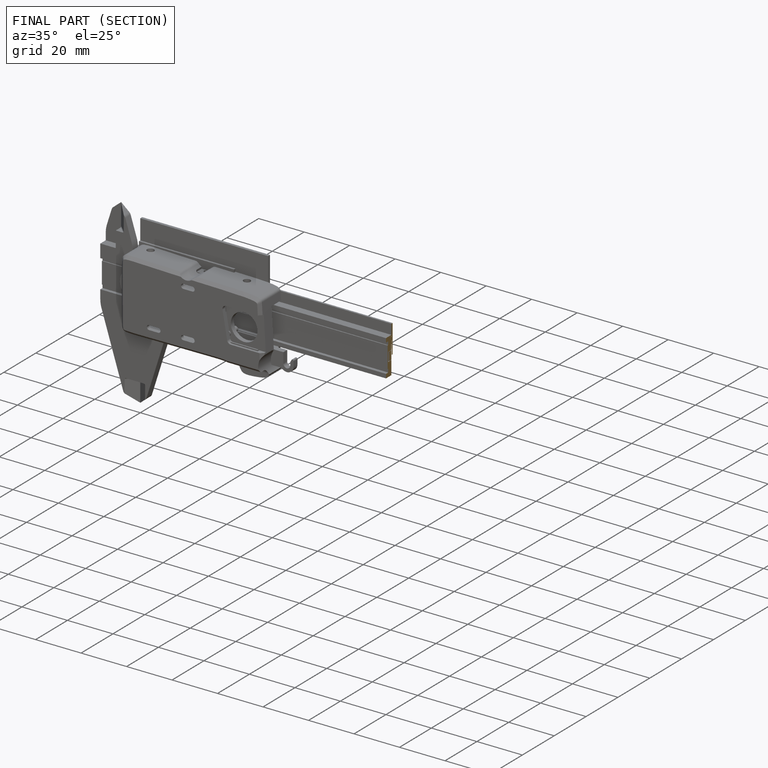
[diagram: finished part — half-section view (interior)]
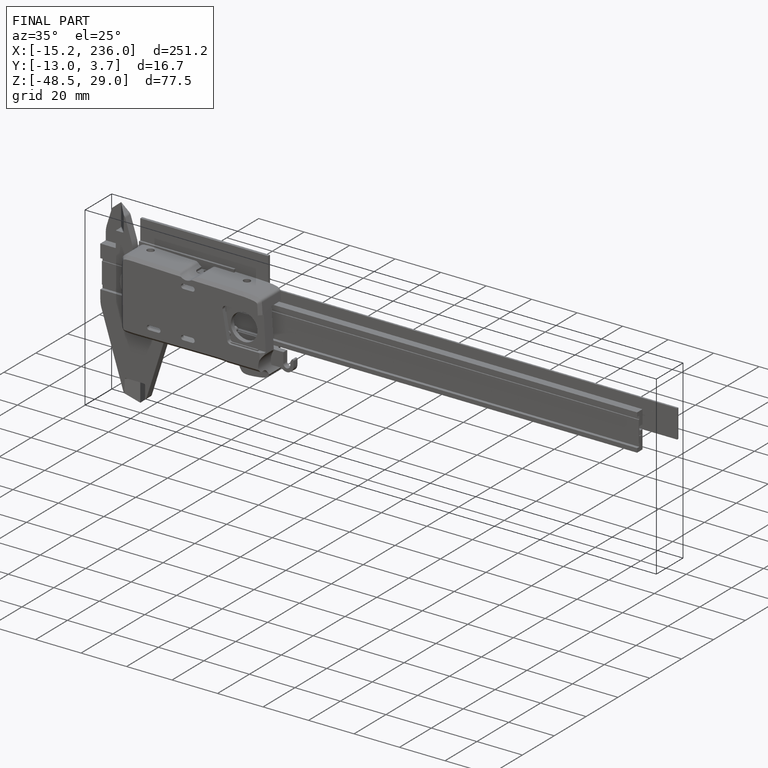
[diagram: finished part — iso view with bounding-box wireframe]
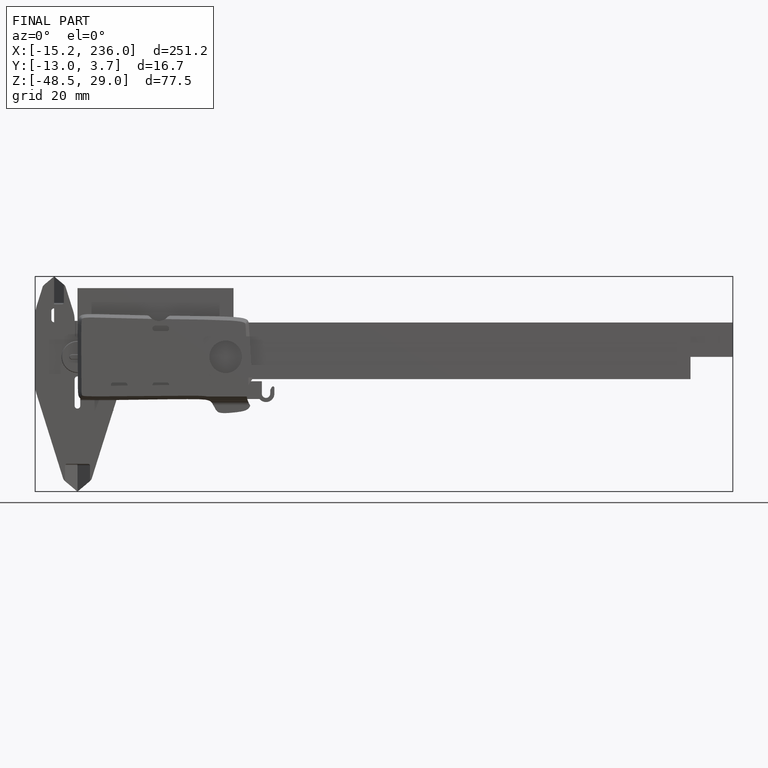
[diagram: finished part — front view with bounding-box wireframe]
